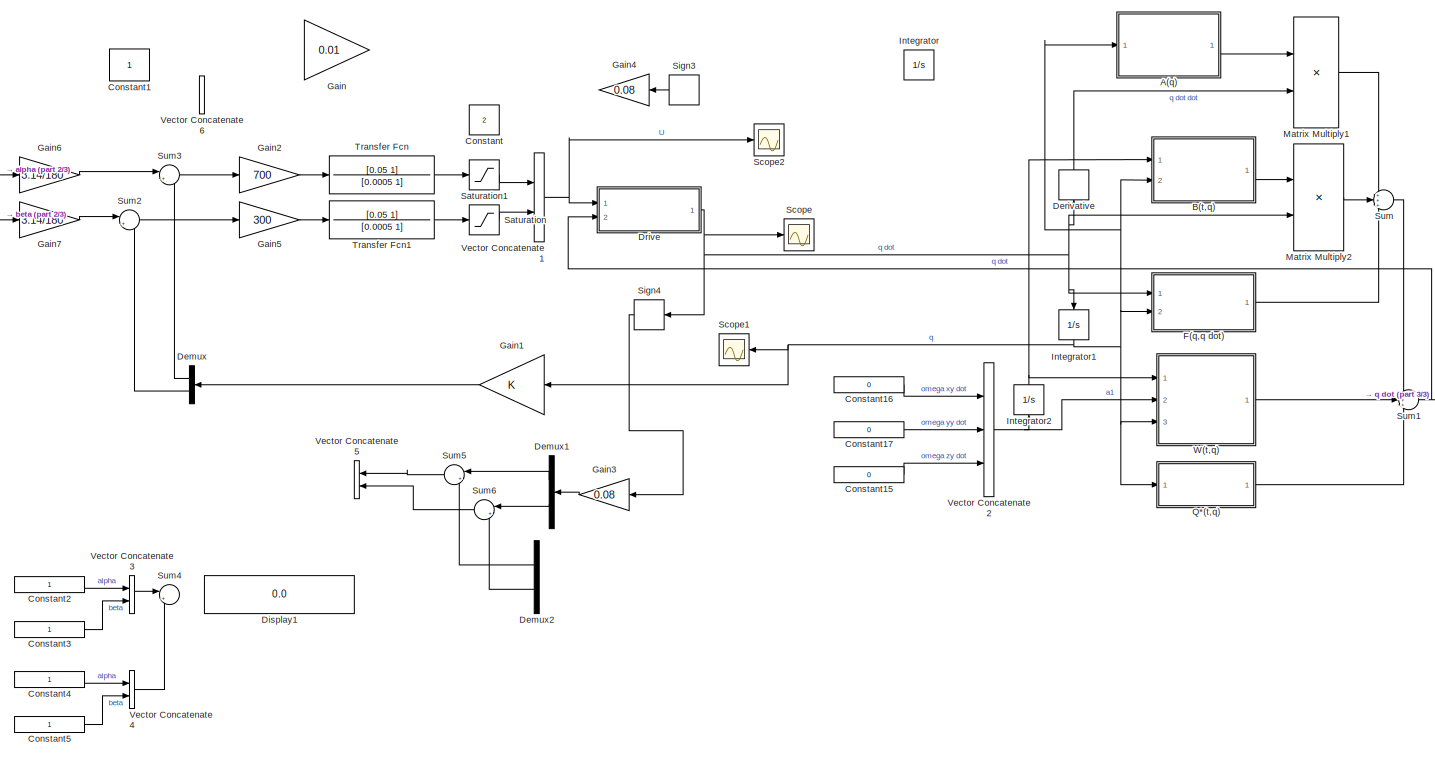
[diagram: root canvas - part 1/3, center side, full height]
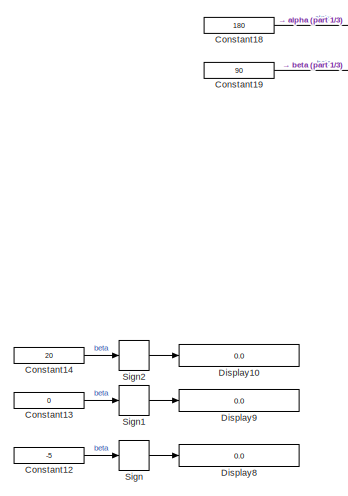
[diagram: root canvas - part 2/3, middle left region]
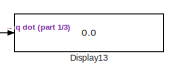
[diagram: root canvas - part 3/3, middle right region]
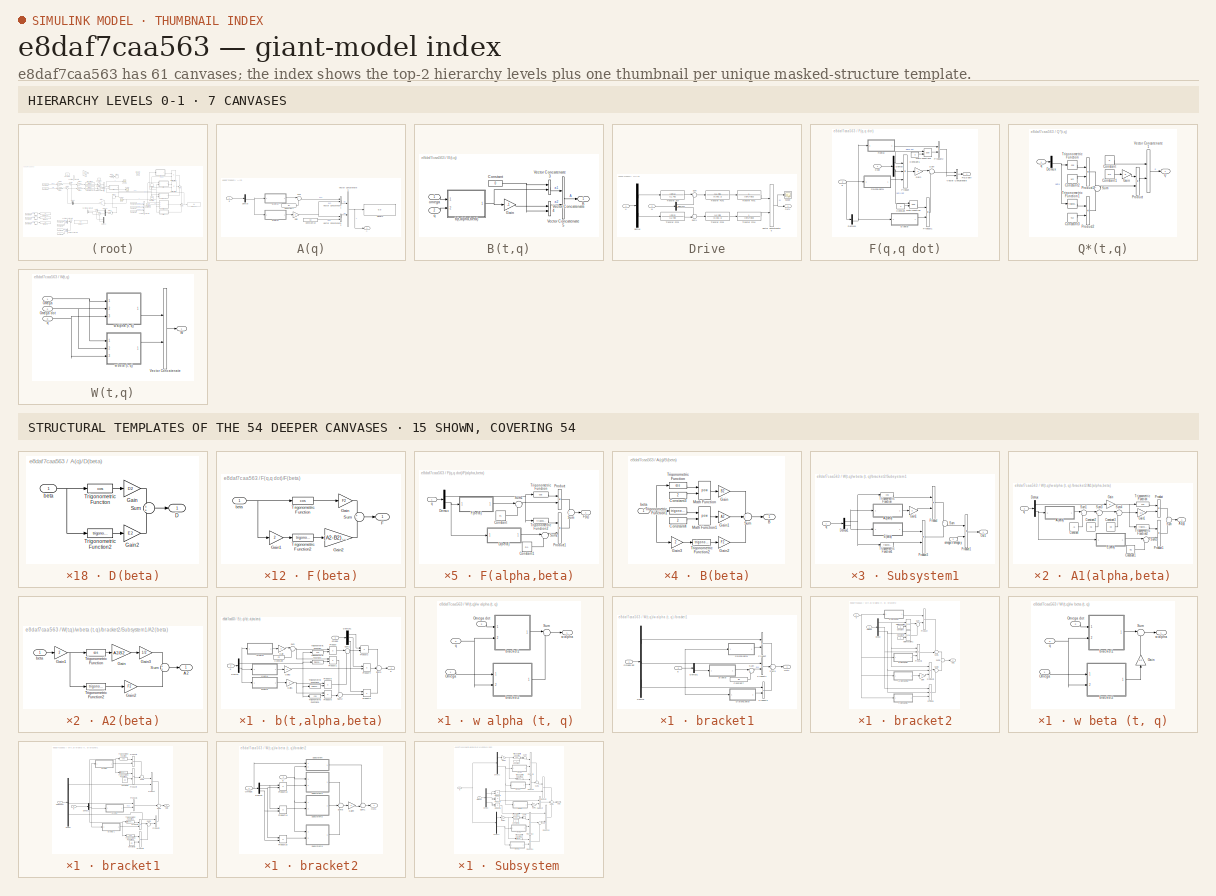
[diagram: thumbnail index - top-2 hierarchy levels (7 canvases) + 15 structural-template representatives of the remaining 54 canvases]
MODEL slx_e8daf7caa563
KIND model
CONFIG AbsTol = auto
CONFIG EnableMultiTasking = off
CONFIG FixedStep = auto
CONFIG MaxStep = auto
CONFIG MinStep = auto
CONFIG RelTol = 1e-3
CONFIG SampleTimeConstraint = Unconstrained
CONFIG Solver = VariableStepAuto
CONFIG SolverName = VariableStepAuto
CONFIG StartTime = 0.0
CONFIG StopTime = 1
WORKSPACE source: MAT-file member
WORKSPACE A1 = 0.212
BLOCK [SubSystem] A(q)
  Ports = [1, 1]
  RequestExecContextInheritance = off
BLOCK [Outport] A(q)/A
  IconDisplay = Port number
BLOCK [SubSystem] A(q)/B(beta)
  Ports = [1, 1]
  RequestExecContextInheritance = off
BLOCK [Outport] A(q)/B(beta)/B
  IconDisplay = Port number
BLOCK [Constant] A(q)/B(beta)/Constant3
  Value = 2
BLOCK [Constant] A(q)/B(beta)/Constant4
  Value = 2
BLOCK [Gain] A(q)/B(beta)/Gain
  Gain = B2
  OutDataTypeStr = Inherit: Inherit via internal rule
  ParamDataTypeStr = Inherit: Inherit via internal rule
  SaturateOnIntegerOverflow = off
BLOCK [Gain] A(q)/B(beta)/Gain1
  Gain = A2
  OutDataTypeStr = Inherit: Inherit via internal rule
  ParamDataTypeStr = Inherit: Inherit via internal rule
  SaturateOnIntegerOverflow = off
BLOCK [Gain] A(q)/B(beta)/Gain2
  Gain = F2
  OutDataTypeStr = Inherit: Inherit via internal rule
  ParamDataTypeStr = Inherit: Inherit via internal rule
  SaturateOnIntegerOverflow = off
BLOCK [Gain] A(q)/B(beta)/Gain3
  Gain = 2
  OutDataTypeStr = Inherit: Inherit via internal rule
  ParamDataTypeStr = Inherit: Inherit via internal rule
  SaturateOnIntegerOverflow = off
BLOCK [Math] A(q)/B(beta)/Math Function
  Operator = pow
  Ports = [2, 1]
BLOCK [Math] A(q)/B(beta)/Math Function1
  Operator = pow
  Ports = [2, 1]
BLOCK [Sum] A(q)/B(beta)/Sum
  IconShape = round
  InputSameDT = off
  Inputs = ++-
  OutDataTypeStr = Inherit: Inherit via internal rule
  Ports = [3, 1]
  SaturateOnIntegerOverflow = off
BLOCK [Trigonometry] A(q)/B(beta)/Trigonometric Function
  Operator = cos
  Ports = [1, 1]
BLOCK [Trigonometry] A(q)/B(beta)/Trigonometric Function1
  Ports = [1, 1]
BLOCK [Trigonometry] A(q)/B(beta)/Trigonometric Function2
  Ports = [1, 1]
BLOCK [Inport] A(q)/B(beta)/beta
  IconDisplay = Port number
BLOCK [Constant] A(q)/Constant10
  Value = C2
BLOCK [Constant] A(q)/Constant7
  Value = B1
BLOCK [SubSystem] A(q)/D(beta)
  Ports = [1, 1]
  RequestExecContextInheritance = off
BLOCK [Outport] A(q)/D(beta)/D
  IconDisplay = Port number
BLOCK [Gain] A(q)/D(beta)/Gain
  Gain = D2
  OutDataTypeStr = Inherit: Inherit via internal rule
  ParamDataTypeStr = Inherit: Inherit via internal rule
  SaturateOnIntegerOverflow = off
BLOCK [Gain] A(q)/D(beta)/Gain2
  Gain = E2
  OutDataTypeStr = Inherit: Inherit via internal rule
  ParamDataTypeStr = Inherit: Inherit via internal rule
  SaturateOnIntegerOverflow = off
BLOCK [Sum] A(q)/D(beta)/Sum
  IconShape = round
  InputSameDT = off
  OutDataTypeStr = Inherit: Inherit via internal rule
  Ports = [2, 1]
  SaturateOnIntegerOverflow = off
BLOCK [Trigonometry] A(q)/D(beta)/Trigonometric Function
  Operator = cos
  Ports = [1, 1]
BLOCK [Trigonometry] A(q)/D(beta)/Trigonometric Function2
  Ports = [1, 1]
BLOCK [Inport] A(q)/D(beta)/beta
  IconDisplay = Port number
BLOCK [Demux] A(q)/Demux
  DisplayOption = bar
  Outputs = 2
  Ports = [1, 2]
BLOCK [Display] A(q)/Display5
  Decimation = 1
  Ports = [1]
BLOCK [Gain] A(q)/Gain
  Gain = -1
  OutDataTypeStr = Inherit: Inherit via internal rule
  ParamDataTypeStr = Inherit: Inherit via internal rule
  SaturateOnIntegerOverflow = off
BLOCK [Sum] A(q)/Sum
  IconShape = round
  InputSameDT = off
  Inputs = |++
  OutDataTypeStr = Inherit: Inherit via internal rule
  Ports = [2, 1]
  SaturateOnIntegerOverflow = off
BLOCK [Concatenate] A(q)/Vector Concatenate1
  Ports = [2, 1]
BLOCK [Concatenate] A(q)/Vector Concatenate2
  Ports = [2, 1]
BLOCK [Concatenate] A(q)/Vector Concatenate6
  ConcatenateDimension = 2
  Mode = Multidimensional array
  Ports = [2, 1]
BLOCK [Inport] A(q)/q
  IconDisplay = Port number
BLOCK [SubSystem] B(t,q)
  Ports = [2, 1]
  RequestExecContextInheritance = off
BLOCK [Outport] B(t,q)/B
  IconDisplay = Port number
BLOCK [Constant] B(t,q)/Constant
  Value = 0
BLOCK [Gain] B(t,q)/Gain
  Gain = -1
  OutDataTypeStr = Inherit: Inherit via internal rule
  ParamDataTypeStr = Inherit: Inherit via internal rule
  SaturateOnIntegerOverflow = off
BLOCK [Concatenate] B(t,q)/Vector Concatenate3
  Ports = [2, 1]
BLOCK [Concatenate] B(t,q)/Vector Concatenate4
  Ports = [2, 1]
BLOCK [Concatenate] B(t,q)/Vector Concatenate5
  ConcatenateDimension = 2
  Mode = Multidimensional array
  Ports = [2, 1]
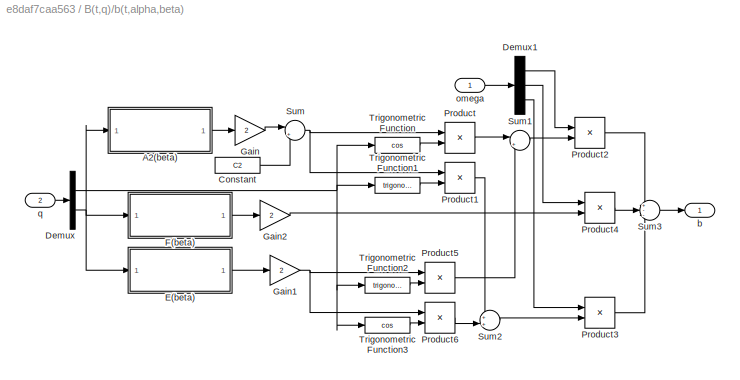
BLOCK [SubSystem] B(t,q)/b(t,alpha,beta)
  Ports = [2, 1]
  RequestExecContextInheritance = off
BLOCK [SubSystem] B(t,q)/b(t,alpha,beta)/A2(beta)
  Ports = [1, 1]
  RequestExecContextInheritance = off
BLOCK [Outport] B(t,q)/b(t,alpha,beta)/A2(beta)/A2
  IconDisplay = Port number
BLOCK [Gain] B(t,q)/b(t,alpha,beta)/A2(beta)/Gain
  Gain = (A2-B2)/2
  OutDataTypeStr = Inherit: Inherit via internal rule
  ParamDataTypeStr = Inherit: Inherit via internal rule
  SaturateOnIntegerOverflow = off
BLOCK [Gain] B(t,q)/b(t,alpha,beta)/A2(beta)/Gain1
  Gain = 2
  OutDataTypeStr = Inherit: Inherit via internal rule
  ParamDataTypeStr = Inherit: Inherit via internal rule
  SaturateOnIntegerOverflow = off
BLOCK [Gain] B(t,q)/b(t,alpha,beta)/A2(beta)/Gain2
  Gain = F2
  OutDataTypeStr = Inherit: Inherit via internal rule
  ParamDataTypeStr = Inherit: Inherit via internal rule
  SaturateOnIntegerOverflow = off
BLOCK [Sum] B(t,q)/b(t,alpha,beta)/A2(beta)/Sum
  IconShape = round
  InputSameDT = off
  OutDataTypeStr = Inherit: Inherit via internal rule
  Ports = [2, 1]
  SaturateOnIntegerOverflow = off
BLOCK [Trigonometry] B(t,q)/b(t,alpha,beta)/A2(beta)/Trigonometric Function
  Operator = cos
  Ports = [1, 1]
BLOCK [Trigonometry] B(t,q)/b(t,alpha,beta)/A2(beta)/Trigonometric Function2
  Ports = [1, 1]
BLOCK [Inport] B(t,q)/b(t,alpha,beta)/A2(beta)/beta
  IconDisplay = Port number
BLOCK [Constant] B(t,q)/b(t,alpha,beta)/Constant
  Value = C2
BLOCK [Demux] B(t,q)/b(t,alpha,beta)/Demux
  DisplayOption = bar
  Outputs = 2
  Ports = [1, 2]
BLOCK [Demux] B(t,q)/b(t,alpha,beta)/Demux1
  DisplayOption = bar
  Outputs = 3
  Ports = [1, 3]
BLOCK [SubSystem] B(t,q)/b(t,alpha,beta)/E(beta)
  Ports = [1, 1]
  RequestExecContextInheritance = off
BLOCK [Outport] B(t,q)/b(t,alpha,beta)/E(beta)/E
  IconDisplay = Port number
BLOCK [Gain] B(t,q)/b(t,alpha,beta)/E(beta)/Gain
  Gain = E2
  OutDataTypeStr = Inherit: Inherit via internal rule
  ParamDataTypeStr = Inherit: Inherit via internal rule
  SaturateOnIntegerOverflow = off
BLOCK [Gain] B(t,q)/b(t,alpha,beta)/E(beta)/Gain2
  Gain = D2
  OutDataTypeStr = Inherit: Inherit via internal rule
  ParamDataTypeStr = Inherit: Inherit via internal rule
  SaturateOnIntegerOverflow = off
BLOCK [Sum] B(t,q)/b(t,alpha,beta)/E(beta)/Sum
  IconShape = round
  InputSameDT = off
  Inputs = +-
  OutDataTypeStr = Inherit: Inherit via internal rule
  Ports = [2, 1]
  SaturateOnIntegerOverflow = off
BLOCK [Trigonometry] B(t,q)/b(t,alpha,beta)/E(beta)/Trigonometric Function
  Operator = cos
  Ports = [1, 1]
BLOCK [Trigonometry] B(t,q)/b(t,alpha,beta)/E(beta)/Trigonometric Function2
  Ports = [1, 1]
BLOCK [Inport] B(t,q)/b(t,alpha,beta)/E(beta)/beta
  IconDisplay = Port number
BLOCK [SubSystem] B(t,q)/b(t,alpha,beta)/F(beta)
  Ports = [1, 1]
  RequestExecContextInheritance = off
BLOCK [Outport] B(t,q)/b(t,alpha,beta)/F(beta)/F
  IconDisplay = Port number
BLOCK [Gain] B(t,q)/b(t,alpha,beta)/F(beta)/Gain
  Gain = F2
  OutDataTypeStr = Inherit: Inherit via internal rule
  ParamDataTypeStr = Inherit: Inherit via internal rule
  SaturateOnIntegerOverflow = off
BLOCK [Gain] B(t,q)/b(t,alpha,beta)/F(beta)/Gain1
  Gain = 2
  OutDataTypeStr = Inherit: Inherit via internal rule
  ParamDataTypeStr = Inherit: Inherit via internal rule
  SaturateOnIntegerOverflow = off
BLOCK [Gain] B(t,q)/b(t,alpha,beta)/F(beta)/Gain2
  Gain = (A2-B2)/2
  OutDataTypeStr = Inherit: Inherit via internal rule
  ParamDataTypeStr = Inherit: Inherit via internal rule
  SaturateOnIntegerOverflow = off
BLOCK [Sum] B(t,q)/b(t,alpha,beta)/F(beta)/Sum
  IconShape = round
  InputSameDT = off
  Inputs = +-
  OutDataTypeStr = Inherit: Inherit via internal rule
  Ports = [2, 1]
  SaturateOnIntegerOverflow = off
BLOCK [Trigonometry] B(t,q)/b(t,alpha,beta)/F(beta)/Trigonometric Function
  Operator = cos
  Ports = [1, 1]
BLOCK [Trigonometry] B(t,q)/b(t,alpha,beta)/F(beta)/Trigonometric Function2
  Ports = [1, 1]
BLOCK [Inport] B(t,q)/b(t,alpha,beta)/F(beta)/beta
  IconDisplay = Port number
BLOCK [Gain] B(t,q)/b(t,alpha,beta)/Gain
  Gain = 2
  OutDataTypeStr = Inherit: Inherit via internal rule
  ParamDataTypeStr = Inherit: Inherit via internal rule
  SaturateOnIntegerOverflow = off
BLOCK [Gain] B(t,q)/b(t,alpha,beta)/Gain1
  Gain = 2
  OutDataTypeStr = Inherit: Inherit via internal rule
  ParamDataTypeStr = Inherit: Inherit via internal rule
  SaturateOnIntegerOverflow = off
BLOCK [Gain] B(t,q)/b(t,alpha,beta)/Gain2
  Gain = 2
  OutDataTypeStr = Inherit: Inherit via internal rule
  ParamDataTypeStr = Inherit: Inherit via internal rule
  SaturateOnIntegerOverflow = off
BLOCK [Product] B(t,q)/b(t,alpha,beta)/Product
  InputSameDT = off
  OutDataTypeStr = Inherit: Inherit via internal rule
  Ports = [2, 1]
  RndMeth = Floor
  SaturateOnIntegerOverflow = off
BLOCK [Product] B(t,q)/b(t,alpha,beta)/Product1
  InputSameDT = off
  OutDataTypeStr = Inherit: Inherit via internal rule
  Ports = [2, 1]
  RndMeth = Floor
  SaturateOnIntegerOverflow = off
BLOCK [Product] B(t,q)/b(t,alpha,beta)/Product2
  InputSameDT = off
  OutDataTypeStr = Inherit: Inherit via internal rule
  Ports = [2, 1]
  RndMeth = Floor
  SaturateOnIntegerOverflow = off
BLOCK [Product] B(t,q)/b(t,alpha,beta)/Product3
  InputSameDT = off
  OutDataTypeStr = Inherit: Inherit via internal rule
  Ports = [2, 1]
  RndMeth = Floor
  SaturateOnIntegerOverflow = off
BLOCK [Product] B(t,q)/b(t,alpha,beta)/Product4
  InputSameDT = off
  OutDataTypeStr = Inherit: Inherit via internal rule
  Ports = [2, 1]
  RndMeth = Floor
  SaturateOnIntegerOverflow = off
BLOCK [Product] B(t,q)/b(t,alpha,beta)/Product5
  InputSameDT = off
  OutDataTypeStr = Inherit: Inherit via internal rule
  Ports = [2, 1]
  RndMeth = Floor
  SaturateOnIntegerOverflow = off
BLOCK [Product] B(t,q)/b(t,alpha,beta)/Product6
  InputSameDT = off
  OutDataTypeStr = Inherit: Inherit via internal rule
  Ports = [2, 1]
  RndMeth = Floor
  SaturateOnIntegerOverflow = off
BLOCK [Sum] B(t,q)/b(t,alpha,beta)/Sum
  IconShape = round
  InputSameDT = off
  Inputs = |+-
  OutDataTypeStr = Inherit: Inherit via internal rule
  Ports = [2, 1]
  SaturateOnIntegerOverflow = off
BLOCK [Sum] B(t,q)/b(t,alpha,beta)/Sum1
  IconShape = round
  InputSameDT = off
  Inputs = |+-
  OutDataTypeStr = Inherit: Inherit via internal rule
  Ports = [2, 1]
  SaturateOnIntegerOverflow = off
BLOCK [Sum] B(t,q)/b(t,alpha,beta)/Sum2
  IconShape = round
  InputSameDT = off
  Inputs = ++|
  OutDataTypeStr = Inherit: Inherit via internal rule
  Ports = [2, 1]
  SaturateOnIntegerOverflow = off
BLOCK [Sum] B(t,q)/b(t,alpha,beta)/Sum3
  IconShape = round
  InputSameDT = off
  Inputs = +--
  OutDataTypeStr = Inherit: Inherit via internal rule
  Ports = [3, 1]
  SaturateOnIntegerOverflow = off
BLOCK [Trigonometry] B(t,q)/b(t,alpha,beta)/Trigonometric Function
  Operator = cos
  Ports = [1, 1]
BLOCK [Trigonometry] B(t,q)/b(t,alpha,beta)/Trigonometric Function1
  Ports = [1, 1]
BLOCK [Trigonometry] B(t,q)/b(t,alpha,beta)/Trigonometric Function2
  Ports = [1, 1]
BLOCK [Trigonometry] B(t,q)/b(t,alpha,beta)/Trigonometric Function3
  Operator = cos
  Ports = [1, 1]
BLOCK [Outport] B(t,q)/b(t,alpha,beta)/b
  IconDisplay = Port number
BLOCK [Inport] B(t,q)/b(t,alpha,beta)/omega
  IconDisplay = Port number
BLOCK [Inport] B(t,q)/b(t,alpha,beta)/q
  IconDisplay = Port number
  Port = 2
BLOCK [Inport] B(t,q)/omega
  IconDisplay = Port number
BLOCK [Inport] B(t,q)/q
  IconDisplay = Port number
  Port = 2
BLOCK [Constant] Constant
  Value = 2
BLOCK [Constant] Constant1
BLOCK [Constant] Constant12
  Value = -5
BLOCK [Constant] Constant13
  Value = 0
BLOCK [Constant] Constant14
  Value = 20
BLOCK [Constant] Constant15
  Value = 0
BLOCK [Constant] Constant16
  Value = 0
BLOCK [Constant] Constant17
  Value = 0
BLOCK [Constant] Constant18
  Value = 180
BLOCK [Constant] Constant19
  Value = 90
BLOCK [Constant] Constant2
BLOCK [Constant] Constant3
BLOCK [Constant] Constant4
BLOCK [Constant] Constant5
BLOCK [Demux] Demux
  DisplayOption = bar
  Outputs = 2
  Ports = [1, 2]
BLOCK [Demux] Demux1
  DisplayOption = bar
  Outputs = 2
  Ports = [1, 2]
BLOCK [Demux] Demux2
  DisplayOption = bar
  Outputs = 2
  Ports = [1, 2]
BLOCK [Derivative] Derivative
BLOCK [Display] Display1
  Decimation = 1
  Ports = [1]
BLOCK [Display] Display10
  Decimation = 1
  Ports = [1]
BLOCK [Display] Display13
  Decimation = 1
  Ports = [1]
BLOCK [Display] Display8
  Decimation = 1
  Ports = [1]
BLOCK [Display] Display9
  Decimation = 1
  Ports = [1]
BLOCK [SubSystem] Drive
  Ports = [2, 1]
  RequestExecContextInheritance = off
BLOCK [Demux] Drive/Demux
  DisplayOption = bar
  Outputs = 2
  Ports = [1, 2]
BLOCK [Demux] Drive/Demux1
  DisplayOption = bar
  Outputs = 2
  Ports = [1, 2]
BLOCK [Inport] Drive/M
  IconDisplay = Port number
  Port = 2
BLOCK [Outport] Drive/Out1
  IconDisplay = Port number
BLOCK [Scope] Drive/Scope
  Floating = off
  NumInputPorts = 1
  Ports = [1]
  ScopeSpecificationString = Simulink.scopes.TimeScopeBlockCfg('CurrentConfiguration', extmgr.ConfigurationSet(extmgr.Configuration('Core','General UI',true),extmgr.Configuration('Core','Source UI',true),extmgr.Configuration('Sources','WiredSimulink',true,'DataLoggingVariableName','ScopeData1'),extmgr.Configuration('Visuals','Time Domain',true,'SerializedDisplays',{struct('MinYLimReal','-1.12487','MaxYLimReal','0.2361','YLabe...<+1368ch>
BLOCK [Sum] Drive/Sum
  IconShape = round
  InputSameDT = off
  Inputs = |+-
  OutDataTypeStr = Inherit: Inherit via internal rule
  Ports = [2, 1]
  SaturateOnIntegerOverflow = off
BLOCK [Sum] Drive/Sum1
  IconShape = round
  InputSameDT = off
  Inputs = -+|
  OutDataTypeStr = Inherit: Inherit via internal rule
  Ports = [2, 1]
  SaturateOnIntegerOverflow = off
BLOCK [TransferFcn] Drive/Transfer Fcn
  Denominator = [L1 R1]
  Numerator = [Cm1]
BLOCK [TransferFcn] Drive/Transfer Fcn1
  Denominator = [Cm1*Ce1]
  Numerator = 1
BLOCK [TransferFcn] Drive/Transfer Fcn2
  Denominator = [0.001 1]
  Numerator = [L1 R1]
BLOCK [TransferFcn] Drive/Transfer Fcn3
  Denominator = [L2 R2]
  Numerator = [Cm2]
BLOCK [TransferFcn] Drive/Transfer Fcn4
  Denominator = [Cm2*Ce2]
  Numerator = 1
BLOCK [TransferFcn] Drive/Transfer Fcn5
  Denominator = [0.001 1]
  Numerator = [L2 R2]
BLOCK [Inport] Drive/U
  IconDisplay = Port number
BLOCK [Concatenate] Drive/Vector Concatenate6
  Ports = [2, 1]
BLOCK [SubSystem] F(q,q dot)
  Ports = [2, 1]
  RequestExecContextInheritance = off
BLOCK [Constant] F(q,q dot)/Constant
  Value = 2
BLOCK [Constant] F(q,q dot)/Constant1
  Value = 2
BLOCK [Demux] F(q,q dot)/Demux
  DisplayOption = bar
  Outputs = 2
  Ports = [1, 2]
BLOCK [Demux] F(q,q dot)/Demux1
  DisplayOption = bar
  Outputs = 2
  Ports = [1, 2]
BLOCK [SubSystem] F(q,q dot)/E(beta)
  Ports = [1, 1]
  RequestExecContextInheritance = off
BLOCK [Outport] F(q,q dot)/E(beta)/E
  IconDisplay = Port number
BLOCK [Gain] F(q,q dot)/E(beta)/Gain
  Gain = E2
  OutDataTypeStr = Inherit: Inherit via internal rule
  ParamDataTypeStr = Inherit: Inherit via internal rule
  SaturateOnIntegerOverflow = off
BLOCK [Gain] F(q,q dot)/E(beta)/Gain2
  Gain = D2
  OutDataTypeStr = Inherit: Inherit via internal rule
  ParamDataTypeStr = Inherit: Inherit via internal rule
  SaturateOnIntegerOverflow = off
BLOCK [Sum] F(q,q dot)/E(beta)/Sum
  IconShape = round
  InputSameDT = off
  Inputs = +-
  OutDataTypeStr = Inherit: Inherit via internal rule
  Ports = [2, 1]
  SaturateOnIntegerOverflow = off
BLOCK [Trigonometry] F(q,q dot)/E(beta)/Trigonometric Function
  Operator = cos
  Ports = [1, 1]
BLOCK [Trigonometry] F(q,q dot)/E(beta)/Trigonometric Function2
  Ports = [1, 1]
BLOCK [Inport] F(q,q dot)/E(beta)/beta
  IconDisplay = Port number
BLOCK [SubSystem] F(q,q dot)/F(alpha,beta)
  Ports = [1, 1]
  RequestExecContextInheritance = off
BLOCK [Constant] F(q,q dot)/F(alpha,beta)/Constant
  Value = F1
BLOCK [Constant] F(q,q dot)/F(alpha,beta)/Constant1
  Value = D1
BLOCK [SubSystem] F(q,q dot)/F(alpha,beta)/D(beta)
  Ports = [1, 1]
  RequestExecContextInheritance = off
BLOCK [Outport] F(q,q dot)/F(alpha,beta)/D(beta)/D
  IconDisplay = Port number
BLOCK [Gain] F(q,q dot)/F(alpha,beta)/D(beta)/Gain
  Gain = D2
  OutDataTypeStr = Inherit: Inherit via internal rule
  ParamDataTypeStr = Inherit: Inherit via internal rule
  SaturateOnIntegerOverflow = off
BLOCK [Gain] F(q,q dot)/F(alpha,beta)/D(beta)/Gain2
  Gain = E2
  OutDataTypeStr = Inherit: Inherit via internal rule
  ParamDataTypeStr = Inherit: Inherit via internal rule
  SaturateOnIntegerOverflow = off
BLOCK [Sum] F(q,q dot)/F(alpha,beta)/D(beta)/Sum
  IconShape = round
  InputSameDT = off
  OutDataTypeStr = Inherit: Inherit via internal rule
  Ports = [2, 1]
  SaturateOnIntegerOverflow = off
BLOCK [Trigonometry] F(q,q dot)/F(alpha,beta)/D(beta)/Trigonometric Function
  Operator = cos
  Ports = [1, 1]
BLOCK [Trigonometry] F(q,q dot)/F(alpha,beta)/D(beta)/Trigonometric Function2
  Ports = [1, 1]
BLOCK [Inport] F(q,q dot)/F(alpha,beta)/D(beta)/beta
  IconDisplay = Port number
BLOCK [Demux] F(q,q dot)/F(alpha,beta)/Demux
  DisplayOption = bar
  Outputs = 2
  Ports = [1, 2]
BLOCK [SubSystem] F(q,q dot)/F(alpha,beta)/F(beta)
  Ports = [1, 1]
  RequestExecContextInheritance = off
BLOCK [Outport] F(q,q dot)/F(alpha,beta)/F(beta)/F
  IconDisplay = Port number
BLOCK [Gain] F(q,q dot)/F(alpha,beta)/F(beta)/Gain
  Gain = F2
  OutDataTypeStr = Inherit: Inherit via internal rule
  ParamDataTypeStr = Inherit: Inherit via internal rule
  SaturateOnIntegerOverflow = off
BLOCK [Gain] F(q,q dot)/F(alpha,beta)/F(beta)/Gain1
  Gain = 2
  OutDataTypeStr = Inherit: Inherit via internal rule
  ParamDataTypeStr = Inherit: Inherit via internal rule
  SaturateOnIntegerOverflow = off
BLOCK [Gain] F(q,q dot)/F(alpha,beta)/F(beta)/Gain2
  Gain = (A2-B2)/2
  OutDataTypeStr = Inherit: Inherit via internal rule
  ParamDataTypeStr = Inherit: Inherit via internal rule
  SaturateOnIntegerOverflow = off
BLOCK [Sum] F(q,q dot)/F(alpha,beta)/F(beta)/Sum
  IconShape = round
  InputSameDT = off
  Inputs = +-
  OutDataTypeStr = Inherit: Inherit via internal rule
  Ports = [2, 1]
  SaturateOnIntegerOverflow = off
BLOCK [Trigonometry] F(q,q dot)/F(alpha,beta)/F(beta)/Trigonometric Function
  Operator = cos
  Ports = [1, 1]
BLOCK [Trigonometry] F(q,q dot)/F(alpha,beta)/F(beta)/Trigonometric Function2
  Ports = [1, 1]
BLOCK [Inport] F(q,q dot)/F(alpha,beta)/F(beta)/beta
  IconDisplay = Port number
BLOCK [Outport] F(q,q dot)/F(alpha,beta)/F(q)
  IconDisplay = Port number
BLOCK [Product] F(q,q dot)/F(alpha,beta)/Product
  InputSameDT = off
  OutDataTypeStr = Inherit: Inherit via internal rule
  Ports = [2, 1]
  RndMeth = Floor
  SaturateOnIntegerOverflow = off
BLOCK [Product] F(q,q dot)/F(alpha,beta)/Product1
  InputSameDT = off
  OutDataTypeStr = Inherit: Inherit via internal rule
  Ports = [2, 1]
  RndMeth = Floor
  SaturateOnIntegerOverflow = off
BLOCK [Sum] F(q,q dot)/F(alpha,beta)/Sum
  IconShape = round
  InputSameDT = off
  OutDataTypeStr = Inherit: Inherit via internal rule
  Ports = [2, 1]
  SaturateOnIntegerOverflow = off
BLOCK [Sum] F(q,q dot)/F(alpha,beta)/Sum1
  IconShape = round
  InputSameDT = off
  Inputs = |++
  OutDataTypeStr = Inherit: Inherit via internal rule
  Ports = [2, 1]
  SaturateOnIntegerOverflow = off
BLOCK [Sum] F(q,q dot)/F(alpha,beta)/Sum2
  IconShape = round
  InputSameDT = off
  Inputs = |++
  OutDataTypeStr = Inherit: Inherit via internal rule
  Ports = [2, 1]
  SaturateOnIntegerOverflow = off
BLOCK [Trigonometry] F(q,q dot)/F(alpha,beta)/Trigonometric Function
  Operator = cos
  Ports = [1, 1]
BLOCK [Trigonometry] F(q,q dot)/F(alpha,beta)/Trigonometric Function2
  Ports = [1, 1]
BLOCK [Inport] F(q,q dot)/F(alpha,beta)/q
  IconDisplay = Port number
BLOCK [SubSystem] F(q,q dot)/F(beta)
  Ports = [1, 1]
  RequestExecContextInheritance = off
BLOCK [Outport] F(q,q dot)/F(beta)/F
  IconDisplay = Port number
BLOCK [Gain] F(q,q dot)/F(beta)/Gain
  Gain = F2
  OutDataTypeStr = Inherit: Inherit via internal rule
  ParamDataTypeStr = Inherit: Inherit via internal rule
  SaturateOnIntegerOverflow = off
BLOCK [Gain] F(q,q dot)/F(beta)/Gain1
  Gain = 2
  OutDataTypeStr = Inherit: Inherit via internal rule
  ParamDataTypeStr = Inherit: Inherit via internal rule
  SaturateOnIntegerOverflow = off
BLOCK [Gain] F(q,q dot)/F(beta)/Gain2
  Gain = (A2-B2)/2
  OutDataTypeStr = Inherit: Inherit via internal rule
  ParamDataTypeStr = Inherit: Inherit via internal rule
  SaturateOnIntegerOverflow = off
BLOCK [Sum] F(q,q dot)/F(beta)/Sum
  IconShape = round
  InputSameDT = off
  Inputs = +-
  OutDataTypeStr = Inherit: Inherit via internal rule
  Ports = [2, 1]
  SaturateOnIntegerOverflow = off
BLOCK [Trigonometry] F(q,q dot)/F(beta)/Trigonometric Function
  Operator = cos
  Ports = [1, 1]
BLOCK [Trigonometry] F(q,q dot)/F(beta)/Trigonometric Function2
  Ports = [1, 1]
BLOCK [Inport] F(q,q dot)/F(beta)/beta
  IconDisplay = Port number
BLOCK [Outport] F(q,q dot)/F(q,q dot)
  IconDisplay = Port number
BLOCK [Gain] F(q,q dot)/Gain
  Gain = 2
  OutDataTypeStr = Inherit: Inherit via internal rule
  ParamDataTypeStr = Inherit: Inherit via internal rule
  SaturateOnIntegerOverflow = off
BLOCK [Math] F(q,q dot)/Math Function
  Operator = pow
  Ports = [2, 1]
BLOCK [Math] F(q,q dot)/Math Function1
  Operator = pow
  Ports = [2, 1]
BLOCK [Product] F(q,q dot)/Product
  InputSameDT = off
  Inputs = 3
  OutDataTypeStr = Inherit: Inherit via internal rule
  Ports = [3, 1]
  RndMeth = Floor
  SaturateOnIntegerOverflow = off
BLOCK [Product] F(q,q dot)/Product1
  InputSameDT = off
  OutDataTypeStr = Inherit: Inherit via internal rule
  Ports = [2, 1]
  RndMeth = Floor
  SaturateOnIntegerOverflow = off
BLOCK [Product] F(q,q dot)/Product2
  InputSameDT = off
  OutDataTypeStr = Inherit: Inherit via internal rule
  Ports = [2, 1]
  RndMeth = Floor
  SaturateOnIntegerOverflow = off
BLOCK [Sum] F(q,q dot)/Sum
  IconShape = round
  InputSameDT = off
  Inputs = |--
  OutDataTypeStr = Inherit: Inherit via internal rule
  Ports = [2, 1]
  SaturateOnIntegerOverflow = off
BLOCK [Concatenate] F(q,q dot)/Vector Concatenate
  Ports = [2, 1]
BLOCK [Inport] F(q,q dot)/q
  IconDisplay = Port number
  Port = 2
BLOCK [Inport] F(q,q dot)/q dot
  IconDisplay = Port number
BLOCK [Gain] Gain
  Gain = 0.01
  OutDataTypeStr = Inherit: Inherit via internal rule
  ParamDataTypeStr = Inherit: Inherit via internal rule
  SaturateOnIntegerOverflow = off
BLOCK [Gain] Gain1
  OutDataTypeStr = Inherit: Inherit via internal rule
  ParamDataTypeStr = Inherit: Inherit via internal rule
  SaturateOnIntegerOverflow = off
BLOCK [Gain] Gain2
  Gain = 700
  OutDataTypeStr = Inherit: Inherit via internal rule
  ParamDataTypeStr = Inherit: Inherit via internal rule
  SaturateOnIntegerOverflow = off
BLOCK [Gain] Gain3
  Gain = 0.08
  OutDataTypeStr = Inherit: Inherit via internal rule
  ParamDataTypeStr = Inherit: Inherit via internal rule
  SaturateOnIntegerOverflow = off
BLOCK [Gain] Gain4
  Gain = 0.08
  OutDataTypeStr = Inherit: Inherit via internal rule
  ParamDataTypeStr = Inherit: Inherit via internal rule
  SaturateOnIntegerOverflow = off
BLOCK [Gain] Gain5
  Gain = 300
  OutDataTypeStr = Inherit: Inherit via internal rule
  ParamDataTypeStr = Inherit: Inherit via internal rule
  SaturateOnIntegerOverflow = off
BLOCK [Gain] Gain6
  Gain = 3.14/180
  OutDataTypeStr = Inherit: Inherit via internal rule
  ParamDataTypeStr = Inherit: Inherit via internal rule
  SaturateOnIntegerOverflow = off
BLOCK [Gain] Gain7
  Gain = 3.14/180
  OutDataTypeStr = Inherit: Inherit via internal rule
  ParamDataTypeStr = Inherit: Inherit via internal rule
  SaturateOnIntegerOverflow = off
BLOCK [Integrator] Integrator
  Ports = [1, 1]
BLOCK [Integrator] Integrator1
  Ports = [1, 1]
BLOCK [Integrator] Integrator2
  Ports = [1, 1]
BLOCK [Product] Matrix Multiply1
  InputSameDT = off
  Multiplication = Matrix(*)
  OutDataTypeStr = Inherit: Inherit via internal rule
  Ports = [2, 1]
  RndMeth = Floor
  SaturateOnIntegerOverflow = off
BLOCK [Product] Matrix Multiply2
  InputSameDT = off
  Multiplication = Matrix(*)
  OutDataTypeStr = Inherit: Inherit via internal rule
  Ports = [2, 1]
  RndMeth = Floor
  SaturateOnIntegerOverflow = off
BLOCK [SubSystem] Q*(t,q)
  Ports = [1, 1]
  RequestExecContextInheritance = off
BLOCK [Constant] Q*(t,q)/Constant
  Value = 0
BLOCK [Constant] Q*(t,q)/Constant1
  Value = m2
BLOCK [Constant] Q*(t,q)/Constant2
  Value = Xc2
BLOCK [Constant] Q*(t,q)/Constant3
  Value = Yc2
BLOCK [Demux] Q*(t,q)/Demux
  DisplayOption = bar
  Outputs = 2
  Ports = [1, 2]
BLOCK [Gain] Q*(t,q)/Gain
  Gain = g
  OutDataTypeStr = Inherit: Inherit via internal rule
  ParamDataTypeStr = Inherit: Inherit via internal rule
  SaturateOnIntegerOverflow = off
BLOCK [Product] Q*(t,q)/Product
  InputSameDT = off
  OutDataTypeStr = Inherit: Inherit via internal rule
  Ports = [2, 1]
  RndMeth = Floor
  SaturateOnIntegerOverflow = off
BLOCK [Product] Q*(t,q)/Product1
  InputSameDT = off
  OutDataTypeStr = Inherit: Inherit via internal rule
  Ports = [2, 1]
  RndMeth = Floor
  SaturateOnIntegerOverflow = off
BLOCK [Product] Q*(t,q)/Product2
  InputSameDT = off
  OutDataTypeStr = Inherit: Inherit via internal rule
  Ports = [2, 1]
  RndMeth = Floor
  SaturateOnIntegerOverflow = off
BLOCK [Outport] Q*(t,q)/Q
  IconDisplay = Port number
BLOCK [Sum] Q*(t,q)/Sum
  IconShape = round
  InputSameDT = off
  Inputs = +-
  OutDataTypeStr = Inherit: Inherit via internal rule
  Ports = [2, 1]
  SaturateOnIntegerOverflow = off
BLOCK [Trigonometry] Q*(t,q)/Trigonometric Function
  Operator = cos
  Ports = [1, 1]
BLOCK [Trigonometry] Q*(t,q)/Trigonometric Function1
  Ports = [1, 1]
BLOCK [Concatenate] Q*(t,q)/Vector Concatenate1
  Ports = [2, 1]
BLOCK [Inport] Q*(t,q)/q
  IconDisplay = Port number
BLOCK [Saturate] Saturation
  InputPortMap = u0
  LowerLimit = -27
  Ports = [1, 1]
  UpperLimit = 27
  ZeroCross = off
BLOCK [Saturate] Saturation1
  InputPortMap = u0
  LowerLimit = -27
  Ports = [1, 1]
  UpperLimit = 27
  ZeroCross = off
BLOCK [Scope] Scope
  Floating = off
  NumInputPorts = 1
  Ports = [1]
  ScopeSpecificationString = Simulink.scopes.TimeScopeBlockCfg('CurrentConfiguration', extmgr.ConfigurationSet(extmgr.Configuration('Core','General UI',true),extmgr.Configuration('Core','Source UI',true),extmgr.Configuration('Sources','WiredSimulink',true),extmgr.Configuration('Visuals','Time Domain',true,'SerializedDisplays',{struct('MinYLimReal','-11.99659','MaxYLimReal','27.55227','YLabelReal','','MinYLimMag','0.00000','Ma...<+1373ch>
BLOCK [Scope] Scope1
  Floating = off
  NumInputPorts = 1
  Ports = [1]
  ScopeSpecificationString = Simulink.scopes.TimeScopeBlockCfg('CurrentConfiguration', extmgr.ConfigurationSet(extmgr.Configuration('Core','General UI',true),extmgr.Configuration('Core','Source UI',true),extmgr.Configuration('Sources','WiredSimulink',true,'DataLoggingVariableName','ScopeData2'),extmgr.Configuration('Visuals','Time Domain',true,'SerializedDisplays',{struct('MinYLimReal','-0.48823','MaxYLimReal','4.39405','YLab...<+1470ch>
BLOCK [Scope] Scope2
  Floating = off
  NumInputPorts = 1
  Ports = [1]
  ScopeSpecificationString = Simulink.scopes.TimeScopeBlockCfg('CurrentConfiguration', extmgr.ConfigurationSet(extmgr.Configuration('Core','General UI',true),extmgr.Configuration('Core','Source UI',true),extmgr.Configuration('Sources','WiredSimulink',true,'DataLoggingVariableName','ScopeData1'),extmgr.Configuration('Visuals','Time Domain',true,'SerializedDisplays',{struct('MinYLimReal','-32.91159','MaxYLimReal','27.21342','YL...<+1476ch>
BLOCK [Signum] Sign
  ZeroCross = off
BLOCK [Signum] Sign1
  ZeroCross = off
BLOCK [Signum] Sign2
  ZeroCross = off
BLOCK [Signum] Sign3
  ZeroCross = off
BLOCK [Signum] Sign4
  ZeroCross = off
BLOCK [Sum] Sum
  IconShape = round
  InputSameDT = off
  Inputs = +++
  OutDataTypeStr = Inherit: Inherit via internal rule
  Ports = [3, 1]
  SaturateOnIntegerOverflow = off
BLOCK [Sum] Sum1
  IconShape = round
  InputSameDT = off
  Inputs = +++
  OutDataTypeStr = Inherit: Inherit via internal rule
  Ports = [3, 1]
  SaturateOnIntegerOverflow = off
BLOCK [Sum] Sum2
  IconShape = round
  InputSameDT = off
  Inputs = |+-
  OutDataTypeStr = Inherit: Inherit via internal rule
  Ports = [2, 1]
  SaturateOnIntegerOverflow = off
BLOCK [Sum] Sum3
  IconShape = round
  InputSameDT = off
  Inputs = |+-
  OutDataTypeStr = Inherit: Inherit via internal rule
  Ports = [2, 1]
  SaturateOnIntegerOverflow = off
BLOCK [Sum] Sum4
  IconShape = round
  InputSameDT = off
  Inputs = |+-
  OutDataTypeStr = Inherit: Inherit via internal rule
  Ports = [2, 1]
  SaturateOnIntegerOverflow = off
BLOCK [Sum] Sum5
  IconShape = round
  InputSameDT = off
  Inputs = |++
  OutDataTypeStr = Inherit: Inherit via internal rule
  Ports = [2, 1]
  SaturateOnIntegerOverflow = off
BLOCK [Sum] Sum6
  IconShape = round
  InputSameDT = off
  Inputs = |++
  OutDataTypeStr = Inherit: Inherit via internal rule
  Ports = [2, 1]
  SaturateOnIntegerOverflow = off
BLOCK [TransferFcn] Transfer Fcn
  Denominator = [0.0005 1]
  Numerator = [0.05 1]
BLOCK [TransferFcn] Transfer Fcn1
  Denominator = [0.0005 1]
  Numerator = [0.05 1]
BLOCK [Concatenate] Vector Concatenate1
  Ports = [2, 1]
BLOCK [Concatenate] Vector Concatenate2
  NumInputs = 3
  Ports = [3, 1]
BLOCK [Concatenate] Vector Concatenate3
  Ports = [2, 1]
BLOCK [Concatenate] Vector Concatenate4
  Ports = [2, 1]
BLOCK [Concatenate] Vector Concatenate5
  Ports = [2, 1]
BLOCK [Concatenate] Vector Concatenate6
  Ports = [2, 1]
BLOCK [SubSystem] W(t,q)
  Ports = [3, 1]
  RequestExecContextInheritance = off
BLOCK [Inport] W(t,q)/Omega
  IconDisplay = Port number
BLOCK [Inport] W(t,q)/Omega dot
  IconDisplay = Port number
  Port = 2
BLOCK [Concatenate] W(t,q)/Vector Concatenate
  Ports = [2, 1]
BLOCK [Outport] W(t,q)/W
  IconDisplay = Port number
BLOCK [Inport] W(t,q)/q
  IconDisplay = Port number
  Port = 3
BLOCK [SubSystem] W(t,q)/w alpha (t, q) 
  Ports = [3, 1]
  RequestExecContextInheritance = off
BLOCK [Inport] W(t,q)/w alpha (t, q) /Omega
  IconDisplay = Port number
BLOCK [Inport] W(t,q)/w alpha (t, q) /Omega dot
  IconDisplay = Port number
  Port = 2
BLOCK [Sum] W(t,q)/w alpha (t, q) /Sum
  IconShape = round
  InputSameDT = off
  Inputs = |++
  OutDataTypeStr = Inherit: Inherit via internal rule
  Ports = [2, 1]
  SaturateOnIntegerOverflow = off
BLOCK [SubSystem] W(t,q)/w alpha (t, q) /bracket1
  Ports = [2, 1]
  RequestExecContextInheritance = off
BLOCK [SubSystem] W(t,q)/w alpha (t, q) /bracket1/B(beta)
  Ports = [1, 1]
  RequestExecContextInheritance = off
BLOCK [Outport] W(t,q)/w alpha (t, q) /bracket1/B(beta)/B
  IconDisplay = Port number
BLOCK [Constant] W(t,q)/w alpha (t, q) /bracket1/B(beta)/Constant3
  Value = 2
BLOCK [Constant] W(t,q)/w alpha (t, q) /bracket1/B(beta)/Constant4
  Value = 2
BLOCK [Gain] W(t,q)/w alpha (t, q) /bracket1/B(beta)/Gain
  Gain = B2
  OutDataTypeStr = Inherit: Inherit via internal rule
  ParamDataTypeStr = Inherit: Inherit via internal rule
  SaturateOnIntegerOverflow = off
BLOCK [Gain] W(t,q)/w alpha (t, q) /bracket1/B(beta)/Gain1
  Gain = A2
  OutDataTypeStr = Inherit: Inherit via internal rule
  ParamDataTypeStr = Inherit: Inherit via internal rule
  SaturateOnIntegerOverflow = off
BLOCK [Gain] W(t,q)/w alpha (t, q) /bracket1/B(beta)/Gain2
  Gain = F2
  OutDataTypeStr = Inherit: Inherit via internal rule
  ParamDataTypeStr = Inherit: Inherit via internal rule
  SaturateOnIntegerOverflow = off
BLOCK [Gain] W(t,q)/w alpha (t, q) /bracket1/B(beta)/Gain3
  Gain = 2
  OutDataTypeStr = Inherit: Inherit via internal rule
  ParamDataTypeStr = Inherit: Inherit via internal rule
  SaturateOnIntegerOverflow = off
BLOCK [Math] W(t,q)/w alpha (t, q) /bracket1/B(beta)/Math Function
  Operator = pow
  Ports = [2, 1]
BLOCK [Math] W(t,q)/w alpha (t, q) /bracket1/B(beta)/Math Function1
  Operator = pow
  Ports = [2, 1]
BLOCK [Sum] W(t,q)/w alpha (t, q) /bracket1/B(beta)/Sum
  IconShape = round
  InputSameDT = off
  Inputs = ++-
  OutDataTypeStr = Inherit: Inherit via internal rule
  Ports = [3, 1]
  SaturateOnIntegerOverflow = off
BLOCK [Trigonometry] W(t,q)/w alpha (t, q) /bracket1/B(beta)/Trigonometric Function
  Operator = cos
  Ports = [1, 1]
BLOCK [Trigonometry] W(t,q)/w alpha (t, q) /bracket1/B(beta)/Trigonometric Function1
  Ports = [1, 1]
BLOCK [Trigonometry] W(t,q)/w alpha (t, q) /bracket1/B(beta)/Trigonometric Function2
  Ports = [1, 1]
BLOCK [Inport] W(t,q)/w alpha (t, q) /bracket1/B(beta)/beta
  IconDisplay = Port number
BLOCK [Constant] W(t,q)/w alpha (t, q) /bracket1/Constant7
  Value = B1
BLOCK [SubSystem] W(t,q)/w alpha (t, q) /bracket1/D(alpha,beta)
  Ports = [1, 1]
  RequestExecContextInheritance = off
BLOCK [Constant] W(t,q)/w alpha (t, q) /bracket1/D(alpha,beta)/Constant
  Value = F1
BLOCK [Constant] W(t,q)/w alpha (t, q) /bracket1/D(alpha,beta)/Constant1
  Value = D1
BLOCK [SubSystem] W(t,q)/w alpha (t, q) /bracket1/D(alpha,beta)/D(beta)
  Ports = [1, 1]
  RequestExecContextInheritance = off
BLOCK [Outport] W(t,q)/w alpha (t, q) /bracket1/D(alpha,beta)/D(beta)/D
  IconDisplay = Port number
BLOCK [Gain] W(t,q)/w alpha (t, q) /bracket1/D(alpha,beta)/D(beta)/Gain
  Gain = D2
  OutDataTypeStr = Inherit: Inherit via internal rule
  ParamDataTypeStr = Inherit: Inherit via internal rule
  SaturateOnIntegerOverflow = off
BLOCK [Gain] W(t,q)/w alpha (t, q) /bracket1/D(alpha,beta)/D(beta)/Gain2
  Gain = E2
  OutDataTypeStr = Inherit: Inherit via internal rule
  ParamDataTypeStr = Inherit: Inherit via internal rule
  SaturateOnIntegerOverflow = off
BLOCK [Sum] W(t,q)/w alpha (t, q) /bracket1/D(alpha,beta)/D(beta)/Sum
  IconShape = round
  InputSameDT = off
  OutDataTypeStr = Inherit: Inherit via internal rule
  Ports = [2, 1]
  SaturateOnIntegerOverflow = off
BLOCK [Trigonometry] W(t,q)/w alpha (t, q) /bracket1/D(alpha,beta)/D(beta)/Trigonometric Function
  Operator = cos
  Ports = [1, 1]
BLOCK [Trigonometry] W(t,q)/w alpha (t, q) /bracket1/D(alpha,beta)/D(beta)/Trigonometric Function2
  Ports = [1, 1]
BLOCK [Inport] W(t,q)/w alpha (t, q) /bracket1/D(alpha,beta)/D(beta)/beta
  IconDisplay = Port number
BLOCK [Outport] W(t,q)/w alpha (t, q) /bracket1/D(alpha,beta)/D(q)
  IconDisplay = Port number
BLOCK [Demux] W(t,q)/w alpha (t, q) /bracket1/D(alpha,beta)/Demux
  DisplayOption = bar
  Outputs = 2
  Ports = [1, 2]
BLOCK [SubSystem] W(t,q)/w alpha (t, q) /bracket1/D(alpha,beta)/F(beta)
  Ports = [1, 1]
  RequestExecContextInheritance = off
BLOCK [Outport] W(t,q)/w alpha (t, q) /bracket1/D(alpha,beta)/F(beta)/F
  IconDisplay = Port number
BLOCK [Gain] W(t,q)/w alpha (t, q) /bracket1/D(alpha,beta)/F(beta)/Gain
  Gain = F2
  OutDataTypeStr = Inherit: Inherit via internal rule
  ParamDataTypeStr = Inherit: Inherit via internal rule
  SaturateOnIntegerOverflow = off
BLOCK [Gain] W(t,q)/w alpha (t, q) /bracket1/D(alpha,beta)/F(beta)/Gain1
  Gain = 2
  OutDataTypeStr = Inherit: Inherit via internal rule
  ParamDataTypeStr = Inherit: Inherit via internal rule
  SaturateOnIntegerOverflow = off
BLOCK [Gain] W(t,q)/w alpha (t, q) /bracket1/D(alpha,beta)/F(beta)/Gain2
  Gain = (A2-B2)/2
  OutDataTypeStr = Inherit: Inherit via internal rule
  ParamDataTypeStr = Inherit: Inherit via internal rule
  SaturateOnIntegerOverflow = off
BLOCK [Sum] W(t,q)/w alpha (t, q) /bracket1/D(alpha,beta)/F(beta)/Sum
  IconShape = round
  InputSameDT = off
  Inputs = +-
  OutDataTypeStr = Inherit: Inherit via internal rule
  Ports = [2, 1]
  SaturateOnIntegerOverflow = off
BLOCK [Trigonometry] W(t,q)/w alpha (t, q) /bracket1/D(alpha,beta)/F(beta)/Trigonometric Function
  Operator = cos
  Ports = [1, 1]
BLOCK [Trigonometry] W(t,q)/w alpha (t, q) /bracket1/D(alpha,beta)/F(beta)/Trigonometric Function2
  Ports = [1, 1]
BLOCK [Inport] W(t,q)/w alpha (t, q) /bracket1/D(alpha,beta)/F(beta)/beta
  IconDisplay = Port number
BLOCK [Product] W(t,q)/w alpha (t, q) /bracket1/D(alpha,beta)/Product
  InputSameDT = off
  OutDataTypeStr = Inherit: Inherit via internal rule
  Ports = [2, 1]
  RndMeth = Floor
  SaturateOnIntegerOverflow = off
BLOCK [Product] W(t,q)/w alpha (t, q) /bracket1/D(alpha,beta)/Product1
  InputSameDT = off
  OutDataTypeStr = Inherit: Inherit via internal rule
  Ports = [2, 1]
  RndMeth = Floor
  SaturateOnIntegerOverflow = off
BLOCK [Sum] W(t,q)/w alpha (t, q) /bracket1/D(alpha,beta)/Sum
  IconShape = round
  InputSameDT = off
  Inputs = -+
  OutDataTypeStr = Inherit: Inherit via internal rule
  Ports = [2, 1]
  SaturateOnIntegerOverflow = off
BLOCK [Sum] W(t,q)/w alpha (t, q) /bracket1/D(alpha,beta)/Sum1
  IconShape = round
  InputSameDT = off
  Inputs = |++
  OutDataTypeStr = Inherit: Inherit via internal rule
  Ports = [2, 1]
  SaturateOnIntegerOverflow = off
BLOCK [Sum] W(t,q)/w alpha (t, q) /bracket1/D(alpha,beta)/Sum2
  IconShape = round
  InputSameDT = off
  Inputs = |++
  OutDataTypeStr = Inherit: Inherit via internal rule
  Ports = [2, 1]
  SaturateOnIntegerOverflow = off
BLOCK [Trigonometry] W(t,q)/w alpha (t, q) /bracket1/D(alpha,beta)/Trigonometric Function
  Ports = [1, 1]
BLOCK [Trigonometry] W(t,q)/w alpha (t, q) /bracket1/D(alpha,beta)/Trigonometric Function2
  Operator = cos
  Ports = [1, 1]
BLOCK [Inport] W(t,q)/w alpha (t, q) /bracket1/D(alpha,beta)/q
  IconDisplay = Port number
BLOCK [Demux] W(t,q)/w alpha (t, q) /bracket1/Demux
  DisplayOption = bar
  Outputs = 3
  Ports = [1, 3]
BLOCK [Demux] W(t,q)/w alpha (t, q) /bracket1/Demux1
  DisplayOption = bar
  Outputs = 2
  Ports = [1, 2]
BLOCK [SubSystem] W(t,q)/w alpha (t, q) /bracket1/F(alpha,beta)
  Ports = [1, 1]
  RequestExecContextInheritance = off
BLOCK [Constant] W(t,q)/w alpha (t, q) /bracket1/F(alpha,beta)/Constant
  Value = F1
BLOCK [Constant] W(t,q)/w alpha (t, q) /bracket1/F(alpha,beta)/Constant1
  Value = D1
BLOCK [SubSystem] W(t,q)/w alpha (t, q) /bracket1/F(alpha,beta)/D(beta)
  Ports = [1, 1]
  RequestExecContextInheritance = off
BLOCK [Outport] W(t,q)/w alpha (t, q) /bracket1/F(alpha,beta)/D(beta)/D
  IconDisplay = Port number
BLOCK [Gain] W(t,q)/w alpha (t, q) /bracket1/F(alpha,beta)/D(beta)/Gain
  Gain = D2
  OutDataTypeStr = Inherit: Inherit via internal rule
  ParamDataTypeStr = Inherit: Inherit via internal rule
  SaturateOnIntegerOverflow = off
BLOCK [Gain] W(t,q)/w alpha (t, q) /bracket1/F(alpha,beta)/D(beta)/Gain2
  Gain = E2
  OutDataTypeStr = Inherit: Inherit via internal rule
  ParamDataTypeStr = Inherit: Inherit via internal rule
  SaturateOnIntegerOverflow = off
BLOCK [Sum] W(t,q)/w alpha (t, q) /bracket1/F(alpha,beta)/D(beta)/Sum
  IconShape = round
  InputSameDT = off
  OutDataTypeStr = Inherit: Inherit via internal rule
  Ports = [2, 1]
  SaturateOnIntegerOverflow = off
BLOCK [Trigonometry] W(t,q)/w alpha (t, q) /bracket1/F(alpha,beta)/D(beta)/Trigonometric Function
  Operator = cos
  Ports = [1, 1]
BLOCK [Trigonometry] W(t,q)/w alpha (t, q) /bracket1/F(alpha,beta)/D(beta)/Trigonometric Function2
  Ports = [1, 1]
BLOCK [Inport] W(t,q)/w alpha (t, q) /bracket1/F(alpha,beta)/D(beta)/beta
  IconDisplay = Port number
BLOCK [Demux] W(t,q)/w alpha (t, q) /bracket1/F(alpha,beta)/Demux
  DisplayOption = bar
  Outputs = 2
  Ports = [1, 2]
BLOCK [SubSystem] W(t,q)/w alpha (t, q) /bracket1/F(alpha,beta)/F(beta)
  Ports = [1, 1]
  RequestExecContextInheritance = off
BLOCK [Outport] W(t,q)/w alpha (t, q) /bracket1/F(alpha,beta)/F(beta)/F
  IconDisplay = Port number
BLOCK [Gain] W(t,q)/w alpha (t, q) /bracket1/F(alpha,beta)/F(beta)/Gain
  Gain = F2
  OutDataTypeStr = Inherit: Inherit via internal rule
  ParamDataTypeStr = Inherit: Inherit via internal rule
  SaturateOnIntegerOverflow = off
BLOCK [Gain] W(t,q)/w alpha (t, q) /bracket1/F(alpha,beta)/F(beta)/Gain1
  Gain = 2
  OutDataTypeStr = Inherit: Inherit via internal rule
  ParamDataTypeStr = Inherit: Inherit via internal rule
  SaturateOnIntegerOverflow = off
BLOCK [Gain] W(t,q)/w alpha (t, q) /bracket1/F(alpha,beta)/F(beta)/Gain2
  Gain = (A2-B2)/2
  OutDataTypeStr = Inherit: Inherit via internal rule
  ParamDataTypeStr = Inherit: Inherit via internal rule
  SaturateOnIntegerOverflow = off
BLOCK [Sum] W(t,q)/w alpha (t, q) /bracket1/F(alpha,beta)/F(beta)/Sum
  IconShape = round
  InputSameDT = off
  Inputs = +-
  OutDataTypeStr = Inherit: Inherit via internal rule
  Ports = [2, 1]
  SaturateOnIntegerOverflow = off
BLOCK [Trigonometry] W(t,q)/w alpha (t, q) /bracket1/F(alpha,beta)/F(beta)/Trigonometric Function
  Operator = cos
  Ports = [1, 1]
BLOCK [Trigonometry] W(t,q)/w alpha (t, q) /bracket1/F(alpha,beta)/F(beta)/Trigonometric Function2
  Ports = [1, 1]
BLOCK [Inport] W(t,q)/w alpha (t, q) /bracket1/F(alpha,beta)/F(beta)/beta
  IconDisplay = Port number
BLOCK [Outport] W(t,q)/w alpha (t, q) /bracket1/F(alpha,beta)/F(q)
  IconDisplay = Port number
BLOCK [Product] W(t,q)/w alpha (t, q) /bracket1/F(alpha,beta)/Product
  InputSameDT = off
  OutDataTypeStr = Inherit: Inherit via internal rule
  Ports = [2, 1]
  RndMeth = Floor
  SaturateOnIntegerOverflow = off
BLOCK [Product] W(t,q)/w alpha (t, q) /bracket1/F(alpha,beta)/Product1
  InputSameDT = off
  OutDataTypeStr = Inherit: Inherit via internal rule
  Ports = [2, 1]
  RndMeth = Floor
  SaturateOnIntegerOverflow = off
BLOCK [Sum] W(t,q)/w alpha (t, q) /bracket1/F(alpha,beta)/Sum
  IconShape = round
  InputSameDT = off
  OutDataTypeStr = Inherit: Inherit via internal rule
  Ports = [2, 1]
  SaturateOnIntegerOverflow = off
BLOCK [Sum] W(t,q)/w alpha (t, q) /bracket1/F(alpha,beta)/Sum1
  IconShape = round
  InputSameDT = off
  Inputs = |++
  OutDataTypeStr = Inherit: Inherit via internal rule
  Ports = [2, 1]
  SaturateOnIntegerOverflow = off
BLOCK [Sum] W(t,q)/w alpha (t, q) /bracket1/F(alpha,beta)/Sum2
  IconShape = round
  InputSameDT = off
  Inputs = |++
  OutDataTypeStr = Inherit: Inherit via internal rule
  Ports = [2, 1]
  SaturateOnIntegerOverflow = off
BLOCK [Trigonometry] W(t,q)/w alpha (t, q) /bracket1/F(alpha,beta)/Trigonometric Function
  Operator = cos
  Ports = [1, 1]
BLOCK [Trigonometry] W(t,q)/w alpha (t, q) /bracket1/F(alpha,beta)/Trigonometric Function2
  Ports = [1, 1]
BLOCK [Inport] W(t,q)/w alpha (t, q) /bracket1/F(alpha,beta)/q
  IconDisplay = Port number
BLOCK [Inport] W(t,q)/w alpha (t, q) /bracket1/Omega dot
  IconDisplay = Port number
BLOCK [Outport] W(t,q)/w alpha (t, q) /bracket1/Out1
  IconDisplay = Port number
BLOCK [Product] W(t,q)/w alpha (t, q) /bracket1/Product
  InputSameDT = off
  OutDataTypeStr = Inherit: Inherit via internal rule
  Ports = [2, 1]
  RndMeth = Floor
  SaturateOnIntegerOverflow = off
BLOCK [Product] W(t,q)/w alpha (t, q) /bracket1/Product1
  InputSameDT = off
  OutDataTypeStr = Inherit: Inherit via internal rule
  Ports = [2, 1]
  RndMeth = Floor
  SaturateOnIntegerOverflow = off
BLOCK [Product] W(t,q)/w alpha (t, q) /bracket1/Product2
  InputSameDT = off
  OutDataTypeStr = Inherit: Inherit via internal rule
  Ports = [2, 1]
  RndMeth = Floor
  SaturateOnIntegerOverflow = off
BLOCK [Sum] W(t,q)/w alpha (t, q) /bracket1/Sum
  IconShape = round
  InputSameDT = off
  Inputs = |++
  OutDataTypeStr = Inherit: Inherit via internal rule
  Ports = [2, 1]
  SaturateOnIntegerOverflow = off
BLOCK [Sum] W(t,q)/w alpha (t, q) /bracket1/Sum1
  IconShape = round
  InputSameDT = off
  Inputs = -+-
  OutDataTypeStr = Inherit: Inherit via internal rule
  Ports = [3, 1]
  SaturateOnIntegerOverflow = off
BLOCK [Inport] W(t,q)/w alpha (t, q) /bracket1/q
  IconDisplay = Port number
  Port = 2
BLOCK [SubSystem] W(t,q)/w alpha (t, q) /bracket2
  Ports = [2, 1]
  RequestExecContextInheritance = off
BLOCK [SubSystem] W(t,q)/w alpha (t, q) /bracket2/A1(alpha,beta)
  Ports = [1, 1]
  RequestExecContextInheritance = off
BLOCK [SubSystem] W(t,q)/w alpha (t, q) /bracket2/A1(alpha,beta)/A(beta)
  Ports = [1, 1]
  RequestExecContextInheritance = off
BLOCK [Outport] W(t,q)/w alpha (t, q) /bracket2/A1(alpha,beta)/A(beta)/A
  IconDisplay = Port number
BLOCK [Constant] W(t,q)/w alpha (t, q) /bracket2/A1(alpha,beta)/A(beta)/Constant
  Value = 2
BLOCK [Constant] W(t,q)/w alpha (t, q) /bracket2/A1(alpha,beta)/A(beta)/Constant1
  Value = 2
BLOCK [Gain] W(t,q)/w alpha (t, q) /bracket2/A1(alpha,beta)/A(beta)/Gain
  Gain = A2
  OutDataTypeStr = Inherit: Inherit via internal rule
  ParamDataTypeStr = Inherit: Inherit via internal rule
  SaturateOnIntegerOverflow = off
BLOCK [Gain] W(t,q)/w alpha (t, q) /bracket2/A1(alpha,beta)/A(beta)/Gain1
  Gain = 2
  OutDataTypeStr = Inherit: Inherit via internal rule
  ParamDataTypeStr = Inherit: Inherit via internal rule
  SaturateOnIntegerOverflow = off
BLOCK [Gain] W(t,q)/w alpha (t, q) /bracket2/A1(alpha,beta)/A(beta)/Gain2
  Gain = F2
  OutDataTypeStr = Inherit: Inherit via internal rule
  ParamDataTypeStr = Inherit: Inherit via internal rule
  SaturateOnIntegerOverflow = off
BLOCK [Gain] W(t,q)/w alpha (t, q) /bracket2/A1(alpha,beta)/A(beta)/Gain3
  Gain = B2
  OutDataTypeStr = Inherit: Inherit via internal rule
  ParamDataTypeStr = Inherit: Inherit via internal rule
  SaturateOnIntegerOverflow = off
BLOCK [Math] W(t,q)/w alpha (t, q) /bracket2/A1(alpha,beta)/A(beta)/Math Function
  Operator = pow
  Ports = [2, 1]
BLOCK [Math] W(t,q)/w alpha (t, q) /bracket2/A1(alpha,beta)/A(beta)/Math Function1
  Operator = pow
  Ports = [2, 1]
BLOCK [Sum] W(t,q)/w alpha (t, q) /bracket2/A1(alpha,beta)/A(beta)/Sum
  IconShape = round
  InputSameDT = off
  Inputs = +++
  OutDataTypeStr = Inherit: Inherit via internal rule
  Ports = [3, 1]
  SaturateOnIntegerOverflow = off
BLOCK [Trigonometry] W(t,q)/w alpha (t, q) /bracket2/A1(alpha,beta)/A(beta)/Trigonometric Function
  Operator = cos
  Ports = [1, 1]
BLOCK [Trigonometry] W(t,q)/w alpha (t, q) /bracket2/A1(alpha,beta)/A(beta)/Trigonometric Function1
  Ports = [1, 1]
BLOCK [Trigonometry] W(t,q)/w alpha (t, q) /bracket2/A1(alpha,beta)/A(beta)/Trigonometric Function2
  Ports = [1, 1]
BLOCK [Inport] W(t,q)/w alpha (t, q) /bracket2/A1(alpha,beta)/A(beta)/beta
  IconDisplay = Port number
BLOCK [Outport] W(t,q)/w alpha (t, q) /bracket2/A1(alpha,beta)/A1(q)
  IconDisplay = Port number
BLOCK [Constant] W(t,q)/w alpha (t, q) /bracket2/A1(alpha,beta)/Constant
  Value = A1
BLOCK [Constant] W(t,q)/w alpha (t, q) /bracket2/A1(alpha,beta)/Constant1
  Value = E1
BLOCK [Constant] W(t,q)/w alpha (t, q) /bracket2/A1(alpha,beta)/Constant2
  Value = C1
BLOCK [Constant] W(t,q)/w alpha (t, q) /bracket2/A1(alpha,beta)/Constant3
  Value = C2
BLOCK [Demux] W(t,q)/w alpha (t, q) /bracket2/A1(alpha,beta)/Demux
  DisplayOption = bar
  Outputs = 2
  Ports = [1, 2]
BLOCK [SubSystem] W(t,q)/w alpha (t, q) /bracket2/A1(alpha,beta)/E(beta)
  Ports = [1, 1]
  RequestExecContextInheritance = off
BLOCK [Outport] W(t,q)/w alpha (t, q) /bracket2/A1(alpha,beta)/E(beta)/E
  IconDisplay = Port number
BLOCK [Gain] W(t,q)/w alpha (t, q) /bracket2/A1(alpha,beta)/E(beta)/Gain
  Gain = E2
  OutDataTypeStr = Inherit: Inherit via internal rule
  ParamDataTypeStr = Inherit: Inherit via internal rule
  SaturateOnIntegerOverflow = off
BLOCK [Gain] W(t,q)/w alpha (t, q) /bracket2/A1(alpha,beta)/E(beta)/Gain2
  Gain = D2
  OutDataTypeStr = Inherit: Inherit via internal rule
  ParamDataTypeStr = Inherit: Inherit via internal rule
  SaturateOnIntegerOverflow = off
BLOCK [Sum] W(t,q)/w alpha (t, q) /bracket2/A1(alpha,beta)/E(beta)/Sum
  IconShape = round
  InputSameDT = off
  Inputs = +-
  OutDataTypeStr = Inherit: Inherit via internal rule
  Ports = [2, 1]
  SaturateOnIntegerOverflow = off
BLOCK [Trigonometry] W(t,q)/w alpha (t, q) /bracket2/A1(alpha,beta)/E(beta)/Trigonometric Function
  Operator = cos
  Ports = [1, 1]
BLOCK [Trigonometry] W(t,q)/w alpha (t, q) /bracket2/A1(alpha,beta)/E(beta)/Trigonometric Function2
  Ports = [1, 1]
BLOCK [Inport] W(t,q)/w alpha (t, q) /bracket2/A1(alpha,beta)/E(beta)/beta
  IconDisplay = Port number
BLOCK [Gain] W(t,q)/w alpha (t, q) /bracket2/A1(alpha,beta)/Gain
  Gain = 2
  OutDataTypeStr = Inherit: Inherit via internal rule
  ParamDataTypeStr = Inherit: Inherit via internal rule
  SaturateOnIntegerOverflow = off
BLOCK [Gain] W(t,q)/w alpha (t, q) /bracket2/A1(alpha,beta)/Gain1
  Gain = 1/2
  OutDataTypeStr = Inherit: Inherit via internal rule
  ParamDataTypeStr = Inherit: Inherit via internal rule
  SaturateOnIntegerOverflow = off
BLOCK [Product] W(t,q)/w alpha (t, q) /bracket2/A1(alpha,beta)/Product
  InputSameDT = off
  OutDataTypeStr = Inherit: Inherit via internal rule
  Ports = [2, 1]
  RndMeth = Floor
  SaturateOnIntegerOverflow = off
BLOCK [Product] W(t,q)/w alpha (t, q) /bracket2/A1(alpha,beta)/Product1
  InputSameDT = off
  OutDataTypeStr = Inherit: Inherit via internal rule
  Ports = [2, 1]
  RndMeth = Floor
  SaturateOnIntegerOverflow = off
BLOCK [Sum] W(t,q)/w alpha (t, q) /bracket2/A1(alpha,beta)/Sum
  IconShape = round
  InputSameDT = off
  Inputs = +-
  OutDataTypeStr = Inherit: Inherit via internal rule
  Ports = [2, 1]
  SaturateOnIntegerOverflow = off
BLOCK [Sum] W(t,q)/w alpha (t, q) /bracket2/A1(alpha,beta)/Sum1
  IconShape = round
  InputSameDT = off
  Inputs = |++
  OutDataTypeStr = Inherit: Inherit via internal rule
  Ports = [2, 1]
  SaturateOnIntegerOverflow = off
BLOCK [Sum] W(t,q)/w alpha (t, q) /bracket2/A1(alpha,beta)/Sum2
  IconShape = round
  InputSameDT = off
  Inputs = |++
  OutDataTypeStr = Inherit: Inherit via internal rule
  Ports = [2, 1]
  SaturateOnIntegerOverflow = off
BLOCK [Sum] W(t,q)/w alpha (t, q) /bracket2/A1(alpha,beta)/Sum3
  IconShape = round
  InputSameDT = off
  Inputs = |+-
  OutDataTypeStr = Inherit: Inherit via internal rule
  Ports = [2, 1]
  SaturateOnIntegerOverflow = off
BLOCK [Sum] W(t,q)/w alpha (t, q) /bracket2/A1(alpha,beta)/Sum4
  IconShape = round
  InputSameDT = off
  Inputs = |+-
  OutDataTypeStr = Inherit: Inherit via internal rule
  Ports = [2, 1]
  SaturateOnIntegerOverflow = off
BLOCK [Trigonometry] W(t,q)/w alpha (t, q) /bracket2/A1(alpha,beta)/Trigonometric Function
  Operator = cos
  Ports = [1, 1]
BLOCK [Trigonometry] W(t,q)/w alpha (t, q) /bracket2/A1(alpha,beta)/Trigonometric Function2
  Ports = [1, 1]
BLOCK [Inport] W(t,q)/w alpha (t, q) /bracket2/A1(alpha,beta)/q
  IconDisplay = Port number
BLOCK [Constant] W(t,q)/w alpha (t, q) /bracket2/Constant
  Value = 2
BLOCK [Constant] W(t,q)/w alpha (t, q) /bracket2/Constant1
  Value = 2
BLOCK [SubSystem] W(t,q)/w alpha (t, q) /bracket2/D(alpha,beta)
  Ports = [1, 1]
  RequestExecContextInheritance = off
BLOCK [Constant] W(t,q)/w alpha (t, q) /bracket2/D(alpha,beta)/Constant
  Value = F1
BLOCK [Constant] W(t,q)/w alpha (t, q) /bracket2/D(alpha,beta)/Constant1
  Value = D1
BLOCK [SubSystem] W(t,q)/w alpha (t, q) /bracket2/D(alpha,beta)/D(beta)
  Ports = [1, 1]
  RequestExecContextInheritance = off
BLOCK [Outport] W(t,q)/w alpha (t, q) /bracket2/D(alpha,beta)/D(beta)/D
  IconDisplay = Port number
BLOCK [Gain] W(t,q)/w alpha (t, q) /bracket2/D(alpha,beta)/D(beta)/Gain
  Gain = D2
  OutDataTypeStr = Inherit: Inherit via internal rule
  ParamDataTypeStr = Inherit: Inherit via internal rule
  SaturateOnIntegerOverflow = off
BLOCK [Gain] W(t,q)/w alpha (t, q) /bracket2/D(alpha,beta)/D(beta)/Gain2
  Gain = E2
  OutDataTypeStr = Inherit: Inherit via internal rule
  ParamDataTypeStr = Inherit: Inherit via internal rule
  SaturateOnIntegerOverflow = off
BLOCK [Sum] W(t,q)/w alpha (t, q) /bracket2/D(alpha,beta)/D(beta)/Sum
  IconShape = round
  InputSameDT = off
  OutDataTypeStr = Inherit: Inherit via internal rule
  Ports = [2, 1]
  SaturateOnIntegerOverflow = off
BLOCK [Trigonometry] W(t,q)/w alpha (t, q) /bracket2/D(alpha,beta)/D(beta)/Trigonometric Function
  Operator = cos
  Ports = [1, 1]
BLOCK [Trigonometry] W(t,q)/w alpha (t, q) /bracket2/D(alpha,beta)/D(beta)/Trigonometric Function2
  Ports = [1, 1]
BLOCK [Inport] W(t,q)/w alpha (t, q) /bracket2/D(alpha,beta)/D(beta)/beta
  IconDisplay = Port number
BLOCK [Outport] W(t,q)/w alpha (t, q) /bracket2/D(alpha,beta)/D(q)
  IconDisplay = Port number
BLOCK [Demux] W(t,q)/w alpha (t, q) /bracket2/D(alpha,beta)/Demux
  DisplayOption = bar
  Outputs = 2
  Ports = [1, 2]
BLOCK [SubSystem] W(t,q)/w alpha (t, q) /bracket2/D(alpha,beta)/F(beta)
  Ports = [1, 1]
  RequestExecContextInheritance = off
BLOCK [Outport] W(t,q)/w alpha (t, q) /bracket2/D(alpha,beta)/F(beta)/F
  IconDisplay = Port number
BLOCK [Gain] W(t,q)/w alpha (t, q) /bracket2/D(alpha,beta)/F(beta)/Gain
  Gain = F2
  OutDataTypeStr = Inherit: Inherit via internal rule
  ParamDataTypeStr = Inherit: Inherit via internal rule
  SaturateOnIntegerOverflow = off
BLOCK [Gain] W(t,q)/w alpha (t, q) /bracket2/D(alpha,beta)/F(beta)/Gain1
  Gain = 2
  OutDataTypeStr = Inherit: Inherit via internal rule
  ParamDataTypeStr = Inherit: Inherit via internal rule
  SaturateOnIntegerOverflow = off
BLOCK [Gain] W(t,q)/w alpha (t, q) /bracket2/D(alpha,beta)/F(beta)/Gain2
  Gain = (A2-B2)/2
  OutDataTypeStr = Inherit: Inherit via internal rule
  ParamDataTypeStr = Inherit: Inherit via internal rule
  SaturateOnIntegerOverflow = off
BLOCK [Sum] W(t,q)/w alpha (t, q) /bracket2/D(alpha,beta)/F(beta)/Sum
  IconShape = round
  InputSameDT = off
  Inputs = +-
  OutDataTypeStr = Inherit: Inherit via internal rule
  Ports = [2, 1]
  SaturateOnIntegerOverflow = off
BLOCK [Trigonometry] W(t,q)/w alpha (t, q) /bracket2/D(alpha,beta)/F(beta)/Trigonometric Function
  Operator = cos
  Ports = [1, 1]
BLOCK [Trigonometry] W(t,q)/w alpha (t, q) /bracket2/D(alpha,beta)/F(beta)/Trigonometric Function2
  Ports = [1, 1]
BLOCK [Inport] W(t,q)/w alpha (t, q) /bracket2/D(alpha,beta)/F(beta)/beta
  IconDisplay = Port number
BLOCK [Product] W(t,q)/w alpha (t, q) /bracket2/D(alpha,beta)/Product
  InputSameDT = off
  OutDataTypeStr = Inherit: Inherit via internal rule
  Ports = [2, 1]
  RndMeth = Floor
  SaturateOnIntegerOverflow = off
BLOCK [Product] W(t,q)/w alpha (t, q) /bracket2/D(alpha,beta)/Product1
  InputSameDT = off
  OutDataTypeStr = Inherit: Inherit via internal rule
  Ports = [2, 1]
  RndMeth = Floor
  SaturateOnIntegerOverflow = off
BLOCK [Sum] W(t,q)/w alpha (t, q) /bracket2/D(alpha,beta)/Sum
  IconShape = round
  InputSameDT = off
  Inputs = -+
  OutDataTypeStr = Inherit: Inherit via internal rule
  Ports = [2, 1]
  SaturateOnIntegerOverflow = off
BLOCK [Sum] W(t,q)/w alpha (t, q) /bracket2/D(alpha,beta)/Sum1
  IconShape = round
  InputSameDT = off
  Inputs = |++
  OutDataTypeStr = Inherit: Inherit via internal rule
  Ports = [2, 1]
  SaturateOnIntegerOverflow = off
BLOCK [Sum] W(t,q)/w alpha (t, q) /bracket2/D(alpha,beta)/Sum2
  IconShape = round
  InputSameDT = off
  Inputs = |++
  OutDataTypeStr = Inherit: Inherit via internal rule
  Ports = [2, 1]
  SaturateOnIntegerOverflow = off
BLOCK [Trigonometry] W(t,q)/w alpha (t, q) /bracket2/D(alpha,beta)/Trigonometric Function
  Ports = [1, 1]
BLOCK [Trigonometry] W(t,q)/w alpha (t, q) /bracket2/D(alpha,beta)/Trigonometric Function2
  Operator = cos
  Ports = [1, 1]
BLOCK [Inport] W(t,q)/w alpha (t, q) /bracket2/D(alpha,beta)/q
  IconDisplay = Port number
BLOCK [Demux] W(t,q)/w alpha (t, q) /bracket2/Demux
  DisplayOption = bar
  Outputs = 3
  Ports = [1, 3]
BLOCK [SubSystem] W(t,q)/w alpha (t, q) /bracket2/E(alpha,beta)
  Ports = [1, 1]
  RequestExecContextInheritance = off
BLOCK [SubSystem] W(t,q)/w alpha (t, q) /bracket2/E(alpha,beta)/A(beta)
  Ports = [1, 1]
  RequestExecContextInheritance = off
BLOCK [Outport] W(t,q)/w alpha (t, q) /bracket2/E(alpha,beta)/A(beta)/A
  IconDisplay = Port number
BLOCK [Constant] W(t,q)/w alpha (t, q) /bracket2/E(alpha,beta)/A(beta)/Constant
  Value = 2
BLOCK [Constant] W(t,q)/w alpha (t, q) /bracket2/E(alpha,beta)/A(beta)/Constant1
  Value = 2
BLOCK [Gain] W(t,q)/w alpha (t, q) /bracket2/E(alpha,beta)/A(beta)/Gain
  Gain = A2
  OutDataTypeStr = Inherit: Inherit via internal rule
  ParamDataTypeStr = Inherit: Inherit via internal rule
  SaturateOnIntegerOverflow = off
BLOCK [Gain] W(t,q)/w alpha (t, q) /bracket2/E(alpha,beta)/A(beta)/Gain1
  Gain = 2
  OutDataTypeStr = Inherit: Inherit via internal rule
  ParamDataTypeStr = Inherit: Inherit via internal rule
  SaturateOnIntegerOverflow = off
BLOCK [Gain] W(t,q)/w alpha (t, q) /bracket2/E(alpha,beta)/A(beta)/Gain2
  Gain = F2
  OutDataTypeStr = Inherit: Inherit via internal rule
  ParamDataTypeStr = Inherit: Inherit via internal rule
  SaturateOnIntegerOverflow = off
BLOCK [Gain] W(t,q)/w alpha (t, q) /bracket2/E(alpha,beta)/A(beta)/Gain3
  Gain = B2
  OutDataTypeStr = Inherit: Inherit via internal rule
  ParamDataTypeStr = Inherit: Inherit via internal rule
  SaturateOnIntegerOverflow = off
BLOCK [Math] W(t,q)/w alpha (t, q) /bracket2/E(alpha,beta)/A(beta)/Math Function
  Operator = pow
  Ports = [2, 1]
BLOCK [Math] W(t,q)/w alpha (t, q) /bracket2/E(alpha,beta)/A(beta)/Math Function1
  Operator = pow
  Ports = [2, 1]
BLOCK [Sum] W(t,q)/w alpha (t, q) /bracket2/E(alpha,beta)/A(beta)/Sum
  IconShape = round
  InputSameDT = off
  Inputs = +++
  OutDataTypeStr = Inherit: Inherit via internal rule
  Ports = [3, 1]
  SaturateOnIntegerOverflow = off
BLOCK [Trigonometry] W(t,q)/w alpha (t, q) /bracket2/E(alpha,beta)/A(beta)/Trigonometric Function
  Operator = cos
  Ports = [1, 1]
BLOCK [Trigonometry] W(t,q)/w alpha (t, q) /bracket2/E(alpha,beta)/A(beta)/Trigonometric Function1
  Ports = [1, 1]
BLOCK [Trigonometry] W(t,q)/w alpha (t, q) /bracket2/E(alpha,beta)/A(beta)/Trigonometric Function2
  Ports = [1, 1]
BLOCK [Inport] W(t,q)/w alpha (t, q) /bracket2/E(alpha,beta)/A(beta)/beta
  IconDisplay = Port number
BLOCK [Constant] W(t,q)/w alpha (t, q) /bracket2/E(alpha,beta)/Constant
  Value = A1
BLOCK [Constant] W(t,q)/w alpha (t, q) /bracket2/E(alpha,beta)/Constant1
  Value = E1
BLOCK [Constant] W(t,q)/w alpha (t, q) /bracket2/E(alpha,beta)/Constant2
  Value = C1
BLOCK [Constant] W(t,q)/w alpha (t, q) /bracket2/E(alpha,beta)/Constant3
  Value = C2
BLOCK [Demux] W(t,q)/w alpha (t, q) /bracket2/E(alpha,beta)/Demux
  DisplayOption = bar
  Outputs = 2
  Ports = [1, 2]
BLOCK [SubSystem] W(t,q)/w alpha (t, q) /bracket2/E(alpha,beta)/E(beta)
  Ports = [1, 1]
  RequestExecContextInheritance = off
BLOCK [Outport] W(t,q)/w alpha (t, q) /bracket2/E(alpha,beta)/E(beta)/E
  IconDisplay = Port number
BLOCK [Gain] W(t,q)/w alpha (t, q) /bracket2/E(alpha,beta)/E(beta)/Gain
  Gain = E2
  OutDataTypeStr = Inherit: Inherit via internal rule
  ParamDataTypeStr = Inherit: Inherit via internal rule
  SaturateOnIntegerOverflow = off
BLOCK [Gain] W(t,q)/w alpha (t, q) /bracket2/E(alpha,beta)/E(beta)/Gain2
  Gain = D2
  OutDataTypeStr = Inherit: Inherit via internal rule
  ParamDataTypeStr = Inherit: Inherit via internal rule
  SaturateOnIntegerOverflow = off
BLOCK [Sum] W(t,q)/w alpha (t, q) /bracket2/E(alpha,beta)/E(beta)/Sum
  IconShape = round
  InputSameDT = off
  Inputs = +-
  OutDataTypeStr = Inherit: Inherit via internal rule
  Ports = [2, 1]
  SaturateOnIntegerOverflow = off
BLOCK [Trigonometry] W(t,q)/w alpha (t, q) /bracket2/E(alpha,beta)/E(beta)/Trigonometric Function
  Operator = cos
  Ports = [1, 1]
BLOCK [Trigonometry] W(t,q)/w alpha (t, q) /bracket2/E(alpha,beta)/E(beta)/Trigonometric Function2
  Ports = [1, 1]
BLOCK [Inport] W(t,q)/w alpha (t, q) /bracket2/E(alpha,beta)/E(beta)/beta
  IconDisplay = Port number
BLOCK [Outport] W(t,q)/w alpha (t, q) /bracket2/E(alpha,beta)/E(q)
  IconDisplay = Port number
BLOCK [Gain] W(t,q)/w alpha (t, q) /bracket2/E(alpha,beta)/Gain
  Gain = 2
  OutDataTypeStr = Inherit: Inherit via internal rule
  ParamDataTypeStr = Inherit: Inherit via internal rule
  SaturateOnIntegerOverflow = off
BLOCK [Gain] W(t,q)/w alpha (t, q) /bracket2/E(alpha,beta)/Gain1
  Gain = 1/2
  OutDataTypeStr = Inherit: Inherit via internal rule
  ParamDataTypeStr = Inherit: Inherit via internal rule
  SaturateOnIntegerOverflow = off
BLOCK [Product] W(t,q)/w alpha (t, q) /bracket2/E(alpha,beta)/Product
  InputSameDT = off
  OutDataTypeStr = Inherit: Inherit via internal rule
  Ports = [2, 1]
  RndMeth = Floor
  SaturateOnIntegerOverflow = off
BLOCK [Product] W(t,q)/w alpha (t, q) /bracket2/E(alpha,beta)/Product1
  InputSameDT = off
  OutDataTypeStr = Inherit: Inherit via internal rule
  Ports = [2, 1]
  RndMeth = Floor
  SaturateOnIntegerOverflow = off
BLOCK [Sum] W(t,q)/w alpha (t, q) /bracket2/E(alpha,beta)/Sum
  IconShape = round
  InputSameDT = off
  OutDataTypeStr = Inherit: Inherit via internal rule
  Ports = [2, 1]
  SaturateOnIntegerOverflow = off
BLOCK [Sum] W(t,q)/w alpha (t, q) /bracket2/E(alpha,beta)/Sum1
  IconShape = round
  InputSameDT = off
  Inputs = |++
  OutDataTypeStr = Inherit: Inherit via internal rule
  Ports = [2, 1]
  SaturateOnIntegerOverflow = off
BLOCK [Sum] W(t,q)/w alpha (t, q) /bracket2/E(alpha,beta)/Sum2
  IconShape = round
  InputSameDT = off
  Inputs = |++
  OutDataTypeStr = Inherit: Inherit via internal rule
  Ports = [2, 1]
  SaturateOnIntegerOverflow = off
BLOCK [Sum] W(t,q)/w alpha (t, q) /bracket2/E(alpha,beta)/Sum3
  IconShape = round
  InputSameDT = off
  Inputs = |+-
  OutDataTypeStr = Inherit: Inherit via internal rule
  Ports = [2, 1]
  SaturateOnIntegerOverflow = off
BLOCK [Sum] W(t,q)/w alpha (t, q) /bracket2/E(alpha,beta)/Sum4
  IconShape = round
  InputSameDT = off
  Inputs = |+-
  OutDataTypeStr = Inherit: Inherit via internal rule
  Ports = [2, 1]
  SaturateOnIntegerOverflow = off
BLOCK [Trigonometry] W(t,q)/w alpha (t, q) /bracket2/E(alpha,beta)/Trigonometric Function
  Ports = [1, 1]
BLOCK [Trigonometry] W(t,q)/w alpha (t, q) /bracket2/E(alpha,beta)/Trigonometric Function2
  Operator = cos
  Ports = [1, 1]
BLOCK [Inport] W(t,q)/w alpha (t, q) /bracket2/E(alpha,beta)/q
  IconDisplay = Port number
BLOCK [SubSystem] W(t,q)/w alpha (t, q) /bracket2/F(alpha,beta)
  Ports = [1, 1]
  RequestExecContextInheritance = off
BLOCK [Constant] W(t,q)/w alpha (t, q) /bracket2/F(alpha,beta)/Constant
  Value = F1
BLOCK [Constant] W(t,q)/w alpha (t, q) /bracket2/F(alpha,beta)/Constant1
  Value = D1
BLOCK [SubSystem] W(t,q)/w alpha (t, q) /bracket2/F(alpha,beta)/D(beta)
  Ports = [1, 1]
  RequestExecContextInheritance = off
BLOCK [Outport] W(t,q)/w alpha (t, q) /bracket2/F(alpha,beta)/D(beta)/D
  IconDisplay = Port number
BLOCK [Gain] W(t,q)/w alpha (t, q) /bracket2/F(alpha,beta)/D(beta)/Gain
  Gain = D2
  OutDataTypeStr = Inherit: Inherit via internal rule
  ParamDataTypeStr = Inherit: Inherit via internal rule
  SaturateOnIntegerOverflow = off
BLOCK [Gain] W(t,q)/w alpha (t, q) /bracket2/F(alpha,beta)/D(beta)/Gain2
  Gain = E2
  OutDataTypeStr = Inherit: Inherit via internal rule
  ParamDataTypeStr = Inherit: Inherit via internal rule
  SaturateOnIntegerOverflow = off
BLOCK [Sum] W(t,q)/w alpha (t, q) /bracket2/F(alpha,beta)/D(beta)/Sum
  IconShape = round
  InputSameDT = off
  OutDataTypeStr = Inherit: Inherit via internal rule
  Ports = [2, 1]
  SaturateOnIntegerOverflow = off
BLOCK [Trigonometry] W(t,q)/w alpha (t, q) /bracket2/F(alpha,beta)/D(beta)/Trigonometric Function
  Operator = cos
  Ports = [1, 1]
BLOCK [Trigonometry] W(t,q)/w alpha (t, q) /bracket2/F(alpha,beta)/D(beta)/Trigonometric Function2
  Ports = [1, 1]
BLOCK [Inport] W(t,q)/w alpha (t, q) /bracket2/F(alpha,beta)/D(beta)/beta
  IconDisplay = Port number
BLOCK [Demux] W(t,q)/w alpha (t, q) /bracket2/F(alpha,beta)/Demux
  DisplayOption = bar
  Outputs = 2
  Ports = [1, 2]
BLOCK [SubSystem] W(t,q)/w alpha (t, q) /bracket2/F(alpha,beta)/F(beta)
  Ports = [1, 1]
  RequestExecContextInheritance = off
BLOCK [Outport] W(t,q)/w alpha (t, q) /bracket2/F(alpha,beta)/F(beta)/F
  IconDisplay = Port number
BLOCK [Gain] W(t,q)/w alpha (t, q) /bracket2/F(alpha,beta)/F(beta)/Gain
  Gain = F2
  OutDataTypeStr = Inherit: Inherit via internal rule
  ParamDataTypeStr = Inherit: Inherit via internal rule
  SaturateOnIntegerOverflow = off
BLOCK [Gain] W(t,q)/w alpha (t, q) /bracket2/F(alpha,beta)/F(beta)/Gain1
  Gain = 2
  OutDataTypeStr = Inherit: Inherit via internal rule
  ParamDataTypeStr = Inherit: Inherit via internal rule
  SaturateOnIntegerOverflow = off
BLOCK [Gain] W(t,q)/w alpha (t, q) /bracket2/F(alpha,beta)/F(beta)/Gain2
  Gain = (A2-B2)/2
  OutDataTypeStr = Inherit: Inherit via internal rule
  ParamDataTypeStr = Inherit: Inherit via internal rule
  SaturateOnIntegerOverflow = off
BLOCK [Sum] W(t,q)/w alpha (t, q) /bracket2/F(alpha,beta)/F(beta)/Sum
  IconShape = round
  InputSameDT = off
  Inputs = +-
  OutDataTypeStr = Inherit: Inherit via internal rule
  Ports = [2, 1]
  SaturateOnIntegerOverflow = off
BLOCK [Trigonometry] W(t,q)/w alpha (t, q) /bracket2/F(alpha,beta)/F(beta)/Trigonometric Function
  Operator = cos
  Ports = [1, 1]
BLOCK [Trigonometry] W(t,q)/w alpha (t, q) /bracket2/F(alpha,beta)/F(beta)/Trigonometric Function2
  Ports = [1, 1]
BLOCK [Inport] W(t,q)/w alpha (t, q) /bracket2/F(alpha,beta)/F(beta)/beta
  IconDisplay = Port number
BLOCK [Outport] W(t,q)/w alpha (t, q) /bracket2/F(alpha,beta)/F(q)
  IconDisplay = Port number
BLOCK [Product] W(t,q)/w alpha (t, q) /bracket2/F(alpha,beta)/Product
  InputSameDT = off
  OutDataTypeStr = Inherit: Inherit via internal rule
  Ports = [2, 1]
  RndMeth = Floor
  SaturateOnIntegerOverflow = off
BLOCK [Product] W(t,q)/w alpha (t, q) /bracket2/F(alpha,beta)/Product1
  InputSameDT = off
  OutDataTypeStr = Inherit: Inherit via internal rule
  Ports = [2, 1]
  RndMeth = Floor
  SaturateOnIntegerOverflow = off
BLOCK [Sum] W(t,q)/w alpha (t, q) /bracket2/F(alpha,beta)/Sum
  IconShape = round
  InputSameDT = off
  OutDataTypeStr = Inherit: Inherit via internal rule
  Ports = [2, 1]
  SaturateOnIntegerOverflow = off
BLOCK [Sum] W(t,q)/w alpha (t, q) /bracket2/F(alpha,beta)/Sum1
  IconShape = round
  InputSameDT = off
  Inputs = |++
  OutDataTypeStr = Inherit: Inherit via internal rule
  Ports = [2, 1]
  SaturateOnIntegerOverflow = off
BLOCK [Sum] W(t,q)/w alpha (t, q) /bracket2/F(alpha,beta)/Sum2
  IconShape = round
  InputSameDT = off
  Inputs = |++
  OutDataTypeStr = Inherit: Inherit via internal rule
  Ports = [2, 1]
  SaturateOnIntegerOverflow = off
BLOCK [Trigonometry] W(t,q)/w alpha (t, q) /bracket2/F(alpha,beta)/Trigonometric Function
  Operator = cos
  Ports = [1, 1]
BLOCK [Trigonometry] W(t,q)/w alpha (t, q) /bracket2/F(alpha,beta)/Trigonometric Function2
  Ports = [1, 1]
BLOCK [Inport] W(t,q)/w alpha (t, q) /bracket2/F(alpha,beta)/q
  IconDisplay = Port number
BLOCK [Gain] W(t,q)/w alpha (t, q) /bracket2/Gain
  Gain = 2
  OutDataTypeStr = Inherit: Inherit via internal rule
  ParamDataTypeStr = Inherit: Inherit via internal rule
  SaturateOnIntegerOverflow = off
BLOCK [Math] W(t,q)/w alpha (t, q) /bracket2/Math Function
  Operator = pow
  Ports = [2, 1]
BLOCK [Math] W(t,q)/w alpha (t, q) /bracket2/Math Function1
  Operator = pow
  Ports = [2, 1]
BLOCK [Inport] W(t,q)/w alpha (t, q) /bracket2/Omega
  IconDisplay = Port number
BLOCK [Outport] W(t,q)/w alpha (t, q) /bracket2/Out1
  IconDisplay = Port number
BLOCK [Product] W(t,q)/w alpha (t, q) /bracket2/Product
  InputSameDT = off
  OutDataTypeStr = Inherit: Inherit via internal rule
  Ports = [2, 1]
  RndMeth = Floor
  SaturateOnIntegerOverflow = off
BLOCK [Product] W(t,q)/w alpha (t, q) /bracket2/Product1
  InputSameDT = off
  Inputs = 3
  OutDataTypeStr = Inherit: Inherit via internal rule
  Ports = [3, 1]
  RndMeth = Floor
  SaturateOnIntegerOverflow = off
BLOCK [Product] W(t,q)/w alpha (t, q) /bracket2/Product2
  InputSameDT = off
  Inputs = 3
  OutDataTypeStr = Inherit: Inherit via internal rule
  Ports = [3, 1]
  RndMeth = Floor
  SaturateOnIntegerOverflow = off
BLOCK [Product] W(t,q)/w alpha (t, q) /bracket2/Prouct4
  InputSameDT = off
  Inputs = 3
  OutDataTypeStr = Inherit: Inherit via internal rule
  Ports = [3, 1]
  RndMeth = Floor
  SaturateOnIntegerOverflow = off
BLOCK [Sum] W(t,q)/w alpha (t, q) /bracket2/Sum
  IconShape = round
  InputSameDT = off
  Inputs = |+-
  OutDataTypeStr = Inherit: Inherit via internal rule
  Ports = [2, 1]
  SaturateOnIntegerOverflow = off
BLOCK [Sum] W(t,q)/w alpha (t, q) /bracket2/Sum1
  IconShape = round
  InputSameDT = off
  Inputs = ++|
  OutDataTypeStr = Inherit: Inherit via internal rule
  Ports = [2, 1]
  SaturateOnIntegerOverflow = off
BLOCK [Sum] W(t,q)/w alpha (t, q) /bracket2/Sum2
  IconShape = round
  InputSameDT = off
  Inputs = |+-
  OutDataTypeStr = Inherit: Inherit via internal rule
  Ports = [2, 1]
  SaturateOnIntegerOverflow = off
BLOCK [Sum] W(t,q)/w alpha (t, q) /bracket2/Sum3
  IconShape = round
  InputSameDT = off
  OutDataTypeStr = Inherit: Inherit via internal rule
  Ports = [2, 1]
  SaturateOnIntegerOverflow = off
BLOCK [Inport] W(t,q)/w alpha (t, q) /bracket2/q
  IconDisplay = Port number
  Port = 2
BLOCK [Inport] W(t,q)/w alpha (t, q) /q
  IconDisplay = Port number
  Port = 3
BLOCK [Outport] W(t,q)/w alpha (t, q) /w alpha
  IconDisplay = Port number
BLOCK [SubSystem] W(t,q)/w beta (t, q)
  Ports = [3, 1]
  RequestExecContextInheritance = off
BLOCK [Gain] W(t,q)/w beta (t, q)/Gain
  Gain = 1/2
  OutDataTypeStr = Inherit: Inherit via internal rule
  ParamDataTypeStr = Inherit: Inherit via internal rule
  SaturateOnIntegerOverflow = off
BLOCK [Inport] W(t,q)/w beta (t, q)/Omega
  IconDisplay = Port number
BLOCK [Inport] W(t,q)/w beta (t, q)/Omega dot
  IconDisplay = Port number
  Port = 2
BLOCK [Sum] W(t,q)/w beta (t, q)/Sum
  IconShape = round
  InputSameDT = off
  Inputs = |+-
  OutDataTypeStr = Inherit: Inherit via internal rule
  Ports = [2, 1]
  SaturateOnIntegerOverflow = off
BLOCK [SubSystem] W(t,q)/w beta (t, q)/bracket1
  Ports = [2, 1]
  RequestExecContextInheritance = off
BLOCK [Constant] W(t,q)/w beta (t, q)/bracket1/Constant1
  Value = C2
BLOCK [Constant] W(t,q)/w beta (t, q)/bracket1/Constant2
  Value = C2
BLOCK [SubSystem] W(t,q)/w beta (t, q)/bracket1/D(beta)
  Ports = [1, 1]
  RequestExecContextInheritance = off
BLOCK [Outport] W(t,q)/w beta (t, q)/bracket1/D(beta)/D
  IconDisplay = Port number
BLOCK [Gain] W(t,q)/w beta (t, q)/bracket1/D(beta)/Gain
  Gain = D2
  OutDataTypeStr = Inherit: Inherit via internal rule
  ParamDataTypeStr = Inherit: Inherit via internal rule
  SaturateOnIntegerOverflow = off
BLOCK [Gain] W(t,q)/w beta (t, q)/bracket1/D(beta)/Gain2
  Gain = E2
  OutDataTypeStr = Inherit: Inherit via internal rule
  ParamDataTypeStr = Inherit: Inherit via internal rule
  SaturateOnIntegerOverflow = off
BLOCK [Sum] W(t,q)/w beta (t, q)/bracket1/D(beta)/Sum
  IconShape = round
  InputSameDT = off
  OutDataTypeStr = Inherit: Inherit via internal rule
  Ports = [2, 1]
  SaturateOnIntegerOverflow = off
BLOCK [Trigonometry] W(t,q)/w beta (t, q)/bracket1/D(beta)/Trigonometric Function
  Operator = cos
  Ports = [1, 1]
BLOCK [Trigonometry] W(t,q)/w beta (t, q)/bracket1/D(beta)/Trigonometric Function2
  Ports = [1, 1]
BLOCK [Inport] W(t,q)/w beta (t, q)/bracket1/D(beta)/beta
  IconDisplay = Port number
BLOCK [Demux] W(t,q)/w beta (t, q)/bracket1/Demux
  DisplayOption = bar
  Outputs = 3
  Ports = [1, 3]
BLOCK [Demux] W(t,q)/w beta (t, q)/bracket1/Demux1
  DisplayOption = bar
  Outputs = 2
  Ports = [1, 2]
BLOCK [SubSystem] W(t,q)/w beta (t, q)/bracket1/E(beta)
  Ports = [1, 1]
  RequestExecContextInheritance = off
BLOCK [Outport] W(t,q)/w beta (t, q)/bracket1/E(beta)/E
  IconDisplay = Port number
BLOCK [Gain] W(t,q)/w beta (t, q)/bracket1/E(beta)/Gain
  Gain = E2
  OutDataTypeStr = Inherit: Inherit via internal rule
  ParamDataTypeStr = Inherit: Inherit via internal rule
  SaturateOnIntegerOverflow = off
BLOCK [Gain] W(t,q)/w beta (t, q)/bracket1/E(beta)/Gain2
  Gain = D2
  OutDataTypeStr = Inherit: Inherit via internal rule
  ParamDataTypeStr = Inherit: Inherit via internal rule
  SaturateOnIntegerOverflow = off
BLOCK [Sum] W(t,q)/w beta (t, q)/bracket1/E(beta)/Sum
  IconShape = round
  InputSameDT = off
  Inputs = +-
  OutDataTypeStr = Inherit: Inherit via internal rule
  Ports = [2, 1]
  SaturateOnIntegerOverflow = off
BLOCK [Trigonometry] W(t,q)/w beta (t, q)/bracket1/E(beta)/Trigonometric Function
  Operator = cos
  Ports = [1, 1]
BLOCK [Trigonometry] W(t,q)/w beta (t, q)/bracket1/E(beta)/Trigonometric Function2
  Ports = [1, 1]
BLOCK [Inport] W(t,q)/w beta (t, q)/bracket1/E(beta)/beta
  IconDisplay = Port number
BLOCK [SubSystem] W(t,q)/w beta (t, q)/bracket1/E(beta)1
  Ports = [1, 1]
  RequestExecContextInheritance = off
BLOCK [Outport] W(t,q)/w beta (t, q)/bracket1/E(beta)1/E
  IconDisplay = Port number
BLOCK [Gain] W(t,q)/w beta (t, q)/bracket1/E(beta)1/Gain
  Gain = E2
  OutDataTypeStr = Inherit: Inherit via internal rule
  ParamDataTypeStr = Inherit: Inherit via internal rule
  SaturateOnIntegerOverflow = off
BLOCK [Gain] W(t,q)/w beta (t, q)/bracket1/E(beta)1/Gain2
  Gain = D2
  OutDataTypeStr = Inherit: Inherit via internal rule
  ParamDataTypeStr = Inherit: Inherit via internal rule
  SaturateOnIntegerOverflow = off
BLOCK [Sum] W(t,q)/w beta (t, q)/bracket1/E(beta)1/Sum
  IconShape = round
  InputSameDT = off
  Inputs = +-
  OutDataTypeStr = Inherit: Inherit via internal rule
  Ports = [2, 1]
  SaturateOnIntegerOverflow = off
BLOCK [Trigonometry] W(t,q)/w beta (t, q)/bracket1/E(beta)1/Trigonometric Function
  Operator = cos
  Ports = [1, 1]
BLOCK [Trigonometry] W(t,q)/w beta (t, q)/bracket1/E(beta)1/Trigonometric Function2
  Ports = [1, 1]
BLOCK [Inport] W(t,q)/w beta (t, q)/bracket1/E(beta)1/beta
  IconDisplay = Port number
BLOCK [Inport] W(t,q)/w beta (t, q)/bracket1/Omega dot
  IconDisplay = Port number
BLOCK [Outport] W(t,q)/w beta (t, q)/bracket1/Out1
  IconDisplay = Port number
BLOCK [Product] W(t,q)/w beta (t, q)/bracket1/Product
  InputSameDT = off
  OutDataTypeStr = Inherit: Inherit via internal rule
  Ports = [2, 1]
  RndMeth = Floor
  SaturateOnIntegerOverflow = off
BLOCK [Product] W(t,q)/w beta (t, q)/bracket1/Product1
  InputSameDT = off
  OutDataTypeStr = Inherit: Inherit via internal rule
  Ports = [2, 1]
  RndMeth = Floor
  SaturateOnIntegerOverflow = off
BLOCK [Product] W(t,q)/w beta (t, q)/bracket1/Product2
  InputSameDT = off
  OutDataTypeStr = Inherit: Inherit via internal rule
  Ports = [2, 1]
  RndMeth = Floor
  SaturateOnIntegerOverflow = off
BLOCK [Product] W(t,q)/w beta (t, q)/bracket1/Product3
  InputSameDT = off
  OutDataTypeStr = Inherit: Inherit via internal rule
  Ports = [2, 1]
  RndMeth = Floor
  SaturateOnIntegerOverflow = off
BLOCK [Product] W(t,q)/w beta (t, q)/bracket1/Product4
  InputSameDT = off
  OutDataTypeStr = Inherit: Inherit via internal rule
  Ports = [2, 1]
  RndMeth = Floor
  SaturateOnIntegerOverflow = off
BLOCK [Product] W(t,q)/w beta (t, q)/bracket1/Product5
  InputSameDT = off
  OutDataTypeStr = Inherit: Inherit via internal rule
  Ports = [2, 1]
  RndMeth = Floor
  SaturateOnIntegerOverflow = off
BLOCK [Product] W(t,q)/w beta (t, q)/bracket1/Product6
  InputSameDT = off
  OutDataTypeStr = Inherit: Inherit via internal rule
  Ports = [2, 1]
  RndMeth = Floor
  SaturateOnIntegerOverflow = off
BLOCK [Sum] W(t,q)/w beta (t, q)/bracket1/Sum1
  IconShape = round
  InputSameDT = off
  Inputs = --+
  OutDataTypeStr = Inherit: Inherit via internal rule
  Ports = [3, 1]
  SaturateOnIntegerOverflow = off
BLOCK [Sum] W(t,q)/w beta (t, q)/bracket1/Sum2
  IconShape = round
  InputSameDT = off
  Inputs = +-|
  OutDataTypeStr = Inherit: Inherit via internal rule
  Ports = [2, 1]
  SaturateOnIntegerOverflow = off
BLOCK [Sum] W(t,q)/w beta (t, q)/bracket1/Sum3
  IconShape = round
  InputSameDT = off
  Inputs = |++
  OutDataTypeStr = Inherit: Inherit via internal rule
  Ports = [2, 1]
  SaturateOnIntegerOverflow = off
BLOCK [Trigonometry] W(t,q)/w beta (t, q)/bracket1/Trigonometric Function
  Operator = cos
  Ports = [1, 1]
BLOCK [Trigonometry] W(t,q)/w beta (t, q)/bracket1/Trigonometric Function1
  Ports = [1, 1]
BLOCK [Trigonometry] W(t,q)/w beta (t, q)/bracket1/Trigonometric Function2
  Ports = [1, 1]
BLOCK [Trigonometry] W(t,q)/w beta (t, q)/bracket1/Trigonometric Function3
  Operator = cos
  Ports = [1, 1]
BLOCK [Inport] W(t,q)/w beta (t, q)/bracket1/q
  IconDisplay = Port number
  Port = 2
BLOCK [SubSystem] W(t,q)/w beta (t, q)/bracket2
  Ports = [2, 1]
  RequestExecContextInheritance = off
BLOCK [Demux] W(t,q)/w beta (t, q)/bracket2/Demux
  DisplayOption = bar
  Outputs = 3
  Ports = [1, 3]
BLOCK [Gain] W(t,q)/w beta (t, q)/bracket2/Gain4
  Gain = 2
  OutDataTypeStr = Inherit: Inherit via internal rule
  ParamDataTypeStr = Inherit: Inherit via internal rule
  SaturateOnIntegerOverflow = off
BLOCK [Inport] W(t,q)/w beta (t, q)/bracket2/Omega
  IconDisplay = Port number
BLOCK [Outport] W(t,q)/w beta (t, q)/bracket2/Out1
  IconDisplay = Port number
BLOCK [Product] W(t,q)/w beta (t, q)/bracket2/Product13
  InputSameDT = off
  OutDataTypeStr = Inherit: Inherit via internal rule
  Ports = [2, 1]
  RndMeth = Floor
  SaturateOnIntegerOverflow = off
BLOCK [Product] W(t,q)/w beta (t, q)/bracket2/Product14
  InputSameDT = off
  OutDataTypeStr = Inherit: Inherit via internal rule
  Ports = [2, 1]
  RndMeth = Floor
  SaturateOnIntegerOverflow = off
BLOCK [Product] W(t,q)/w beta (t, q)/bracket2/Product15
  InputSameDT = off
  OutDataTypeStr = Inherit: Inherit via internal rule
  Ports = [2, 1]
  RndMeth = Floor
  SaturateOnIntegerOverflow = off
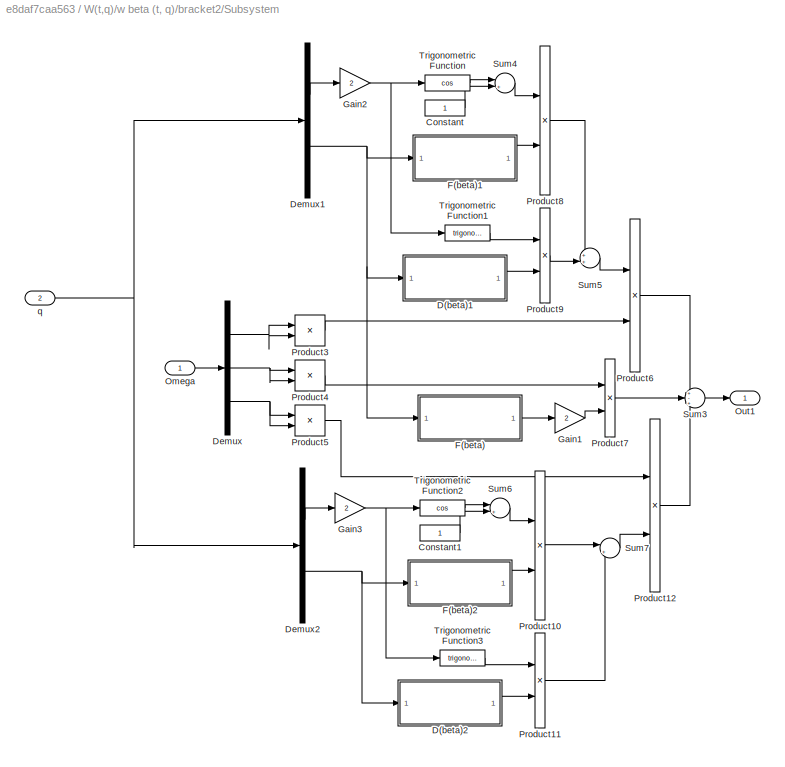
BLOCK [SubSystem] W(t,q)/w beta (t, q)/bracket2/Subsystem
  Ports = [2, 1]
  RequestExecContextInheritance = off
BLOCK [Constant] W(t,q)/w beta (t, q)/bracket2/Subsystem/Constant
BLOCK [Constant] W(t,q)/w beta (t, q)/bracket2/Subsystem/Constant1
BLOCK [SubSystem] W(t,q)/w beta (t, q)/bracket2/Subsystem/D(beta)1
  Ports = [1, 1]
  RequestExecContextInheritance = off
BLOCK [Outport] W(t,q)/w beta (t, q)/bracket2/Subsystem/D(beta)1/D
  IconDisplay = Port number
BLOCK [Gain] W(t,q)/w beta (t, q)/bracket2/Subsystem/D(beta)1/Gain
  Gain = D2
  OutDataTypeStr = Inherit: Inherit via internal rule
  ParamDataTypeStr = Inherit: Inherit via internal rule
  SaturateOnIntegerOverflow = off
BLOCK [Gain] W(t,q)/w beta (t, q)/bracket2/Subsystem/D(beta)1/Gain2
  Gain = E2
  OutDataTypeStr = Inherit: Inherit via internal rule
  ParamDataTypeStr = Inherit: Inherit via internal rule
  SaturateOnIntegerOverflow = off
BLOCK [Sum] W(t,q)/w beta (t, q)/bracket2/Subsystem/D(beta)1/Sum
  IconShape = round
  InputSameDT = off
  OutDataTypeStr = Inherit: Inherit via internal rule
  Ports = [2, 1]
  SaturateOnIntegerOverflow = off
BLOCK [Trigonometry] W(t,q)/w beta (t, q)/bracket2/Subsystem/D(beta)1/Trigonometric Function
  Operator = cos
  Ports = [1, 1]
BLOCK [Trigonometry] W(t,q)/w beta (t, q)/bracket2/Subsystem/D(beta)1/Trigonometric Function2
  Ports = [1, 1]
BLOCK [Inport] W(t,q)/w beta (t, q)/bracket2/Subsystem/D(beta)1/beta
  IconDisplay = Port number
BLOCK [SubSystem] W(t,q)/w beta (t, q)/bracket2/Subsystem/D(beta)2
  Ports = [1, 1]
  RequestExecContextInheritance = off
BLOCK [Outport] W(t,q)/w beta (t, q)/bracket2/Subsystem/D(beta)2/D
  IconDisplay = Port number
BLOCK [Gain] W(t,q)/w beta (t, q)/bracket2/Subsystem/D(beta)2/Gain
  Gain = D2
  OutDataTypeStr = Inherit: Inherit via internal rule
  ParamDataTypeStr = Inherit: Inherit via internal rule
  SaturateOnIntegerOverflow = off
BLOCK [Gain] W(t,q)/w beta (t, q)/bracket2/Subsystem/D(beta)2/Gain2
  Gain = E2
  OutDataTypeStr = Inherit: Inherit via internal rule
  ParamDataTypeStr = Inherit: Inherit via internal rule
  SaturateOnIntegerOverflow = off
BLOCK [Sum] W(t,q)/w beta (t, q)/bracket2/Subsystem/D(beta)2/Sum
  IconShape = round
  InputSameDT = off
  OutDataTypeStr = Inherit: Inherit via internal rule
  Ports = [2, 1]
  SaturateOnIntegerOverflow = off
BLOCK [Trigonometry] W(t,q)/w beta (t, q)/bracket2/Subsystem/D(beta)2/Trigonometric Function
  Operator = cos
  Ports = [1, 1]
BLOCK [Trigonometry] W(t,q)/w beta (t, q)/bracket2/Subsystem/D(beta)2/Trigonometric Function2
  Ports = [1, 1]
BLOCK [Inport] W(t,q)/w beta (t, q)/bracket2/Subsystem/D(beta)2/beta
  IconDisplay = Port number
BLOCK [Demux] W(t,q)/w beta (t, q)/bracket2/Subsystem/Demux
  DisplayOption = bar
  Outputs = 3
  Ports = [1, 3]
BLOCK [Demux] W(t,q)/w beta (t, q)/bracket2/Subsystem/Demux1
  DisplayOption = bar
  Outputs = 2
  Ports = [1, 2]
BLOCK [Demux] W(t,q)/w beta (t, q)/bracket2/Subsystem/Demux2
  DisplayOption = bar
  Outputs = 2
  Ports = [1, 2]
BLOCK [SubSystem] W(t,q)/w beta (t, q)/bracket2/Subsystem/F(beta)
  Ports = [1, 1]
  RequestExecContextInheritance = off
BLOCK [Outport] W(t,q)/w beta (t, q)/bracket2/Subsystem/F(beta)/F
  IconDisplay = Port number
BLOCK [Gain] W(t,q)/w beta (t, q)/bracket2/Subsystem/F(beta)/Gain
  Gain = F2
  OutDataTypeStr = Inherit: Inherit via internal rule
  ParamDataTypeStr = Inherit: Inherit via internal rule
  SaturateOnIntegerOverflow = off
BLOCK [Gain] W(t,q)/w beta (t, q)/bracket2/Subsystem/F(beta)/Gain1
  Gain = 2
  OutDataTypeStr = Inherit: Inherit via internal rule
  ParamDataTypeStr = Inherit: Inherit via internal rule
  SaturateOnIntegerOverflow = off
BLOCK [Gain] W(t,q)/w beta (t, q)/bracket2/Subsystem/F(beta)/Gain2
  Gain = (A2-B2)/2
  OutDataTypeStr = Inherit: Inherit via internal rule
  ParamDataTypeStr = Inherit: Inherit via internal rule
  SaturateOnIntegerOverflow = off
BLOCK [Sum] W(t,q)/w beta (t, q)/bracket2/Subsystem/F(beta)/Sum
  IconShape = round
  InputSameDT = off
  Inputs = +-
  OutDataTypeStr = Inherit: Inherit via internal rule
  Ports = [2, 1]
  SaturateOnIntegerOverflow = off
BLOCK [Trigonometry] W(t,q)/w beta (t, q)/bracket2/Subsystem/F(beta)/Trigonometric Function
  Operator = cos
  Ports = [1, 1]
BLOCK [Trigonometry] W(t,q)/w beta (t, q)/bracket2/Subsystem/F(beta)/Trigonometric Function2
  Ports = [1, 1]
BLOCK [Inport] W(t,q)/w beta (t, q)/bracket2/Subsystem/F(beta)/beta
  IconDisplay = Port number
BLOCK [SubSystem] W(t,q)/w beta (t, q)/bracket2/Subsystem/F(beta)1
  Ports = [1, 1]
  RequestExecContextInheritance = off
BLOCK [Outport] W(t,q)/w beta (t, q)/bracket2/Subsystem/F(beta)1/F
  IconDisplay = Port number
BLOCK [Gain] W(t,q)/w beta (t, q)/bracket2/Subsystem/F(beta)1/Gain
  Gain = F2
  OutDataTypeStr = Inherit: Inherit via internal rule
  ParamDataTypeStr = Inherit: Inherit via internal rule
  SaturateOnIntegerOverflow = off
BLOCK [Gain] W(t,q)/w beta (t, q)/bracket2/Subsystem/F(beta)1/Gain1
  Gain = 2
  OutDataTypeStr = Inherit: Inherit via internal rule
  ParamDataTypeStr = Inherit: Inherit via internal rule
  SaturateOnIntegerOverflow = off
BLOCK [Gain] W(t,q)/w beta (t, q)/bracket2/Subsystem/F(beta)1/Gain2
  Gain = (A2-B2)/2
  OutDataTypeStr = Inherit: Inherit via internal rule
  ParamDataTypeStr = Inherit: Inherit via internal rule
  SaturateOnIntegerOverflow = off
BLOCK [Sum] W(t,q)/w beta (t, q)/bracket2/Subsystem/F(beta)1/Sum
  IconShape = round
  InputSameDT = off
  Inputs = +-
  OutDataTypeStr = Inherit: Inherit via internal rule
  Ports = [2, 1]
  SaturateOnIntegerOverflow = off
BLOCK [Trigonometry] W(t,q)/w beta (t, q)/bracket2/Subsystem/F(beta)1/Trigonometric Function
  Operator = cos
  Ports = [1, 1]
BLOCK [Trigonometry] W(t,q)/w beta (t, q)/bracket2/Subsystem/F(beta)1/Trigonometric Function2
  Ports = [1, 1]
BLOCK [Inport] W(t,q)/w beta (t, q)/bracket2/Subsystem/F(beta)1/beta
  IconDisplay = Port number
BLOCK [SubSystem] W(t,q)/w beta (t, q)/bracket2/Subsystem/F(beta)2
  Ports = [1, 1]
  RequestExecContextInheritance = off
BLOCK [Outport] W(t,q)/w beta (t, q)/bracket2/Subsystem/F(beta)2/F
  IconDisplay = Port number
BLOCK [Gain] W(t,q)/w beta (t, q)/bracket2/Subsystem/F(beta)2/Gain
  Gain = F2
  OutDataTypeStr = Inherit: Inherit via internal rule
  ParamDataTypeStr = Inherit: Inherit via internal rule
  SaturateOnIntegerOverflow = off
BLOCK [Gain] W(t,q)/w beta (t, q)/bracket2/Subsystem/F(beta)2/Gain1
  Gain = 2
  OutDataTypeStr = Inherit: Inherit via internal rule
  ParamDataTypeStr = Inherit: Inherit via internal rule
  SaturateOnIntegerOverflow = off
BLOCK [Gain] W(t,q)/w beta (t, q)/bracket2/Subsystem/F(beta)2/Gain2
  Gain = (A2-B2)/2
  OutDataTypeStr = Inherit: Inherit via internal rule
  ParamDataTypeStr = Inherit: Inherit via internal rule
  SaturateOnIntegerOverflow = off
BLOCK [Sum] W(t,q)/w beta (t, q)/bracket2/Subsystem/F(beta)2/Sum
  IconShape = round
  InputSameDT = off
  Inputs = +-
  OutDataTypeStr = Inherit: Inherit via internal rule
  Ports = [2, 1]
  SaturateOnIntegerOverflow = off
BLOCK [Trigonometry] W(t,q)/w beta (t, q)/bracket2/Subsystem/F(beta)2/Trigonometric Function
  Operator = cos
  Ports = [1, 1]
BLOCK [Trigonometry] W(t,q)/w beta (t, q)/bracket2/Subsystem/F(beta)2/Trigonometric Function2
  Ports = [1, 1]
BLOCK [Inport] W(t,q)/w beta (t, q)/bracket2/Subsystem/F(beta)2/beta
  IconDisplay = Port number
BLOCK [Gain] W(t,q)/w beta (t, q)/bracket2/Subsystem/Gain1
  Gain = 2
  OutDataTypeStr = Inherit: Inherit via internal rule
  ParamDataTypeStr = Inherit: Inherit via internal rule
  SaturateOnIntegerOverflow = off
BLOCK [Gain] W(t,q)/w beta (t, q)/bracket2/Subsystem/Gain2
  Gain = 2
  OutDataTypeStr = Inherit: Inherit via internal rule
  ParamDataTypeStr = Inherit: Inherit via internal rule
  SaturateOnIntegerOverflow = off
BLOCK [Gain] W(t,q)/w beta (t, q)/bracket2/Subsystem/Gain3
  Gain = 2
  OutDataTypeStr = Inherit: Inherit via internal rule
  ParamDataTypeStr = Inherit: Inherit via internal rule
  SaturateOnIntegerOverflow = off
BLOCK [Inport] W(t,q)/w beta (t, q)/bracket2/Subsystem/Omega
  IconDisplay = Port number
BLOCK [Outport] W(t,q)/w beta (t, q)/bracket2/Subsystem/Out1
  IconDisplay = Port number
BLOCK [Product] W(t,q)/w beta (t, q)/bracket2/Subsystem/Product10
  InputSameDT = off
  OutDataTypeStr = Inherit: Inherit via internal rule
  Ports = [2, 1]
  RndMeth = Floor
  SaturateOnIntegerOverflow = off
BLOCK [Product] W(t,q)/w beta (t, q)/bracket2/Subsystem/Product11
  InputSameDT = off
  OutDataTypeStr = Inherit: Inherit via internal rule
  Ports = [2, 1]
  RndMeth = Floor
  SaturateOnIntegerOverflow = off
BLOCK [Product] W(t,q)/w beta (t, q)/bracket2/Subsystem/Product12
  InputSameDT = off
  OutDataTypeStr = Inherit: Inherit via internal rule
  Ports = [2, 1]
  RndMeth = Floor
  SaturateOnIntegerOverflow = off
BLOCK [Product] W(t,q)/w beta (t, q)/bracket2/Subsystem/Product3
  InputSameDT = off
  OutDataTypeStr = Inherit: Inherit via internal rule
  Ports = [2, 1]
  RndMeth = Floor
  SaturateOnIntegerOverflow = off
BLOCK [Product] W(t,q)/w beta (t, q)/bracket2/Subsystem/Product4
  InputSameDT = off
  OutDataTypeStr = Inherit: Inherit via internal rule
  Ports = [2, 1]
  RndMeth = Floor
  SaturateOnIntegerOverflow = off
BLOCK [Product] W(t,q)/w beta (t, q)/bracket2/Subsystem/Product5
  InputSameDT = off
  OutDataTypeStr = Inherit: Inherit via internal rule
  Ports = [2, 1]
  RndMeth = Floor
  SaturateOnIntegerOverflow = off
BLOCK [Product] W(t,q)/w beta (t, q)/bracket2/Subsystem/Product6
  InputSameDT = off
  OutDataTypeStr = Inherit: Inherit via internal rule
  Ports = [2, 1]
  RndMeth = Floor
  SaturateOnIntegerOverflow = off
BLOCK [Product] W(t,q)/w beta (t, q)/bracket2/Subsystem/Product7
  InputSameDT = off
  OutDataTypeStr = Inherit: Inherit via internal rule
  Ports = [2, 1]
  RndMeth = Floor
  SaturateOnIntegerOverflow = off
BLOCK [Product] W(t,q)/w beta (t, q)/bracket2/Subsystem/Product8
  InputSameDT = off
  OutDataTypeStr = Inherit: Inherit via internal rule
  Ports = [2, 1]
  RndMeth = Floor
  SaturateOnIntegerOverflow = off
BLOCK [Product] W(t,q)/w beta (t, q)/bracket2/Subsystem/Product9
  InputSameDT = off
  OutDataTypeStr = Inherit: Inherit via internal rule
  Ports = [2, 1]
  RndMeth = Floor
  SaturateOnIntegerOverflow = off
BLOCK [Sum] W(t,q)/w beta (t, q)/bracket2/Subsystem/Sum3
  IconShape = round
  InputSameDT = off
  Inputs = +-+
  OutDataTypeStr = Inherit: Inherit via internal rule
  Ports = [3, 1]
  SaturateOnIntegerOverflow = off
BLOCK [Sum] W(t,q)/w beta (t, q)/bracket2/Subsystem/Sum4
  IconShape = round
  InputSameDT = off
  Inputs = |++
  OutDataTypeStr = Inherit: Inherit via internal rule
  Ports = [2, 1]
  SaturateOnIntegerOverflow = off
BLOCK [Sum] W(t,q)/w beta (t, q)/bracket2/Subsystem/Sum5
  IconShape = round
  InputSameDT = off
  Inputs = ++|
  OutDataTypeStr = Inherit: Inherit via internal rule
  Ports = [2, 1]
  SaturateOnIntegerOverflow = off
BLOCK [Sum] W(t,q)/w beta (t, q)/bracket2/Subsystem/Sum6
  IconShape = round
  InputSameDT = off
  Inputs = |+-
  OutDataTypeStr = Inherit: Inherit via internal rule
  Ports = [2, 1]
  SaturateOnIntegerOverflow = off
BLOCK [Sum] W(t,q)/w beta (t, q)/bracket2/Subsystem/Sum7
  IconShape = round
  InputSameDT = off
  Inputs = |+-
  OutDataTypeStr = Inherit: Inherit via internal rule
  Ports = [2, 1]
  SaturateOnIntegerOverflow = off
BLOCK [Trigonometry] W(t,q)/w beta (t, q)/bracket2/Subsystem/Trigonometric Function
  Operator = cos
  Ports = [1, 1]
BLOCK [Trigonometry] W(t,q)/w beta (t, q)/bracket2/Subsystem/Trigonometric Function1
  Ports = [1, 1]
BLOCK [Trigonometry] W(t,q)/w beta (t, q)/bracket2/Subsystem/Trigonometric Function2
  Operator = cos
  Ports = [1, 1]
BLOCK [Trigonometry] W(t,q)/w beta (t, q)/bracket2/Subsystem/Trigonometric Function3
  Ports = [1, 1]
BLOCK [Inport] W(t,q)/w beta (t, q)/bracket2/Subsystem/q
  IconDisplay = Port number
  Port = 2
BLOCK [SubSystem] W(t,q)/w beta (t, q)/bracket2/Subsystem1
  Ports = [2, 1]
  RequestExecContextInheritance = off
BLOCK [SubSystem] W(t,q)/w beta (t, q)/bracket2/Subsystem1/A2(beta)
  Ports = [1, 1]
  RequestExecContextInheritance = off
BLOCK [Outport] W(t,q)/w beta (t, q)/bracket2/Subsystem1/A2(beta)/A2
  IconDisplay = Port number
BLOCK [Gain] W(t,q)/w beta (t, q)/bracket2/Subsystem1/A2(beta)/Gain
  Gain = A2-B2
  OutDataTypeStr = Inherit: Inherit via internal rule
  ParamDataTypeStr = Inherit: Inherit via internal rule
  SaturateOnIntegerOverflow = off
BLOCK [Gain] W(t,q)/w beta (t, q)/bracket2/Subsystem1/A2(beta)/Gain1
  Gain = 2
  OutDataTypeStr = Inherit: Inherit via internal rule
  ParamDataTypeStr = Inherit: Inherit via internal rule
  SaturateOnIntegerOverflow = off
BLOCK [Gain] W(t,q)/w beta (t, q)/bracket2/Subsystem1/A2(beta)/Gain2
  Gain = F2
  OutDataTypeStr = Inherit: Inherit via internal rule
  ParamDataTypeStr = Inherit: Inherit via internal rule
  SaturateOnIntegerOverflow = off
BLOCK [Gain] W(t,q)/w beta (t, q)/bracket2/Subsystem1/A2(beta)/Gain3
  Gain = 1/2
  OutDataTypeStr = Inherit: Inherit via internal rule
  ParamDataTypeStr = Inherit: Inherit via internal rule
  SaturateOnIntegerOverflow = off
BLOCK [Sum] W(t,q)/w beta (t, q)/bracket2/Subsystem1/A2(beta)/Sum
  IconShape = round
  InputSameDT = off
  OutDataTypeStr = Inherit: Inherit via internal rule
  Ports = [2, 1]
  SaturateOnIntegerOverflow = off
BLOCK [Trigonometry] W(t,q)/w beta (t, q)/bracket2/Subsystem1/A2(beta)/Trigonometric Function
  Operator = cos
  Ports = [1, 1]
BLOCK [Trigonometry] W(t,q)/w beta (t, q)/bracket2/Subsystem1/A2(beta)/Trigonometric Function2
  Ports = [1, 1]
BLOCK [Inport] W(t,q)/w beta (t, q)/bracket2/Subsystem1/A2(beta)/beta
  IconDisplay = Port number
BLOCK [Demux] W(t,q)/w beta (t, q)/bracket2/Subsystem1/Demux1
  DisplayOption = bar
  Outputs = 2
  Ports = [1, 2]
BLOCK [SubSystem] W(t,q)/w beta (t, q)/bracket2/Subsystem1/E(beta)
  Ports = [1, 1]
  RequestExecContextInheritance = off
BLOCK [Outport] W(t,q)/w beta (t, q)/bracket2/Subsystem1/E(beta)/E
  IconDisplay = Port number
BLOCK [Gain] W(t,q)/w beta (t, q)/bracket2/Subsystem1/E(beta)/Gain
  Gain = E2
  OutDataTypeStr = Inherit: Inherit via internal rule
  ParamDataTypeStr = Inherit: Inherit via internal rule
  SaturateOnIntegerOverflow = off
BLOCK [Gain] W(t,q)/w beta (t, q)/bracket2/Subsystem1/E(beta)/Gain2
  Gain = D2
  OutDataTypeStr = Inherit: Inherit via internal rule
  ParamDataTypeStr = Inherit: Inherit via internal rule
  SaturateOnIntegerOverflow = off
BLOCK [Sum] W(t,q)/w beta (t, q)/bracket2/Subsystem1/E(beta)/Sum
  IconShape = round
  InputSameDT = off
  Inputs = +-
  OutDataTypeStr = Inherit: Inherit via internal rule
  Ports = [2, 1]
  SaturateOnIntegerOverflow = off
BLOCK [Trigonometry] W(t,q)/w beta (t, q)/bracket2/Subsystem1/E(beta)/Trigonometric Function
  Operator = cos
  Ports = [1, 1]
BLOCK [Trigonometry] W(t,q)/w beta (t, q)/bracket2/Subsystem1/E(beta)/Trigonometric Function2
  Ports = [1, 1]
BLOCK [Inport] W(t,q)/w beta (t, q)/bracket2/Subsystem1/E(beta)/beta
  IconDisplay = Port number
BLOCK [Gain] W(t,q)/w beta (t, q)/bracket2/Subsystem1/Gain1
  Gain = 2
  OutDataTypeStr = Inherit: Inherit via internal rule
  ParamDataTypeStr = Inherit: Inherit via internal rule
  SaturateOnIntegerOverflow = off
BLOCK [Outport] W(t,q)/w beta (t, q)/bracket2/Subsystem1/Out1
  IconDisplay = Port number
BLOCK [Product] W(t,q)/w beta (t, q)/bracket2/Subsystem1/Product
  InputSameDT = off
  OutDataTypeStr = Inherit: Inherit via internal rule
  Ports = [2, 1]
  RndMeth = Floor
  SaturateOnIntegerOverflow = off
BLOCK [Product] W(t,q)/w beta (t, q)/bracket2/Subsystem1/Product1
  InputSameDT = off
  OutDataTypeStr = Inherit: Inherit via internal rule
  Ports = [2, 1]
  RndMeth = Floor
  SaturateOnIntegerOverflow = off
BLOCK [Product] W(t,q)/w beta (t, q)/bracket2/Subsystem1/Product3
  InputSameDT = off
  OutDataTypeStr = Inherit: Inherit via internal rule
  Ports = [2, 1]
  RndMeth = Floor
  SaturateOnIntegerOverflow = off
BLOCK [Sum] W(t,q)/w beta (t, q)/bracket2/Subsystem1/Sum
  IconShape = round
  InputSameDT = off
  Inputs = +-
  OutDataTypeStr = Inherit: Inherit via internal rule
  Ports = [2, 1]
  SaturateOnIntegerOverflow = off
BLOCK [Trigonometry] W(t,q)/w beta (t, q)/bracket2/Subsystem1/Trigonometric Function
  Operator = cos
  Ports = [1, 1]
BLOCK [Trigonometry] W(t,q)/w beta (t, q)/bracket2/Subsystem1/Trigonometric Function1
  Ports = [1, 1]
BLOCK [Inport] W(t,q)/w beta (t, q)/bracket2/Subsystem1/omega x omega y
  IconDisplay = Port number
  Port = 2
BLOCK [Inport] W(t,q)/w beta (t, q)/bracket2/Subsystem1/q
  IconDisplay = Port number
BLOCK [SubSystem] W(t,q)/w beta (t, q)/bracket2/Subsystem2
  Ports = [2, 1]
  RequestExecContextInheritance = off
BLOCK [SubSystem] W(t,q)/w beta (t, q)/bracket2/Subsystem2/D(beta)
  Ports = [1, 1]
  RequestExecContextInheritance = off
BLOCK [Outport] W(t,q)/w beta (t, q)/bracket2/Subsystem2/D(beta)/D
  IconDisplay = Port number
BLOCK [Gain] W(t,q)/w beta (t, q)/bracket2/Subsystem2/D(beta)/Gain
  Gain = D2
  OutDataTypeStr = Inherit: Inherit via internal rule
  ParamDataTypeStr = Inherit: Inherit via internal rule
  SaturateOnIntegerOverflow = off
BLOCK [Gain] W(t,q)/w beta (t, q)/bracket2/Subsystem2/D(beta)/Gain2
  Gain = E2
  OutDataTypeStr = Inherit: Inherit via internal rule
  ParamDataTypeStr = Inherit: Inherit via internal rule
  SaturateOnIntegerOverflow = off
BLOCK [Sum] W(t,q)/w beta (t, q)/bracket2/Subsystem2/D(beta)/Sum
  IconShape = round
  InputSameDT = off
  OutDataTypeStr = Inherit: Inherit via internal rule
  Ports = [2, 1]
  SaturateOnIntegerOverflow = off
BLOCK [Trigonometry] W(t,q)/w beta (t, q)/bracket2/Subsystem2/D(beta)/Trigonometric Function
  Operator = cos
  Ports = [1, 1]
BLOCK [Trigonometry] W(t,q)/w beta (t, q)/bracket2/Subsystem2/D(beta)/Trigonometric Function2
  Ports = [1, 1]
BLOCK [Inport] W(t,q)/w beta (t, q)/bracket2/Subsystem2/D(beta)/beta
  IconDisplay = Port number
BLOCK [Demux] W(t,q)/w beta (t, q)/bracket2/Subsystem2/Demux1
  DisplayOption = bar
  Outputs = 2
  Ports = [1, 2]
BLOCK [SubSystem] W(t,q)/w beta (t, q)/bracket2/Subsystem2/F(beta)
  Ports = [1, 1]
  RequestExecContextInheritance = off
BLOCK [Outport] W(t,q)/w beta (t, q)/bracket2/Subsystem2/F(beta)/F
  IconDisplay = Port number
BLOCK [Gain] W(t,q)/w beta (t, q)/bracket2/Subsystem2/F(beta)/Gain
  Gain = F2
  OutDataTypeStr = Inherit: Inherit via internal rule
  ParamDataTypeStr = Inherit: Inherit via internal rule
  SaturateOnIntegerOverflow = off
BLOCK [Gain] W(t,q)/w beta (t, q)/bracket2/Subsystem2/F(beta)/Gain1
  Gain = 2
  OutDataTypeStr = Inherit: Inherit via internal rule
  ParamDataTypeStr = Inherit: Inherit via internal rule
  SaturateOnIntegerOverflow = off
BLOCK [Gain] W(t,q)/w beta (t, q)/bracket2/Subsystem2/F(beta)/Gain2
  Gain = (A2-B2)/2
  OutDataTypeStr = Inherit: Inherit via internal rule
  ParamDataTypeStr = Inherit: Inherit via internal rule
  SaturateOnIntegerOverflow = off
BLOCK [Sum] W(t,q)/w beta (t, q)/bracket2/Subsystem2/F(beta)/Sum
  IconShape = round
  InputSameDT = off
  Inputs = +-
  OutDataTypeStr = Inherit: Inherit via internal rule
  Ports = [2, 1]
  SaturateOnIntegerOverflow = off
BLOCK [Trigonometry] W(t,q)/w beta (t, q)/bracket2/Subsystem2/F(beta)/Trigonometric Function
  Operator = cos
  Ports = [1, 1]
BLOCK [Trigonometry] W(t,q)/w beta (t, q)/bracket2/Subsystem2/F(beta)/Trigonometric Function2
  Ports = [1, 1]
BLOCK [Inport] W(t,q)/w beta (t, q)/bracket2/Subsystem2/F(beta)/beta
  IconDisplay = Port number
BLOCK [Gain] W(t,q)/w beta (t, q)/bracket2/Subsystem2/Gain
  Gain = 2
  OutDataTypeStr = Inherit: Inherit via internal rule
  ParamDataTypeStr = Inherit: Inherit via internal rule
  SaturateOnIntegerOverflow = off
BLOCK [Outport] W(t,q)/w beta (t, q)/bracket2/Subsystem2/Out1
  IconDisplay = Port number
BLOCK [Product] W(t,q)/w beta (t, q)/bracket2/Subsystem2/Product
  InputSameDT = off
  OutDataTypeStr = Inherit: Inherit via internal rule
  Ports = [2, 1]
  RndMeth = Floor
  SaturateOnIntegerOverflow = off
BLOCK [Product] W(t,q)/w beta (t, q)/bracket2/Subsystem2/Product1
  InputSameDT = off
  OutDataTypeStr = Inherit: Inherit via internal rule
  Ports = [2, 1]
  RndMeth = Floor
  SaturateOnIntegerOverflow = off
BLOCK [Product] W(t,q)/w beta (t, q)/bracket2/Subsystem2/Product3
  InputSameDT = off
  OutDataTypeStr = Inherit: Inherit via internal rule
  Ports = [2, 1]
  RndMeth = Floor
  SaturateOnIntegerOverflow = off
BLOCK [Sum] W(t,q)/w beta (t, q)/bracket2/Subsystem2/Sum
  IconShape = round
  InputSameDT = off
  Inputs = +-
  OutDataTypeStr = Inherit: Inherit via internal rule
  Ports = [2, 1]
  SaturateOnIntegerOverflow = off
BLOCK [Trigonometry] W(t,q)/w beta (t, q)/bracket2/Subsystem2/Trigonometric Function
  Ports = [1, 1]
BLOCK [Trigonometry] W(t,q)/w beta (t, q)/bracket2/Subsystem2/Trigonometric Function1
  Operator = cos
  Ports = [1, 1]
BLOCK [Inport] W(t,q)/w beta (t, q)/bracket2/Subsystem2/omega x omega z
  IconDisplay = Port number
  Port = 2
BLOCK [Inport] W(t,q)/w beta (t, q)/bracket2/Subsystem2/q
  IconDisplay = Port number
BLOCK [SubSystem] W(t,q)/w beta (t, q)/bracket2/Subsystem3
  Ports = [2, 1]
  RequestExecContextInheritance = off
BLOCK [SubSystem] W(t,q)/w beta (t, q)/bracket2/Subsystem3/A2(beta)
  Ports = [1, 1]
  RequestExecContextInheritance = off
BLOCK [Outport] W(t,q)/w beta (t, q)/bracket2/Subsystem3/A2(beta)/A2
  IconDisplay = Port number
BLOCK [Gain] W(t,q)/w beta (t, q)/bracket2/Subsystem3/A2(beta)/Gain
  Gain = A2-B2
  OutDataTypeStr = Inherit: Inherit via internal rule
  ParamDataTypeStr = Inherit: Inherit via internal rule
  SaturateOnIntegerOverflow = off
BLOCK [Gain] W(t,q)/w beta (t, q)/bracket2/Subsystem3/A2(beta)/Gain1
  Gain = 2
  OutDataTypeStr = Inherit: Inherit via internal rule
  ParamDataTypeStr = Inherit: Inherit via internal rule
  SaturateOnIntegerOverflow = off
BLOCK [Gain] W(t,q)/w beta (t, q)/bracket2/Subsystem3/A2(beta)/Gain2
  Gain = F2
  OutDataTypeStr = Inherit: Inherit via internal rule
  ParamDataTypeStr = Inherit: Inherit via internal rule
  SaturateOnIntegerOverflow = off
BLOCK [Gain] W(t,q)/w beta (t, q)/bracket2/Subsystem3/A2(beta)/Gain3
  Gain = 1/2
  OutDataTypeStr = Inherit: Inherit via internal rule
  ParamDataTypeStr = Inherit: Inherit via internal rule
  SaturateOnIntegerOverflow = off
BLOCK [Sum] W(t,q)/w beta (t, q)/bracket2/Subsystem3/A2(beta)/Sum
  IconShape = round
  InputSameDT = off
  OutDataTypeStr = Inherit: Inherit via internal rule
  Ports = [2, 1]
  SaturateOnIntegerOverflow = off
BLOCK [Trigonometry] W(t,q)/w beta (t, q)/bracket2/Subsystem3/A2(beta)/Trigonometric Function
  Operator = cos
  Ports = [1, 1]
BLOCK [Trigonometry] W(t,q)/w beta (t, q)/bracket2/Subsystem3/A2(beta)/Trigonometric Function2
  Ports = [1, 1]
BLOCK [Inport] W(t,q)/w beta (t, q)/bracket2/Subsystem3/A2(beta)/beta
  IconDisplay = Port number
BLOCK [Demux] W(t,q)/w beta (t, q)/bracket2/Subsystem3/Demux1
  DisplayOption = bar
  Outputs = 2
  Ports = [1, 2]
BLOCK [SubSystem] W(t,q)/w beta (t, q)/bracket2/Subsystem3/E(beta)
  Ports = [1, 1]
  RequestExecContextInheritance = off
BLOCK [Outport] W(t,q)/w beta (t, q)/bracket2/Subsystem3/E(beta)/E
  IconDisplay = Port number
BLOCK [Gain] W(t,q)/w beta (t, q)/bracket2/Subsystem3/E(beta)/Gain
  Gain = E2
  OutDataTypeStr = Inherit: Inherit via internal rule
  ParamDataTypeStr = Inherit: Inherit via internal rule
  SaturateOnIntegerOverflow = off
BLOCK [Gain] W(t,q)/w beta (t, q)/bracket2/Subsystem3/E(beta)/Gain2
  Gain = D2
  OutDataTypeStr = Inherit: Inherit via internal rule
  ParamDataTypeStr = Inherit: Inherit via internal rule
  SaturateOnIntegerOverflow = off
BLOCK [Sum] W(t,q)/w beta (t, q)/bracket2/Subsystem3/E(beta)/Sum
  IconShape = round
  InputSameDT = off
  Inputs = +-
  OutDataTypeStr = Inherit: Inherit via internal rule
  Ports = [2, 1]
  SaturateOnIntegerOverflow = off
BLOCK [Trigonometry] W(t,q)/w beta (t, q)/bracket2/Subsystem3/E(beta)/Trigonometric Function
  Operator = cos
  Ports = [1, 1]
BLOCK [Trigonometry] W(t,q)/w beta (t, q)/bracket2/Subsystem3/E(beta)/Trigonometric Function2
  Ports = [1, 1]
BLOCK [Inport] W(t,q)/w beta (t, q)/bracket2/Subsystem3/E(beta)/beta
  IconDisplay = Port number
BLOCK [Gain] W(t,q)/w beta (t, q)/bracket2/Subsystem3/Gain1
  Gain = 2
  OutDataTypeStr = Inherit: Inherit via internal rule
  ParamDataTypeStr = Inherit: Inherit via internal rule
  SaturateOnIntegerOverflow = off
BLOCK [Outport] W(t,q)/w beta (t, q)/bracket2/Subsystem3/Out1
  IconDisplay = Port number
BLOCK [Product] W(t,q)/w beta (t, q)/bracket2/Subsystem3/Product
  InputSameDT = off
  OutDataTypeStr = Inherit: Inherit via internal rule
  Ports = [2, 1]
  RndMeth = Floor
  SaturateOnIntegerOverflow = off
BLOCK [Product] W(t,q)/w beta (t, q)/bracket2/Subsystem3/Product1
  InputSameDT = off
  OutDataTypeStr = Inherit: Inherit via internal rule
  Ports = [2, 1]
  RndMeth = Floor
  SaturateOnIntegerOverflow = off
BLOCK [Product] W(t,q)/w beta (t, q)/bracket2/Subsystem3/Product3
  InputSameDT = off
  OutDataTypeStr = Inherit: Inherit via internal rule
  Ports = [2, 1]
  RndMeth = Floor
  SaturateOnIntegerOverflow = off
BLOCK [Sum] W(t,q)/w beta (t, q)/bracket2/Subsystem3/Sum
  IconShape = round
  InputSameDT = off
  OutDataTypeStr = Inherit: Inherit via internal rule
  Ports = [2, 1]
  SaturateOnIntegerOverflow = off
BLOCK [Trigonometry] W(t,q)/w beta (t, q)/bracket2/Subsystem3/Trigonometric Function
  Operator = cos
  Ports = [1, 1]
BLOCK [Trigonometry] W(t,q)/w beta (t, q)/bracket2/Subsystem3/Trigonometric Function1
  Ports = [1, 1]
BLOCK [Inport] W(t,q)/w beta (t, q)/bracket2/Subsystem3/omega y omega z
  IconDisplay = Port number
  Port = 2
BLOCK [Inport] W(t,q)/w beta (t, q)/bracket2/Subsystem3/q
  IconDisplay = Port number
BLOCK [Sum] W(t,q)/w beta (t, q)/bracket2/Sum1
  IconShape = round
  InputSameDT = off
  Inputs = ++|
  OutDataTypeStr = Inherit: Inherit via internal rule
  Ports = [2, 1]
  SaturateOnIntegerOverflow = off
BLOCK [Sum] W(t,q)/w beta (t, q)/bracket2/Sum8
  IconShape = round
  InputSameDT = off
  Inputs = +--
  OutDataTypeStr = Inherit: Inherit via internal rule
  Ports = [3, 1]
  SaturateOnIntegerOverflow = off
BLOCK [Inport] W(t,q)/w beta (t, q)/bracket2/q
  IconDisplay = Port number
  Port = 2
BLOCK [Inport] W(t,q)/w beta (t, q)/q
  IconDisplay = Port number
  Port = 3
BLOCK [Outport] W(t,q)/w beta (t, q)/w alpha
  IconDisplay = Port number
LINE A(q)/B(beta)/Constant3:1 -> A(q)/B(beta)/Math Function:2
LINE A(q)/B(beta)/Constant4:1 -> A(q)/B(beta)/Math Function1:2
LINE A(q)/B(beta)/Gain1:1 -> A(q)/B(beta)/Sum:2
LINE A(q)/B(beta)/Gain2:1 -> A(q)/B(beta)/Sum:3
LINE A(q)/B(beta)/Gain3:1 -> A(q)/B(beta)/Trigonometric Function2:1
LINE A(q)/B(beta)/Gain:1 -> A(q)/B(beta)/Sum:1
LINE A(q)/B(beta)/Math Function1:1 -> A(q)/B(beta)/Gain1:1
LINE A(q)/B(beta)/Math Function:1 -> A(q)/B(beta)/Gain:1
LINE A(q)/B(beta)/Sum:1 -> A(q)/B(beta)/B:1
LINE A(q)/B(beta)/Trigonometric Function1:1 -> A(q)/B(beta)/Math Function1:1
LINE A(q)/B(beta)/Trigonometric Function2:1 -> A(q)/B(beta)/Gain2:1
LINE A(q)/B(beta)/Trigonometric Function:1 -> A(q)/B(beta)/Math Function:1
NET A(q)/B(beta)/beta:1 -> A(q)/B(beta)/Gain3:1, A(q)/B(beta)/Trigonometric Function1:1, A(q)/B(beta)/Trigonometric Function:1
LINE A(q)/B(beta):1 -> A(q)/Sum:1
LINE A(q)/Constant10:1 -> A(q)/Vector Concatenate2:2
LINE A(q)/Constant7:1 -> A(q)/Sum:2
LINE A(q)/D(beta)/Gain2:1 -> A(q)/D(beta)/Sum:2
LINE A(q)/D(beta)/Gain:1 -> A(q)/D(beta)/Sum:1
LINE A(q)/D(beta)/Sum:1 -> A(q)/D(beta)/D:1
LINE A(q)/D(beta)/Trigonometric Function2:1 -> A(q)/D(beta)/Gain2:1
LINE A(q)/D(beta)/Trigonometric Function:1 -> A(q)/D(beta)/Gain:1
NET A(q)/D(beta)/beta:1 -> A(q)/D(beta)/Trigonometric Function2:1, A(q)/D(beta)/Trigonometric Function:1
LINE A(q)/D(beta):1 -> A(q)/Gain:1
NET A(q)/Demux:2 -> A(q)/B(beta):1, A(q)/D(beta):1
NET A(q)/Gain:1 -> A(q)/Vector Concatenate1:2, A(q)/Vector Concatenate2:1
LINE A(q)/Sum:1 -> A(q)/Vector Concatenate1:1
LINE A(q)/Vector Concatenate1:1 -> A(q)/Vector Concatenate6:1
LINE A(q)/Vector Concatenate2:1 -> A(q)/Vector Concatenate6:2
NET A(q)/Vector Concatenate6:1 -> A(q)/A:1, A(q)/Display5:1
LINE A(q)/q:1 -> A(q)/Demux:1
LINE A(q):1 -> Matrix Multiply1:1
NET B(t,q)/Constant:1 -> B(t,q)/Vector Concatenate3:1, B(t,q)/Vector Concatenate4:2
LINE B(t,q)/Gain:1 -> B(t,q)/Vector Concatenate4:1
LINE B(t,q)/Vector Concatenate3:1 -> B(t,q)/Vector Concatenate5:1
LINE B(t,q)/Vector Concatenate4:1 -> B(t,q)/Vector Concatenate5:2
LINE B(t,q)/Vector Concatenate5:1 -> B(t,q)/B:1
NET B(t,q)/b(t,alpha,beta)/A2(beta)/Gain1:1 -> B(t,q)/b(t,alpha,beta)/A2(beta)/Trigonometric Function2:1, B(t,q)/b(t,alpha,beta)/A2(beta)/Trigonometric Function:1
LINE B(t,q)/b(t,alpha,beta)/A2(beta)/Gain2:1 -> B(t,q)/b(t,alpha,beta)/A2(beta)/Sum:2
LINE B(t,q)/b(t,alpha,beta)/A2(beta)/Gain:1 -> B(t,q)/b(t,alpha,beta)/A2(beta)/Sum:1
LINE B(t,q)/b(t,alpha,beta)/A2(beta)/Sum:1 -> B(t,q)/b(t,alpha,beta)/A2(beta)/A2:1
LINE B(t,q)/b(t,alpha,beta)/A2(beta)/Trigonometric Function2:1 -> B(t,q)/b(t,alpha,beta)/A2(beta)/Gain2:1
LINE B(t,q)/b(t,alpha,beta)/A2(beta)/Trigonometric Function:1 -> B(t,q)/b(t,alpha,beta)/A2(beta)/Gain:1
LINE B(t,q)/b(t,alpha,beta)/A2(beta)/beta:1 -> B(t,q)/b(t,alpha,beta)/A2(beta)/Gain1:1
LINE B(t,q)/b(t,alpha,beta)/A2(beta):1 -> B(t,q)/b(t,alpha,beta)/Gain:1
LINE B(t,q)/b(t,alpha,beta)/Constant:1 -> B(t,q)/b(t,alpha,beta)/Sum:2
LINE B(t,q)/b(t,alpha,beta)/Demux1:1 -> B(t,q)/b(t,alpha,beta)/Product2:1
LINE B(t,q)/b(t,alpha,beta)/Demux1:2 -> B(t,q)/b(t,alpha,beta)/Product4:1
LINE B(t,q)/b(t,alpha,beta)/Demux1:3 -> B(t,q)/b(t,alpha,beta)/Product3:1
NET B(t,q)/b(t,alpha,beta)/Demux:1 -> B(t,q)/b(t,alpha,beta)/Trigonometric Function1:1, B(t,q)/b(t,alpha,beta)/Trigonometric Function2:1, B(t,q)/b(t,alpha,beta)/Trigonometric Function3:1, B(t,q)/b(t,alpha,beta)/Trigonometric Function:1
NET B(t,q)/b(t,alpha,beta)/Demux:2 -> B(t,q)/b(t,alpha,beta)/A2(beta):1, B(t,q)/b(t,alpha,beta)/E(beta):1, B(t,q)/b(t,alpha,beta)/F(beta):1
LINE B(t,q)/b(t,alpha,beta)/E(beta)/Gain2:1 -> B(t,q)/b(t,alpha,beta)/E(beta)/Sum:2
LINE B(t,q)/b(t,alpha,beta)/E(beta)/Gain:1 -> B(t,q)/b(t,alpha,beta)/E(beta)/Sum:1
LINE B(t,q)/b(t,alpha,beta)/E(beta)/Sum:1 -> B(t,q)/b(t,alpha,beta)/E(beta)/E:1
LINE B(t,q)/b(t,alpha,beta)/E(beta)/Trigonometric Function2:1 -> B(t,q)/b(t,alpha,beta)/E(beta)/Gain2:1
LINE B(t,q)/b(t,alpha,beta)/E(beta)/Trigonometric Function:1 -> B(t,q)/b(t,alpha,beta)/E(beta)/Gain:1
NET B(t,q)/b(t,alpha,beta)/E(beta)/beta:1 -> B(t,q)/b(t,alpha,beta)/E(beta)/Trigonometric Function2:1, B(t,q)/b(t,alpha,beta)/E(beta)/Trigonometric Function:1
LINE B(t,q)/b(t,alpha,beta)/E(beta):1 -> B(t,q)/b(t,alpha,beta)/Gain1:1
LINE B(t,q)/b(t,alpha,beta)/F(beta)/Gain1:1 -> B(t,q)/b(t,alpha,beta)/F(beta)/Trigonometric Function2:1
LINE B(t,q)/b(t,alpha,beta)/F(beta)/Gain2:1 -> B(t,q)/b(t,alpha,beta)/F(beta)/Sum:2
LINE B(t,q)/b(t,alpha,beta)/F(beta)/Gain:1 -> B(t,q)/b(t,alpha,beta)/F(beta)/Sum:1
LINE B(t,q)/b(t,alpha,beta)/F(beta)/Sum:1 -> B(t,q)/b(t,alpha,beta)/F(beta)/F:1
LINE B(t,q)/b(t,alpha,beta)/F(beta)/Trigonometric Function2:1 -> B(t,q)/b(t,alpha,beta)/F(beta)/Gain2:1
LINE B(t,q)/b(t,alpha,beta)/F(beta)/Trigonometric Function:1 -> B(t,q)/b(t,alpha,beta)/F(beta)/Gain:1
NET B(t,q)/b(t,alpha,beta)/F(beta)/beta:1 -> B(t,q)/b(t,alpha,beta)/F(beta)/Gain1:1, B(t,q)/b(t,alpha,beta)/F(beta)/Trigonometric Function:1
LINE B(t,q)/b(t,alpha,beta)/F(beta):1 -> B(t,q)/b(t,alpha,beta)/Gain2:1
NET B(t,q)/b(t,alpha,beta)/Gain1:1 -> B(t,q)/b(t,alpha,beta)/Product5:1, B(t,q)/b(t,alpha,beta)/Product6:1
LINE B(t,q)/b(t,alpha,beta)/Gain2:1 -> B(t,q)/b(t,alpha,beta)/Product4:2
LINE B(t,q)/b(t,alpha,beta)/Gain:1 -> B(t,q)/b(t,alpha,beta)/Sum:1
LINE B(t,q)/b(t,alpha,beta)/Product1:1 -> B(t,q)/b(t,alpha,beta)/Sum2:1
LINE B(t,q)/b(t,alpha,beta)/Product2:1 -> B(t,q)/b(t,alpha,beta)/Sum3:1
LINE B(t,q)/b(t,alpha,beta)/Product3:1 -> B(t,q)/b(t,alpha,beta)/Sum3:3
LINE B(t,q)/b(t,alpha,beta)/Product4:1 -> B(t,q)/b(t,alpha,beta)/Sum3:2
LINE B(t,q)/b(t,alpha,beta)/Product5:1 -> B(t,q)/b(t,alpha,beta)/Sum1:2
LINE B(t,q)/b(t,alpha,beta)/Product6:1 -> B(t,q)/b(t,alpha,beta)/Sum2:2
LINE B(t,q)/b(t,alpha,beta)/Product:1 -> B(t,q)/b(t,alpha,beta)/Sum1:1
LINE B(t,q)/b(t,alpha,beta)/Sum1:1 -> B(t,q)/b(t,alpha,beta)/Product2:2
LINE B(t,q)/b(t,alpha,beta)/Sum2:1 -> B(t,q)/b(t,alpha,beta)/Product3:2
LINE B(t,q)/b(t,alpha,beta)/Sum3:1 -> B(t,q)/b(t,alpha,beta)/b:1
NET B(t,q)/b(t,alpha,beta)/Sum:1 -> B(t,q)/b(t,alpha,beta)/Product1:1, B(t,q)/b(t,alpha,beta)/Product:1
LINE B(t,q)/b(t,alpha,beta)/Trigonometric Function1:1 -> B(t,q)/b(t,alpha,beta)/Product1:2
LINE B(t,q)/b(t,alpha,beta)/Trigonometric Function2:1 -> B(t,q)/b(t,alpha,beta)/Product5:2
LINE B(t,q)/b(t,alpha,beta)/Trigonometric Function3:1 -> B(t,q)/b(t,alpha,beta)/Product6:2
LINE B(t,q)/b(t,alpha,beta)/Trigonometric Function:1 -> B(t,q)/b(t,alpha,beta)/Product:2
LINE B(t,q)/b(t,alpha,beta)/omega:1 -> B(t,q)/b(t,alpha,beta)/Demux1:1
LINE B(t,q)/b(t,alpha,beta)/q:1 -> B(t,q)/b(t,alpha,beta)/Demux:1
NET B(t,q)/b(t,alpha,beta):1 -> B(t,q)/Gain:1, B(t,q)/Vector Concatenate3:2
LINE B(t,q)/omega:1 -> B(t,q)/b(t,alpha,beta):1
LINE B(t,q)/q:1 -> B(t,q)/b(t,alpha,beta):2
LINE B(t,q):1 -> Matrix Multiply2:1
LINE Constant12:1 -> Sign:1
LINE Constant13:1 -> Sign1:1
LINE Constant14:1 -> Sign2:1
LINE Constant15:1 -> Vector Concatenate2:3
LINE Constant16:1 -> Vector Concatenate2:1
LINE Constant17:1 -> Vector Concatenate2:2
LINE Constant18:1 -> Gain6:1
LINE Constant19:1 -> Gain7:1
LINE Constant2:1 -> Vector Concatenate3:1
LINE Constant3:1 -> Vector Concatenate3:2
LINE Constant4:1 -> Vector Concatenate4:1
LINE Constant5:1 -> Vector Concatenate4:2
LINE Demux1:1 -> Sum5:1
LINE Demux1:2 -> Sum6:1
LINE Demux2:1 -> Sum5:2
LINE Demux2:2 -> Sum6:2
LINE Demux:1 -> Sum3:2
LINE Demux:2 -> Sum2:2
LINE Derivative:1 -> Matrix Multiply1:2
LINE Drive/Demux1:1 -> Drive/Sum:2
LINE Drive/Demux1:2 -> Drive/Sum1:1
LINE Drive/Demux:1 -> Drive/Transfer Fcn:1
LINE Drive/Demux:2 -> Drive/Transfer Fcn3:1
LINE Drive/M:1 -> Drive/Demux1:1
LINE Drive/Sum1:1 -> Drive/Transfer Fcn5:1
LINE Drive/Sum:1 -> Drive/Transfer Fcn2:1
LINE Drive/Transfer Fcn1:1 -> Drive/Vector Concatenate6:1
LINE Drive/Transfer Fcn2:1 -> Drive/Transfer Fcn1:1
LINE Drive/Transfer Fcn3:1 -> Drive/Sum1:2
LINE Drive/Transfer Fcn4:1 -> Drive/Vector Concatenate6:2
LINE Drive/Transfer Fcn5:1 -> Drive/Transfer Fcn4:1
LINE Drive/Transfer Fcn:1 -> Drive/Sum:1
LINE Drive/U:1 -> Drive/Demux:1
NET Drive/Vector Concatenate6:1 -> Drive/Out1:1, Drive/Scope:1
NET Drive:1 -> Derivative:1, F(q,q dot):1, Integrator1:1, Matrix Multiply2:2, Scope:1, Sign4:1
LINE F(q,q dot)/Constant1:1 -> F(q,q dot)/Math Function1:2
LINE F(q,q dot)/Constant:1 -> F(q,q dot)/Math Function:2
NET F(q,q dot)/Demux1:2 -> F(q,q dot)/E(beta):1, F(q,q dot)/F(beta):1
NET F(q,q dot)/Demux:1 -> F(q,q dot)/Math Function1:1, F(q,q dot)/Product:1
NET F(q,q dot)/Demux:2 -> F(q,q dot)/Math Function:1, F(q,q dot)/Product:2
LINE F(q,q dot)/E(beta)/Gain2:1 -> F(q,q dot)/E(beta)/Sum:2
LINE F(q,q dot)/E(beta)/Gain:1 -> F(q,q dot)/E(beta)/Sum:1
LINE F(q,q dot)/E(beta)/Sum:1 -> F(q,q dot)/E(beta)/E:1
LINE F(q,q dot)/E(beta)/Trigonometric Function2:1 -> F(q,q dot)/E(beta)/Gain2:1
LINE F(q,q dot)/E(beta)/Trigonometric Function:1 -> F(q,q dot)/E(beta)/Gain:1
NET F(q,q dot)/E(beta)/beta:1 -> F(q,q dot)/E(beta)/Trigonometric Function2:1, F(q,q dot)/E(beta)/Trigonometric Function:1
LINE F(q,q dot)/E(beta):1 -> F(q,q dot)/Product1:2
LINE F(q,q dot)/F(alpha,beta)/Constant1:1 -> F(q,q dot)/F(alpha,beta)/Sum2:2
LINE F(q,q dot)/F(alpha,beta)/Constant:1 -> F(q,q dot)/F(alpha,beta)/Sum1:2
LINE F(q,q dot)/F(alpha,beta)/D(beta)/Gain2:1 -> F(q,q dot)/F(alpha,beta)/D(beta)/Sum:2
LINE F(q,q dot)/F(alpha,beta)/D(beta)/Gain:1 -> F(q,q dot)/F(alpha,beta)/D(beta)/Sum:1
LINE F(q,q dot)/F(alpha,beta)/D(beta)/Sum:1 -> F(q,q dot)/F(alpha,beta)/D(beta)/D:1
LINE F(q,q dot)/F(alpha,beta)/D(beta)/Trigonometric Function2:1 -> F(q,q dot)/F(alpha,beta)/D(beta)/Gain2:1
LINE F(q,q dot)/F(alpha,beta)/D(beta)/Trigonometric Function:1 -> F(q,q dot)/F(alpha,beta)/D(beta)/Gain:1
NET F(q,q dot)/F(alpha,beta)/D(beta)/beta:1 -> F(q,q dot)/F(alpha,beta)/D(beta)/Trigonometric Function2:1, F(q,q dot)/F(alpha,beta)/D(beta)/Trigonometric Function:1
LINE F(q,q dot)/F(alpha,beta)/D(beta):1 -> F(q,q dot)/F(alpha,beta)/Sum2:1
NET F(q,q dot)/F(alpha,beta)/Demux:1 -> F(q,q dot)/F(alpha,beta)/Trigonometric Function2:1, F(q,q dot)/F(alpha,beta)/Trigonometric Function:1
NET F(q,q dot)/F(alpha,beta)/Demux:2 -> F(q,q dot)/F(alpha,beta)/D(beta):1, F(q,q dot)/F(alpha,beta)/F(beta):1
LINE F(q,q dot)/F(alpha,beta)/F(beta)/Gain1:1 -> F(q,q dot)/F(alpha,beta)/F(beta)/Trigonometric Function2:1
LINE F(q,q dot)/F(alpha,beta)/F(beta)/Gain2:1 -> F(q,q dot)/F(alpha,beta)/F(beta)/Sum:2
LINE F(q,q dot)/F(alpha,beta)/F(beta)/Gain:1 -> F(q,q dot)/F(alpha,beta)/F(beta)/Sum:1
LINE F(q,q dot)/F(alpha,beta)/F(beta)/Sum:1 -> F(q,q dot)/F(alpha,beta)/F(beta)/F:1
LINE F(q,q dot)/F(alpha,beta)/F(beta)/Trigonometric Function2:1 -> F(q,q dot)/F(alpha,beta)/F(beta)/Gain2:1
LINE F(q,q dot)/F(alpha,beta)/F(beta)/Trigonometric Function:1 -> F(q,q dot)/F(alpha,beta)/F(beta)/Gain:1
NET F(q,q dot)/F(alpha,beta)/F(beta)/beta:1 -> F(q,q dot)/F(alpha,beta)/F(beta)/Gain1:1, F(q,q dot)/F(alpha,beta)/F(beta)/Trigonometric Function:1
LINE F(q,q dot)/F(alpha,beta)/F(beta):1 -> F(q,q dot)/F(alpha,beta)/Sum1:1
LINE F(q,q dot)/F(alpha,beta)/Product1:1 -> F(q,q dot)/F(alpha,beta)/Sum:2
LINE F(q,q dot)/F(alpha,beta)/Product:1 -> F(q,q dot)/F(alpha,beta)/Sum:1
LINE F(q,q dot)/F(alpha,beta)/Sum1:1 -> F(q,q dot)/F(alpha,beta)/Product:2
LINE F(q,q dot)/F(alpha,beta)/Sum2:1 -> F(q,q dot)/F(alpha,beta)/Product1:2
LINE F(q,q dot)/F(alpha,beta)/Sum:1 -> F(q,q dot)/F(alpha,beta)/F(q):1
LINE F(q,q dot)/F(alpha,beta)/Trigonometric Function2:1 -> F(q,q dot)/F(alpha,beta)/Product1:1
LINE F(q,q dot)/F(alpha,beta)/Trigonometric Function:1 -> F(q,q dot)/F(alpha,beta)/Product:1
LINE F(q,q dot)/F(alpha,beta)/q:1 -> F(q,q dot)/F(alpha,beta)/Demux:1
LINE F(q,q dot)/F(alpha,beta):1 -> F(q,q dot)/Product:3
LINE F(q,q dot)/F(beta)/Gain1:1 -> F(q,q dot)/F(beta)/Trigonometric Function2:1
LINE F(q,q dot)/F(beta)/Gain2:1 -> F(q,q dot)/F(beta)/Sum:2
LINE F(q,q dot)/F(beta)/Gain:1 -> F(q,q dot)/F(beta)/Sum:1
LINE F(q,q dot)/F(beta)/Sum:1 -> F(q,q dot)/F(beta)/F:1
LINE F(q,q dot)/F(beta)/Trigonometric Function2:1 -> F(q,q dot)/F(beta)/Gain2:1
LINE F(q,q dot)/F(beta)/Trigonometric Function:1 -> F(q,q dot)/F(beta)/Gain:1
NET F(q,q dot)/F(beta)/beta:1 -> F(q,q dot)/F(beta)/Gain1:1, F(q,q dot)/F(beta)/Trigonometric Function:1
LINE F(q,q dot)/F(beta):1 -> F(q,q dot)/Product2:1
LINE F(q,q dot)/Gain:1 -> F(q,q dot)/Sum:1
LINE F(q,q dot)/Math Function1:1 -> F(q,q dot)/Product2:2
LINE F(q,q dot)/Math Function:1 -> F(q,q dot)/Product1:1
LINE F(q,q dot)/Product1:1 -> F(q,q dot)/Sum:2
LINE F(q,q dot)/Product2:1 -> F(q,q dot)/Vector Concatenate:2
LINE F(q,q dot)/Product:1 -> F(q,q dot)/Gain:1
LINE F(q,q dot)/Sum:1 -> F(q,q dot)/Vector Concatenate:1
LINE F(q,q dot)/Vector Concatenate:1 -> F(q,q dot)/F(q,q dot):1
LINE F(q,q dot)/q dot:1 -> F(q,q dot)/Demux:1
NET F(q,q dot)/q:1 -> F(q,q dot)/Demux1:1, F(q,q dot)/F(alpha,beta):1
LINE F(q,q dot):1 -> Sum:3
LINE Gain1:1 -> Demux:1
LINE Gain2:1 -> Transfer Fcn:1
LINE Gain3:1 -> Demux1:1
LINE Gain5:1 -> Transfer Fcn1:1
LINE Gain6:1 -> Sum3:1
LINE Gain7:1 -> Sum2:1
NET Integrator1:1 -> A(q):1, B(t,q):2, F(q,q dot):2, Gain1:1, Q*(t,q):1, Scope1:1, W(t,q):3
NET Integrator2:1 -> B(t,q):1, W(t,q):1
LINE Matrix Multiply1:1 -> Sum:1
LINE Matrix Multiply2:1 -> Sum:2
LINE Q*(t,q)/Constant1:1 -> Q*(t,q)/Gain:1
LINE Q*(t,q)/Constant2:1 -> Q*(t,q)/Product1:2
LINE Q*(t,q)/Constant3:1 -> Q*(t,q)/Product2:2
LINE Q*(t,q)/Constant:1 -> Q*(t,q)/Vector Concatenate1:1
NET Q*(t,q)/Demux:2 -> Q*(t,q)/Trigonometric Function1:1, Q*(t,q)/Trigonometric Function:1
LINE Q*(t,q)/Gain:1 -> Q*(t,q)/Product:1
LINE Q*(t,q)/Product1:1 -> Q*(t,q)/Sum:1
LINE Q*(t,q)/Product2:1 -> Q*(t,q)/Sum:2
LINE Q*(t,q)/Product:1 -> Q*(t,q)/Vector Concatenate1:2
LINE Q*(t,q)/Sum:1 -> Q*(t,q)/Product:2
LINE Q*(t,q)/Trigonometric Function1:1 -> Q*(t,q)/Product2:1
LINE Q*(t,q)/Trigonometric Function:1 -> Q*(t,q)/Product1:1
LINE Q*(t,q)/Vector Concatenate1:1 -> Q*(t,q)/Q:1
LINE Q*(t,q)/q:1 -> Q*(t,q)/Demux:1
LINE Q*(t,q):1 -> Sum1:3
LINE Saturation1:1 -> Vector Concatenate1:1
LINE Saturation:1 -> Vector Concatenate1:2
LINE Sign1:1 -> Display9:1
LINE Sign2:1 -> Display10:1
LINE Sign3:1 -> Gain4:1
LINE Sign4:1 -> Gain3:1
LINE Sign:1 -> Display8:1
NET Sum1:1 -> Display13:1, Drive:2
LINE Sum2:1 -> Gain5:1
LINE Sum3:1 -> Gain2:1
LINE Sum5:1 -> Vector Concatenate5:1
LINE Sum6:1 -> Vector Concatenate5:2
LINE Sum:1 -> Sum1:1
LINE Transfer Fcn1:1 -> Saturation:1
LINE Transfer Fcn:1 -> Saturation1:1
NET Vector Concatenate1:1 -> Drive:1, Scope2:1
NET Vector Concatenate2:1 -> Integrator2:1, W(t,q):2
LINE Vector Concatenate3:1 -> Sum4:1
LINE Vector Concatenate4:1 -> Sum4:2
NET W(t,q)/Omega dot:1 -> W(t,q)/w alpha (t, q) :2, W(t,q)/w beta (t, q):2
NET W(t,q)/Omega:1 -> W(t,q)/w alpha (t, q) :1, W(t,q)/w beta (t, q):1
LINE W(t,q)/Vector Concatenate:1 -> W(t,q)/W:1
NET W(t,q)/q:1 -> W(t,q)/w alpha (t, q) :3, W(t,q)/w beta (t, q):3
LINE W(t,q)/w alpha (t, q) /Omega dot:1 -> W(t,q)/w alpha (t, q) /bracket1:1
LINE W(t,q)/w alpha (t, q) /Omega:1 -> W(t,q)/w alpha (t, q) /bracket2:1
LINE W(t,q)/w alpha (t, q) /Sum:1 -> W(t,q)/w alpha (t, q) /w alpha:1
LINE W(t,q)/w alpha (t, q) /bracket1/B(beta)/Constant3:1 -> W(t,q)/w alpha (t, q) /bracket1/B(beta)/Math Function:2
LINE W(t,q)/w alpha (t, q) /bracket1/B(beta)/Constant4:1 -> W(t,q)/w alpha (t, q) /bracket1/B(beta)/Math Function1:2
LINE W(t,q)/w alpha (t, q) /bracket1/B(beta)/Gain1:1 -> W(t,q)/w alpha (t, q) /bracket1/B(beta)/Sum:2
LINE W(t,q)/w alpha (t, q) /bracket1/B(beta)/Gain2:1 -> W(t,q)/w alpha (t, q) /bracket1/B(beta)/Sum:3
LINE W(t,q)/w alpha (t, q) /bracket1/B(beta)/Gain3:1 -> W(t,q)/w alpha (t, q) /bracket1/B(beta)/Trigonometric Function2:1
LINE W(t,q)/w alpha (t, q) /bracket1/B(beta)/Gain:1 -> W(t,q)/w alpha (t, q) /bracket1/B(beta)/Sum:1
LINE W(t,q)/w alpha (t, q) /bracket1/B(beta)/Math Function1:1 -> W(t,q)/w alpha (t, q) /bracket1/B(beta)/Gain1:1
LINE W(t,q)/w alpha (t, q) /bracket1/B(beta)/Math Function:1 -> W(t,q)/w alpha (t, q) /bracket1/B(beta)/Gain:1
LINE W(t,q)/w alpha (t, q) /bracket1/B(beta)/Sum:1 -> W(t,q)/w alpha (t, q) /bracket1/B(beta)/B:1
LINE W(t,q)/w alpha (t, q) /bracket1/B(beta)/Trigonometric Function1:1 -> W(t,q)/w alpha (t, q) /bracket1/B(beta)/Math Function1:1
LINE W(t,q)/w alpha (t, q) /bracket1/B(beta)/Trigonometric Function2:1 -> W(t,q)/w alpha (t, q) /bracket1/B(beta)/Gain2:1
LINE W(t,q)/w alpha (t, q) /bracket1/B(beta)/Trigonometric Function:1 -> W(t,q)/w alpha (t, q) /bracket1/B(beta)/Math Function:1
NET W(t,q)/w alpha (t, q) /bracket1/B(beta)/beta:1 -> W(t,q)/w alpha (t, q) /bracket1/B(beta)/Gain3:1, W(t,q)/w alpha (t, q) /bracket1/B(beta)/Trigonometric Function1:1, W(t,q)/w alpha (t, q) /bracket1/B(beta)/Trigonometric Function:1
LINE W(t,q)/w alpha (t, q) /bracket1/B(beta):1 -> W(t,q)/w alpha (t, q) /bracket1/Sum:1
LINE W(t,q)/w alpha (t, q) /bracket1/Constant7:1 -> W(t,q)/w alpha (t, q) /bracket1/Sum:2
LINE W(t,q)/w alpha (t, q) /bracket1/D(alpha,beta)/Constant1:1 -> W(t,q)/w alpha (t, q) /bracket1/D(alpha,beta)/Sum2:2
LINE W(t,q)/w alpha (t, q) /bracket1/D(alpha,beta)/Constant:1 -> W(t,q)/w alpha (t, q) /bracket1/D(alpha,beta)/Sum1:2
LINE W(t,q)/w alpha (t, q) /bracket1/D(alpha,beta)/D(beta)/Gain2:1 -> W(t,q)/w alpha (t, q) /bracket1/D(alpha,beta)/D(beta)/Sum:2
LINE W(t,q)/w alpha (t, q) /bracket1/D(alpha,beta)/D(beta)/Gain:1 -> W(t,q)/w alpha (t, q) /bracket1/D(alpha,beta)/D(beta)/Sum:1
LINE W(t,q)/w alpha (t, q) /bracket1/D(alpha,beta)/D(beta)/Sum:1 -> W(t,q)/w alpha (t, q) /bracket1/D(alpha,beta)/D(beta)/D:1
LINE W(t,q)/w alpha (t, q) /bracket1/D(alpha,beta)/D(beta)/Trigonometric Function2:1 -> W(t,q)/w alpha (t, q) /bracket1/D(alpha,beta)/D(beta)/Gain2:1
LINE W(t,q)/w alpha (t, q) /bracket1/D(alpha,beta)/D(beta)/Trigonometric Function:1 -> W(t,q)/w alpha (t, q) /bracket1/D(alpha,beta)/D(beta)/Gain:1
NET W(t,q)/w alpha (t, q) /bracket1/D(alpha,beta)/D(beta)/beta:1 -> W(t,q)/w alpha (t, q) /bracket1/D(alpha,beta)/D(beta)/Trigonometric Function2:1, W(t,q)/w alpha (t, q) /bracket1/D(alpha,beta)/D(beta)/Trigonometric Function:1
LINE W(t,q)/w alpha (t, q) /bracket1/D(alpha,beta)/D(beta):1 -> W(t,q)/w alpha (t, q) /bracket1/D(alpha,beta)/Sum2:1
NET W(t,q)/w alpha (t, q) /bracket1/D(alpha,beta)/Demux:1 -> W(t,q)/w alpha (t, q) /bracket1/D(alpha,beta)/Trigonometric Function2:1, W(t,q)/w alpha (t, q) /bracket1/D(alpha,beta)/Trigonometric Function:1
NET W(t,q)/w alpha (t, q) /bracket1/D(alpha,beta)/Demux:2 -> W(t,q)/w alpha (t, q) /bracket1/D(alpha,beta)/D(beta):1, W(t,q)/w alpha (t, q) /bracket1/D(alpha,beta)/F(beta):1
LINE W(t,q)/w alpha (t, q) /bracket1/D(alpha,beta)/F(beta)/Gain1:1 -> W(t,q)/w alpha (t, q) /bracket1/D(alpha,beta)/F(beta)/Trigonometric Function2:1
LINE W(t,q)/w alpha (t, q) /bracket1/D(alpha,beta)/F(beta)/Gain2:1 -> W(t,q)/w alpha (t, q) /bracket1/D(alpha,beta)/F(beta)/Sum:2
LINE W(t,q)/w alpha (t, q) /bracket1/D(alpha,beta)/F(beta)/Gain:1 -> W(t,q)/w alpha (t, q) /bracket1/D(alpha,beta)/F(beta)/Sum:1
LINE W(t,q)/w alpha (t, q) /bracket1/D(alpha,beta)/F(beta)/Sum:1 -> W(t,q)/w alpha (t, q) /bracket1/D(alpha,beta)/F(beta)/F:1
LINE W(t,q)/w alpha (t, q) /bracket1/D(alpha,beta)/F(beta)/Trigonometric Function2:1 -> W(t,q)/w alpha (t, q) /bracket1/D(alpha,beta)/F(beta)/Gain2:1
LINE W(t,q)/w alpha (t, q) /bracket1/D(alpha,beta)/F(beta)/Trigonometric Function:1 -> W(t,q)/w alpha (t, q) /bracket1/D(alpha,beta)/F(beta)/Gain:1
NET W(t,q)/w alpha (t, q) /bracket1/D(alpha,beta)/F(beta)/beta:1 -> W(t,q)/w alpha (t, q) /bracket1/D(alpha,beta)/F(beta)/Gain1:1, W(t,q)/w alpha (t, q) /bracket1/D(alpha,beta)/F(beta)/Trigonometric Function:1
LINE W(t,q)/w alpha (t, q) /bracket1/D(alpha,beta)/F(beta):1 -> W(t,q)/w alpha (t, q) /bracket1/D(alpha,beta)/Sum1:1
LINE W(t,q)/w alpha (t, q) /bracket1/D(alpha,beta)/Product1:1 -> W(t,q)/w alpha (t, q) /bracket1/D(alpha,beta)/Sum:2
LINE W(t,q)/w alpha (t, q) /bracket1/D(alpha,beta)/Product:1 -> W(t,q)/w alpha (t, q) /bracket1/D(alpha,beta)/Sum:1
LINE W(t,q)/w alpha (t, q) /bracket1/D(alpha,beta)/Sum1:1 -> W(t,q)/w alpha (t, q) /bracket1/D(alpha,beta)/Product:2
LINE W(t,q)/w alpha (t, q) /bracket1/D(alpha,beta)/Sum2:1 -> W(t,q)/w alpha (t, q) /bracket1/D(alpha,beta)/Product1:2
LINE W(t,q)/w alpha (t, q) /bracket1/D(alpha,beta)/Sum:1 -> W(t,q)/w alpha (t, q) /bracket1/D(alpha,beta)/D(q):1
LINE W(t,q)/w alpha (t, q) /bracket1/D(alpha,beta)/Trigonometric Function2:1 -> W(t,q)/w alpha (t, q) /bracket1/D(alpha,beta)/Product1:1
LINE W(t,q)/w alpha (t, q) /bracket1/D(alpha,beta)/Trigonometric Function:1 -> W(t,q)/w alpha (t, q) /bracket1/D(alpha,beta)/Product:1
LINE W(t,q)/w alpha (t, q) /bracket1/D(alpha,beta)/q:1 -> W(t,q)/w alpha (t, q) /bracket1/D(alpha,beta)/Demux:1
LINE W(t,q)/w alpha (t, q) /bracket1/D(alpha,beta):1 -> W(t,q)/w alpha (t, q) /bracket1/Product2:2
LINE W(t,q)/w alpha (t, q) /bracket1/Demux1:2 -> W(t,q)/w alpha (t, q) /bracket1/B(beta):1
LINE W(t,q)/w alpha (t, q) /bracket1/Demux:1 -> W(t,q)/w alpha (t, q) /bracket1/Product:1
LINE W(t,q)/w alpha (t, q) /bracket1/Demux:2 -> W(t,q)/w alpha (t, q) /bracket1/Product1:1
LINE W(t,q)/w alpha (t, q) /bracket1/Demux:3 -> W(t,q)/w alpha (t, q) /bracket1/Product2:1
LINE W(t,q)/w alpha (t, q) /bracket1/F(alpha,beta)/Constant1:1 -> W(t,q)/w alpha (t, q) /bracket1/F(alpha,beta)/Sum2:2
LINE W(t,q)/w alpha (t, q) /bracket1/F(alpha,beta)/Constant:1 -> W(t,q)/w alpha (t, q) /bracket1/F(alpha,beta)/Sum1:2
LINE W(t,q)/w alpha (t, q) /bracket1/F(alpha,beta)/D(beta)/Gain2:1 -> W(t,q)/w alpha (t, q) /bracket1/F(alpha,beta)/D(beta)/Sum:2
LINE W(t,q)/w alpha (t, q) /bracket1/F(alpha,beta)/D(beta)/Gain:1 -> W(t,q)/w alpha (t, q) /bracket1/F(alpha,beta)/D(beta)/Sum:1
LINE W(t,q)/w alpha (t, q) /bracket1/F(alpha,beta)/D(beta)/Sum:1 -> W(t,q)/w alpha (t, q) /bracket1/F(alpha,beta)/D(beta)/D:1
LINE W(t,q)/w alpha (t, q) /bracket1/F(alpha,beta)/D(beta)/Trigonometric Function2:1 -> W(t,q)/w alpha (t, q) /bracket1/F(alpha,beta)/D(beta)/Gain2:1
LINE W(t,q)/w alpha (t, q) /bracket1/F(alpha,beta)/D(beta)/Trigonometric Function:1 -> W(t,q)/w alpha (t, q) /bracket1/F(alpha,beta)/D(beta)/Gain:1
NET W(t,q)/w alpha (t, q) /bracket1/F(alpha,beta)/D(beta)/beta:1 -> W(t,q)/w alpha (t, q) /bracket1/F(alpha,beta)/D(beta)/Trigonometric Function2:1, W(t,q)/w alpha (t, q) /bracket1/F(alpha,beta)/D(beta)/Trigonometric Function:1
LINE W(t,q)/w alpha (t, q) /bracket1/F(alpha,beta)/D(beta):1 -> W(t,q)/w alpha (t, q) /bracket1/F(alpha,beta)/Sum2:1
NET W(t,q)/w alpha (t, q) /bracket1/F(alpha,beta)/Demux:1 -> W(t,q)/w alpha (t, q) /bracket1/F(alpha,beta)/Trigonometric Function2:1, W(t,q)/w alpha (t, q) /bracket1/F(alpha,beta)/Trigonometric Function:1
NET W(t,q)/w alpha (t, q) /bracket1/F(alpha,beta)/Demux:2 -> W(t,q)/w alpha (t, q) /bracket1/F(alpha,beta)/D(beta):1, W(t,q)/w alpha (t, q) /bracket1/F(alpha,beta)/F(beta):1
LINE W(t,q)/w alpha (t, q) /bracket1/F(alpha,beta)/F(beta)/Gain1:1 -> W(t,q)/w alpha (t, q) /bracket1/F(alpha,beta)/F(beta)/Trigonometric Function2:1
LINE W(t,q)/w alpha (t, q) /bracket1/F(alpha,beta)/F(beta)/Gain2:1 -> W(t,q)/w alpha (t, q) /bracket1/F(alpha,beta)/F(beta)/Sum:2
LINE W(t,q)/w alpha (t, q) /bracket1/F(alpha,beta)/F(beta)/Gain:1 -> W(t,q)/w alpha (t, q) /bracket1/F(alpha,beta)/F(beta)/Sum:1
LINE W(t,q)/w alpha (t, q) /bracket1/F(alpha,beta)/F(beta)/Sum:1 -> W(t,q)/w alpha (t, q) /bracket1/F(alpha,beta)/F(beta)/F:1
LINE W(t,q)/w alpha (t, q) /bracket1/F(alpha,beta)/F(beta)/Trigonometric Function2:1 -> W(t,q)/w alpha (t, q) /bracket1/F(alpha,beta)/F(beta)/Gain2:1
LINE W(t,q)/w alpha (t, q) /bracket1/F(alpha,beta)/F(beta)/Trigonometric Function:1 -> W(t,q)/w alpha (t, q) /bracket1/F(alpha,beta)/F(beta)/Gain:1
NET W(t,q)/w alpha (t, q) /bracket1/F(alpha,beta)/F(beta)/beta:1 -> W(t,q)/w alpha (t, q) /bracket1/F(alpha,beta)/F(beta)/Gain1:1, W(t,q)/w alpha (t, q) /bracket1/F(alpha,beta)/F(beta)/Trigonometric Function:1
LINE W(t,q)/w alpha (t, q) /bracket1/F(alpha,beta)/F(beta):1 -> W(t,q)/w alpha (t, q) /bracket1/F(alpha,beta)/Sum1:1
LINE W(t,q)/w alpha (t, q) /bracket1/F(alpha,beta)/Product1:1 -> W(t,q)/w alpha (t, q) /bracket1/F(alpha,beta)/Sum:2
LINE W(t,q)/w alpha (t, q) /bracket1/F(alpha,beta)/Product:1 -> W(t,q)/w alpha (t, q) /bracket1/F(alpha,beta)/Sum:1
LINE W(t,q)/w alpha (t, q) /bracket1/F(alpha,beta)/Sum1:1 -> W(t,q)/w alpha (t, q) /bracket1/F(alpha,beta)/Product:2
LINE W(t,q)/w alpha (t, q) /bracket1/F(alpha,beta)/Sum2:1 -> W(t,q)/w alpha (t, q) /bracket1/F(alpha,beta)/Product1:2
LINE W(t,q)/w alpha (t, q) /bracket1/F(alpha,beta)/Sum:1 -> W(t,q)/w alpha (t, q) /bracket1/F(alpha,beta)/F(q):1
LINE W(t,q)/w alpha (t, q) /bracket1/F(alpha,beta)/Trigonometric Function2:1 -> W(t,q)/w alpha (t, q) /bracket1/F(alpha,beta)/Product1:1
LINE W(t,q)/w alpha (t, q) /bracket1/F(alpha,beta)/Trigonometric Function:1 -> W(t,q)/w alpha (t, q) /bracket1/F(alpha,beta)/Product:1
LINE W(t,q)/w alpha (t, q) /bracket1/F(alpha,beta)/q:1 -> W(t,q)/w alpha (t, q) /bracket1/F(alpha,beta)/Demux:1
LINE W(t,q)/w alpha (t, q) /bracket1/F(alpha,beta):1 -> W(t,q)/w alpha (t, q) /bracket1/Product:2
LINE W(t,q)/w alpha (t, q) /bracket1/Omega dot:1 -> W(t,q)/w alpha (t, q) /bracket1/Demux:1
LINE W(t,q)/w alpha (t, q) /bracket1/Product1:1 -> W(t,q)/w alpha (t, q) /bracket1/Sum1:2
LINE W(t,q)/w alpha (t, q) /bracket1/Product2:1 -> W(t,q)/w alpha (t, q) /bracket1/Sum1:3
LINE W(t,q)/w alpha (t, q) /bracket1/Product:1 -> W(t,q)/w alpha (t, q) /bracket1/Sum1:1
LINE W(t,q)/w alpha (t, q) /bracket1/Sum1:1 -> W(t,q)/w alpha (t, q) /bracket1/Out1:1
LINE W(t,q)/w alpha (t, q) /bracket1/Sum:1 -> W(t,q)/w alpha (t, q) /bracket1/Product1:2
NET W(t,q)/w alpha (t, q) /bracket1/q:1 -> W(t,q)/w alpha (t, q) /bracket1/D(alpha,beta):1, W(t,q)/w alpha (t, q) /bracket1/Demux1:1, W(t,q)/w alpha (t, q) /bracket1/F(alpha,beta):1
LINE W(t,q)/w alpha (t, q) /bracket1:1 -> W(t,q)/w alpha (t, q) /Sum:1
LINE W(t,q)/w alpha (t, q) /bracket2/A1(alpha,beta)/A(beta)/Constant1:1 -> W(t,q)/w alpha (t, q) /bracket2/A1(alpha,beta)/A(beta)/Math Function1:2
LINE W(t,q)/w alpha (t, q) /bracket2/A1(alpha,beta)/A(beta)/Constant:1 -> W(t,q)/w alpha (t, q) /bracket2/A1(alpha,beta)/A(beta)/Math Function:2
LINE W(t,q)/w alpha (t, q) /bracket2/A1(alpha,beta)/A(beta)/Gain1:1 -> W(t,q)/w alpha (t, q) /bracket2/A1(alpha,beta)/A(beta)/Trigonometric Function2:1
LINE W(t,q)/w alpha (t, q) /bracket2/A1(alpha,beta)/A(beta)/Gain2:1 -> W(t,q)/w alpha (t, q) /bracket2/A1(alpha,beta)/A(beta)/Sum:2
LINE W(t,q)/w alpha (t, q) /bracket2/A1(alpha,beta)/A(beta)/Gain3:1 -> W(t,q)/w alpha (t, q) /bracket2/A1(alpha,beta)/A(beta)/Sum:3
LINE W(t,q)/w alpha (t, q) /bracket2/A1(alpha,beta)/A(beta)/Gain:1 -> W(t,q)/w alpha (t, q) /bracket2/A1(alpha,beta)/A(beta)/Sum:1
LINE W(t,q)/w alpha (t, q) /bracket2/A1(alpha,beta)/A(beta)/Math Function1:1 -> W(t,q)/w alpha (t, q) /bracket2/A1(alpha,beta)/A(beta)/Gain3:1
LINE W(t,q)/w alpha (t, q) /bracket2/A1(alpha,beta)/A(beta)/Math Function:1 -> W(t,q)/w alpha (t, q) /bracket2/A1(alpha,beta)/A(beta)/Gain:1
LINE W(t,q)/w alpha (t, q) /bracket2/A1(alpha,beta)/A(beta)/Sum:1 -> W(t,q)/w alpha (t, q) /bracket2/A1(alpha,beta)/A(beta)/A:1
LINE W(t,q)/w alpha (t, q) /bracket2/A1(alpha,beta)/A(beta)/Trigonometric Function1:1 -> W(t,q)/w alpha (t, q) /bracket2/A1(alpha,beta)/A(beta)/Math Function1:1
LINE W(t,q)/w alpha (t, q) /bracket2/A1(alpha,beta)/A(beta)/Trigonometric Function2:1 -> W(t,q)/w alpha (t, q) /bracket2/A1(alpha,beta)/A(beta)/Gain2:1
LINE W(t,q)/w alpha (t, q) /bracket2/A1(alpha,beta)/A(beta)/Trigonometric Function:1 -> W(t,q)/w alpha (t, q) /bracket2/A1(alpha,beta)/A(beta)/Math Function:1
NET W(t,q)/w alpha (t, q) /bracket2/A1(alpha,beta)/A(beta)/beta:1 -> W(t,q)/w alpha (t, q) /bracket2/A1(alpha,beta)/A(beta)/Gain1:1, W(t,q)/w alpha (t, q) /bracket2/A1(alpha,beta)/A(beta)/Trigonometric Function1:1, W(t,q)/w alpha (t, q) /bracket2/A1(alpha,beta)/A(beta)/Trigonometric Function:1
LINE W(t,q)/w alpha (t, q) /bracket2/A1(alpha,beta)/A(beta):1 -> W(t,q)/w alpha (t, q) /bracket2/A1(alpha,beta)/Sum1:1
LINE W(t,q)/w alpha (t, q) /bracket2/A1(alpha,beta)/Constant1:1 -> W(t,q)/w alpha (t, q) /bracket2/A1(alpha,beta)/Sum2:2
LINE W(t,q)/w alpha (t, q) /bracket2/A1(alpha,beta)/Constant2:1 -> W(t,q)/w alpha (t, q) /bracket2/A1(alpha,beta)/Sum3:2
LINE W(t,q)/w alpha (t, q) /bracket2/A1(alpha,beta)/Constant3:1 -> W(t,q)/w alpha (t, q) /bracket2/A1(alpha,beta)/Sum4:2
LINE W(t,q)/w alpha (t, q) /bracket2/A1(alpha,beta)/Constant:1 -> W(t,q)/w alpha (t, q) /bracket2/A1(alpha,beta)/Sum1:2
LINE W(t,q)/w alpha (t, q) /bracket2/A1(alpha,beta)/Demux:1 -> W(t,q)/w alpha (t, q) /bracket2/A1(alpha,beta)/Gain:1
NET W(t,q)/w alpha (t, q) /bracket2/A1(alpha,beta)/Demux:2 -> W(t,q)/w alpha (t, q) /bracket2/A1(alpha,beta)/A(beta):1, W(t,q)/w alpha (t, q) /bracket2/A1(alpha,beta)/E(beta):1
LINE W(t,q)/w alpha (t, q) /bracket2/A1(alpha,beta)/E(beta)/Gain2:1 -> W(t,q)/w alpha (t, q) /bracket2/A1(alpha,beta)/E(beta)/Sum:2
LINE W(t,q)/w alpha (t, q) /bracket2/A1(alpha,beta)/E(beta)/Gain:1 -> W(t,q)/w alpha (t, q) /bracket2/A1(alpha,beta)/E(beta)/Sum:1
LINE W(t,q)/w alpha (t, q) /bracket2/A1(alpha,beta)/E(beta)/Sum:1 -> W(t,q)/w alpha (t, q) /bracket2/A1(alpha,beta)/E(beta)/E:1
LINE W(t,q)/w alpha (t, q) /bracket2/A1(alpha,beta)/E(beta)/Trigonometric Function2:1 -> W(t,q)/w alpha (t, q) /bracket2/A1(alpha,beta)/E(beta)/Gain2:1
LINE W(t,q)/w alpha (t, q) /bracket2/A1(alpha,beta)/E(beta)/Trigonometric Function:1 -> W(t,q)/w alpha (t, q) /bracket2/A1(alpha,beta)/E(beta)/Gain:1
NET W(t,q)/w alpha (t, q) /bracket2/A1(alpha,beta)/E(beta)/beta:1 -> W(t,q)/w alpha (t, q) /bracket2/A1(alpha,beta)/E(beta)/Trigonometric Function2:1, W(t,q)/w alpha (t, q) /bracket2/A1(alpha,beta)/E(beta)/Trigonometric Function:1
LINE W(t,q)/w alpha (t, q) /bracket2/A1(alpha,beta)/E(beta):1 -> W(t,q)/w alpha (t, q) /bracket2/A1(alpha,beta)/Sum2:1
LINE W(t,q)/w alpha (t, q) /bracket2/A1(alpha,beta)/Gain1:1 -> W(t,q)/w alpha (t, q) /bracket2/A1(alpha,beta)/Product:2
NET W(t,q)/w alpha (t, q) /bracket2/A1(alpha,beta)/Gain:1 -> W(t,q)/w alpha (t, q) /bracket2/A1(alpha,beta)/Trigonometric Function2:1, W(t,q)/w alpha (t, q) /bracket2/A1(alpha,beta)/Trigonometric Function:1
LINE W(t,q)/w alpha (t, q) /bracket2/A1(alpha,beta)/Product1:1 -> W(t,q)/w alpha (t, q) /bracket2/A1(alpha,beta)/Sum:2
LINE W(t,q)/w alpha (t, q) /bracket2/A1(alpha,beta)/Product:1 -> W(t,q)/w alpha (t, q) /bracket2/A1(alpha,beta)/Sum:1
LINE W(t,q)/w alpha (t, q) /bracket2/A1(alpha,beta)/Sum1:1 -> W(t,q)/w alpha (t, q) /bracket2/A1(alpha,beta)/Sum3:1
LINE W(t,q)/w alpha (t, q) /bracket2/A1(alpha,beta)/Sum2:1 -> W(t,q)/w alpha (t, q) /bracket2/A1(alpha,beta)/Product1:2
LINE W(t,q)/w alpha (t, q) /bracket2/A1(alpha,beta)/Sum3:1 -> W(t,q)/w alpha (t, q) /bracket2/A1(alpha,beta)/Sum4:1
LINE W(t,q)/w alpha (t, q) /bracket2/A1(alpha,beta)/Sum4:1 -> W(t,q)/w alpha (t, q) /bracket2/A1(alpha,beta)/Gain1:1
LINE W(t,q)/w alpha (t, q) /bracket2/A1(alpha,beta)/Sum:1 -> W(t,q)/w alpha (t, q) /bracket2/A1(alpha,beta)/A1(q):1
LINE W(t,q)/w alpha (t, q) /bracket2/A1(alpha,beta)/Trigonometric Function2:1 -> W(t,q)/w alpha (t, q) /bracket2/A1(alpha,beta)/Product1:1
LINE W(t,q)/w alpha (t, q) /bracket2/A1(alpha,beta)/Trigonometric Function:1 -> W(t,q)/w alpha (t, q) /bracket2/A1(alpha,beta)/Product:1
LINE W(t,q)/w alpha (t, q) /bracket2/A1(alpha,beta)/q:1 -> W(t,q)/w alpha (t, q) /bracket2/A1(alpha,beta)/Demux:1
LINE W(t,q)/w alpha (t, q) /bracket2/A1(alpha,beta):1 -> W(t,q)/w alpha (t, q) /bracket2/Gain:1
LINE W(t,q)/w alpha (t, q) /bracket2/Constant1:1 -> W(t,q)/w alpha (t, q) /bracket2/Math Function1:2
LINE W(t,q)/w alpha (t, q) /bracket2/Constant:1 -> W(t,q)/w alpha (t, q) /bracket2/Math Function:2
LINE W(t,q)/w alpha (t, q) /bracket2/D(alpha,beta)/Constant1:1 -> W(t,q)/w alpha (t, q) /bracket2/D(alpha,beta)/Sum2:2
LINE W(t,q)/w alpha (t, q) /bracket2/D(alpha,beta)/Constant:1 -> W(t,q)/w alpha (t, q) /bracket2/D(alpha,beta)/Sum1:2
LINE W(t,q)/w alpha (t, q) /bracket2/D(alpha,beta)/D(beta)/Gain2:1 -> W(t,q)/w alpha (t, q) /bracket2/D(alpha,beta)/D(beta)/Sum:2
LINE W(t,q)/w alpha (t, q) /bracket2/D(alpha,beta)/D(beta)/Gain:1 -> W(t,q)/w alpha (t, q) /bracket2/D(alpha,beta)/D(beta)/Sum:1
LINE W(t,q)/w alpha (t, q) /bracket2/D(alpha,beta)/D(beta)/Sum:1 -> W(t,q)/w alpha (t, q) /bracket2/D(alpha,beta)/D(beta)/D:1
LINE W(t,q)/w alpha (t, q) /bracket2/D(alpha,beta)/D(beta)/Trigonometric Function2:1 -> W(t,q)/w alpha (t, q) /bracket2/D(alpha,beta)/D(beta)/Gain2:1
LINE W(t,q)/w alpha (t, q) /bracket2/D(alpha,beta)/D(beta)/Trigonometric Function:1 -> W(t,q)/w alpha (t, q) /bracket2/D(alpha,beta)/D(beta)/Gain:1
NET W(t,q)/w alpha (t, q) /bracket2/D(alpha,beta)/D(beta)/beta:1 -> W(t,q)/w alpha (t, q) /bracket2/D(alpha,beta)/D(beta)/Trigonometric Function2:1, W(t,q)/w alpha (t, q) /bracket2/D(alpha,beta)/D(beta)/Trigonometric Function:1
LINE W(t,q)/w alpha (t, q) /bracket2/D(alpha,beta)/D(beta):1 -> W(t,q)/w alpha (t, q) /bracket2/D(alpha,beta)/Sum2:1
NET W(t,q)/w alpha (t, q) /bracket2/D(alpha,beta)/Demux:1 -> W(t,q)/w alpha (t, q) /bracket2/D(alpha,beta)/Trigonometric Function2:1, W(t,q)/w alpha (t, q) /bracket2/D(alpha,beta)/Trigonometric Function:1
NET W(t,q)/w alpha (t, q) /bracket2/D(alpha,beta)/Demux:2 -> W(t,q)/w alpha (t, q) /bracket2/D(alpha,beta)/D(beta):1, W(t,q)/w alpha (t, q) /bracket2/D(alpha,beta)/F(beta):1
LINE W(t,q)/w alpha (t, q) /bracket2/D(alpha,beta)/F(beta)/Gain1:1 -> W(t,q)/w alpha (t, q) /bracket2/D(alpha,beta)/F(beta)/Trigonometric Function2:1
LINE W(t,q)/w alpha (t, q) /bracket2/D(alpha,beta)/F(beta)/Gain2:1 -> W(t,q)/w alpha (t, q) /bracket2/D(alpha,beta)/F(beta)/Sum:2
LINE W(t,q)/w alpha (t, q) /bracket2/D(alpha,beta)/F(beta)/Gain:1 -> W(t,q)/w alpha (t, q) /bracket2/D(alpha,beta)/F(beta)/Sum:1
LINE W(t,q)/w alpha (t, q) /bracket2/D(alpha,beta)/F(beta)/Sum:1 -> W(t,q)/w alpha (t, q) /bracket2/D(alpha,beta)/F(beta)/F:1
LINE W(t,q)/w alpha (t, q) /bracket2/D(alpha,beta)/F(beta)/Trigonometric Function2:1 -> W(t,q)/w alpha (t, q) /bracket2/D(alpha,beta)/F(beta)/Gain2:1
LINE W(t,q)/w alpha (t, q) /bracket2/D(alpha,beta)/F(beta)/Trigonometric Function:1 -> W(t,q)/w alpha (t, q) /bracket2/D(alpha,beta)/F(beta)/Gain:1
NET W(t,q)/w alpha (t, q) /bracket2/D(alpha,beta)/F(beta)/beta:1 -> W(t,q)/w alpha (t, q) /bracket2/D(alpha,beta)/F(beta)/Gain1:1, W(t,q)/w alpha (t, q) /bracket2/D(alpha,beta)/F(beta)/Trigonometric Function:1
LINE W(t,q)/w alpha (t, q) /bracket2/D(alpha,beta)/F(beta):1 -> W(t,q)/w alpha (t, q) /bracket2/D(alpha,beta)/Sum1:1
LINE W(t,q)/w alpha (t, q) /bracket2/D(alpha,beta)/Product1:1 -> W(t,q)/w alpha (t, q) /bracket2/D(alpha,beta)/Sum:2
LINE W(t,q)/w alpha (t, q) /bracket2/D(alpha,beta)/Product:1 -> W(t,q)/w alpha (t, q) /bracket2/D(alpha,beta)/Sum:1
LINE W(t,q)/w alpha (t, q) /bracket2/D(alpha,beta)/Sum1:1 -> W(t,q)/w alpha (t, q) /bracket2/D(alpha,beta)/Product:2
LINE W(t,q)/w alpha (t, q) /bracket2/D(alpha,beta)/Sum2:1 -> W(t,q)/w alpha (t, q) /bracket2/D(alpha,beta)/Product1:2
LINE W(t,q)/w alpha (t, q) /bracket2/D(alpha,beta)/Sum:1 -> W(t,q)/w alpha (t, q) /bracket2/D(alpha,beta)/D(q):1
LINE W(t,q)/w alpha (t, q) /bracket2/D(alpha,beta)/Trigonometric Function2:1 -> W(t,q)/w alpha (t, q) /bracket2/D(alpha,beta)/Product1:1
LINE W(t,q)/w alpha (t, q) /bracket2/D(alpha,beta)/Trigonometric Function:1 -> W(t,q)/w alpha (t, q) /bracket2/D(alpha,beta)/Product:1
LINE W(t,q)/w alpha (t, q) /bracket2/D(alpha,beta)/q:1 -> W(t,q)/w alpha (t, q) /bracket2/D(alpha,beta)/Demux:1
LINE W(t,q)/w alpha (t, q) /bracket2/D(alpha,beta):1 -> W(t,q)/w alpha (t, q) /bracket2/Product1:3
NET W(t,q)/w alpha (t, q) /bracket2/Demux:1 -> W(t,q)/w alpha (t, q) /bracket2/Math Function:1, W(t,q)/w alpha (t, q) /bracket2/Product1:1, W(t,q)/w alpha (t, q) /bracket2/Product2:1
NET W(t,q)/w alpha (t, q) /bracket2/Demux:2 -> W(t,q)/w alpha (t, q) /bracket2/Product1:2, W(t,q)/w alpha (t, q) /bracket2/Prouct4:1
NET W(t,q)/w alpha (t, q) /bracket2/Demux:3 -> W(t,q)/w alpha (t, q) /bracket2/Math Function1:1, W(t,q)/w alpha (t, q) /bracket2/Product2:2, W(t,q)/w alpha (t, q) /bracket2/Prouct4:2
LINE W(t,q)/w alpha (t, q) /bracket2/E(alpha,beta)/A(beta)/Constant1:1 -> W(t,q)/w alpha (t, q) /bracket2/E(alpha,beta)/A(beta)/Math Function1:2
LINE W(t,q)/w alpha (t, q) /bracket2/E(alpha,beta)/A(beta)/Constant:1 -> W(t,q)/w alpha (t, q) /bracket2/E(alpha,beta)/A(beta)/Math Function:2
LINE W(t,q)/w alpha (t, q) /bracket2/E(alpha,beta)/A(beta)/Gain1:1 -> W(t,q)/w alpha (t, q) /bracket2/E(alpha,beta)/A(beta)/Trigonometric Function2:1
LINE W(t,q)/w alpha (t, q) /bracket2/E(alpha,beta)/A(beta)/Gain2:1 -> W(t,q)/w alpha (t, q) /bracket2/E(alpha,beta)/A(beta)/Sum:2
LINE W(t,q)/w alpha (t, q) /bracket2/E(alpha,beta)/A(beta)/Gain3:1 -> W(t,q)/w alpha (t, q) /bracket2/E(alpha,beta)/A(beta)/Sum:3
LINE W(t,q)/w alpha (t, q) /bracket2/E(alpha,beta)/A(beta)/Gain:1 -> W(t,q)/w alpha (t, q) /bracket2/E(alpha,beta)/A(beta)/Sum:1
LINE W(t,q)/w alpha (t, q) /bracket2/E(alpha,beta)/A(beta)/Math Function1:1 -> W(t,q)/w alpha (t, q) /bracket2/E(alpha,beta)/A(beta)/Gain3:1
LINE W(t,q)/w alpha (t, q) /bracket2/E(alpha,beta)/A(beta)/Math Function:1 -> W(t,q)/w alpha (t, q) /bracket2/E(alpha,beta)/A(beta)/Gain:1
LINE W(t,q)/w alpha (t, q) /bracket2/E(alpha,beta)/A(beta)/Sum:1 -> W(t,q)/w alpha (t, q) /bracket2/E(alpha,beta)/A(beta)/A:1
LINE W(t,q)/w alpha (t, q) /bracket2/E(alpha,beta)/A(beta)/Trigonometric Function1:1 -> W(t,q)/w alpha (t, q) /bracket2/E(alpha,beta)/A(beta)/Math Function1:1
LINE W(t,q)/w alpha (t, q) /bracket2/E(alpha,beta)/A(beta)/Trigonometric Function2:1 -> W(t,q)/w alpha (t, q) /bracket2/E(alpha,beta)/A(beta)/Gain2:1
LINE W(t,q)/w alpha (t, q) /bracket2/E(alpha,beta)/A(beta)/Trigonometric Function:1 -> W(t,q)/w alpha (t, q) /bracket2/E(alpha,beta)/A(beta)/Math Function:1
NET W(t,q)/w alpha (t, q) /bracket2/E(alpha,beta)/A(beta)/beta:1 -> W(t,q)/w alpha (t, q) /bracket2/E(alpha,beta)/A(beta)/Gain1:1, W(t,q)/w alpha (t, q) /bracket2/E(alpha,beta)/A(beta)/Trigonometric Function1:1, W(t,q)/w alpha (t, q) /bracket2/E(alpha,beta)/A(beta)/Trigonometric Function:1
LINE W(t,q)/w alpha (t, q) /bracket2/E(alpha,beta)/A(beta):1 -> W(t,q)/w alpha (t, q) /bracket2/E(alpha,beta)/Sum1:1
LINE W(t,q)/w alpha (t, q) /bracket2/E(alpha,beta)/Constant1:1 -> W(t,q)/w alpha (t, q) /bracket2/E(alpha,beta)/Sum2:2
LINE W(t,q)/w alpha (t, q) /bracket2/E(alpha,beta)/Constant2:1 -> W(t,q)/w alpha (t, q) /bracket2/E(alpha,beta)/Sum3:2
LINE W(t,q)/w alpha (t, q) /bracket2/E(alpha,beta)/Constant3:1 -> W(t,q)/w alpha (t, q) /bracket2/E(alpha,beta)/Sum4:2
LINE W(t,q)/w alpha (t, q) /bracket2/E(alpha,beta)/Constant:1 -> W(t,q)/w alpha (t, q) /bracket2/E(alpha,beta)/Sum1:2
LINE W(t,q)/w alpha (t, q) /bracket2/E(alpha,beta)/Demux:1 -> W(t,q)/w alpha (t, q) /bracket2/E(alpha,beta)/Gain:1
NET W(t,q)/w alpha (t, q) /bracket2/E(alpha,beta)/Demux:2 -> W(t,q)/w alpha (t, q) /bracket2/E(alpha,beta)/A(beta):1, W(t,q)/w alpha (t, q) /bracket2/E(alpha,beta)/E(beta):1
LINE W(t,q)/w alpha (t, q) /bracket2/E(alpha,beta)/E(beta)/Gain2:1 -> W(t,q)/w alpha (t, q) /bracket2/E(alpha,beta)/E(beta)/Sum:2
LINE W(t,q)/w alpha (t, q) /bracket2/E(alpha,beta)/E(beta)/Gain:1 -> W(t,q)/w alpha (t, q) /bracket2/E(alpha,beta)/E(beta)/Sum:1
LINE W(t,q)/w alpha (t, q) /bracket2/E(alpha,beta)/E(beta)/Sum:1 -> W(t,q)/w alpha (t, q) /bracket2/E(alpha,beta)/E(beta)/E:1
LINE W(t,q)/w alpha (t, q) /bracket2/E(alpha,beta)/E(beta)/Trigonometric Function2:1 -> W(t,q)/w alpha (t, q) /bracket2/E(alpha,beta)/E(beta)/Gain2:1
LINE W(t,q)/w alpha (t, q) /bracket2/E(alpha,beta)/E(beta)/Trigonometric Function:1 -> W(t,q)/w alpha (t, q) /bracket2/E(alpha,beta)/E(beta)/Gain:1
NET W(t,q)/w alpha (t, q) /bracket2/E(alpha,beta)/E(beta)/beta:1 -> W(t,q)/w alpha (t, q) /bracket2/E(alpha,beta)/E(beta)/Trigonometric Function2:1, W(t,q)/w alpha (t, q) /bracket2/E(alpha,beta)/E(beta)/Trigonometric Function:1
LINE W(t,q)/w alpha (t, q) /bracket2/E(alpha,beta)/E(beta):1 -> W(t,q)/w alpha (t, q) /bracket2/E(alpha,beta)/Sum2:1
LINE W(t,q)/w alpha (t, q) /bracket2/E(alpha,beta)/Gain1:1 -> W(t,q)/w alpha (t, q) /bracket2/E(alpha,beta)/Product:2
NET W(t,q)/w alpha (t, q) /bracket2/E(alpha,beta)/Gain:1 -> W(t,q)/w alpha (t, q) /bracket2/E(alpha,beta)/Trigonometric Function2:1, W(t,q)/w alpha (t, q) /bracket2/E(alpha,beta)/Trigonometric Function:1
LINE W(t,q)/w alpha (t, q) /bracket2/E(alpha,beta)/Product1:1 -> W(t,q)/w alpha (t, q) /bracket2/E(alpha,beta)/Sum:2
LINE W(t,q)/w alpha (t, q) /bracket2/E(alpha,beta)/Product:1 -> W(t,q)/w alpha (t, q) /bracket2/E(alpha,beta)/Sum:1
LINE W(t,q)/w alpha (t, q) /bracket2/E(alpha,beta)/Sum1:1 -> W(t,q)/w alpha (t, q) /bracket2/E(alpha,beta)/Sum3:1
LINE W(t,q)/w alpha (t, q) /bracket2/E(alpha,beta)/Sum2:1 -> W(t,q)/w alpha (t, q) /bracket2/E(alpha,beta)/Product1:2
LINE W(t,q)/w alpha (t, q) /bracket2/E(alpha,beta)/Sum3:1 -> W(t,q)/w alpha (t, q) /bracket2/E(alpha,beta)/Sum4:1
LINE W(t,q)/w alpha (t, q) /bracket2/E(alpha,beta)/Sum4:1 -> W(t,q)/w alpha (t, q) /bracket2/E(alpha,beta)/Gain1:1
LINE W(t,q)/w alpha (t, q) /bracket2/E(alpha,beta)/Sum:1 -> W(t,q)/w alpha (t, q) /bracket2/E(alpha,beta)/E(q):1
LINE W(t,q)/w alpha (t, q) /bracket2/E(alpha,beta)/Trigonometric Function2:1 -> W(t,q)/w alpha (t, q) /bracket2/E(alpha,beta)/Product1:1
LINE W(t,q)/w alpha (t, q) /bracket2/E(alpha,beta)/Trigonometric Function:1 -> W(t,q)/w alpha (t, q) /bracket2/E(alpha,beta)/Product:1
LINE W(t,q)/w alpha (t, q) /bracket2/E(alpha,beta)/q:1 -> W(t,q)/w alpha (t, q) /bracket2/E(alpha,beta)/Demux:1
LINE W(t,q)/w alpha (t, q) /bracket2/E(alpha,beta):1 -> W(t,q)/w alpha (t, q) /bracket2/Product:1
LINE W(t,q)/w alpha (t, q) /bracket2/F(alpha,beta)/Constant1:1 -> W(t,q)/w alpha (t, q) /bracket2/F(alpha,beta)/Sum2:2
LINE W(t,q)/w alpha (t, q) /bracket2/F(alpha,beta)/Constant:1 -> W(t,q)/w alpha (t, q) /bracket2/F(alpha,beta)/Sum1:2
LINE W(t,q)/w alpha (t, q) /bracket2/F(alpha,beta)/D(beta)/Gain2:1 -> W(t,q)/w alpha (t, q) /bracket2/F(alpha,beta)/D(beta)/Sum:2
LINE W(t,q)/w alpha (t, q) /bracket2/F(alpha,beta)/D(beta)/Gain:1 -> W(t,q)/w alpha (t, q) /bracket2/F(alpha,beta)/D(beta)/Sum:1
LINE W(t,q)/w alpha (t, q) /bracket2/F(alpha,beta)/D(beta)/Sum:1 -> W(t,q)/w alpha (t, q) /bracket2/F(alpha,beta)/D(beta)/D:1
LINE W(t,q)/w alpha (t, q) /bracket2/F(alpha,beta)/D(beta)/Trigonometric Function2:1 -> W(t,q)/w alpha (t, q) /bracket2/F(alpha,beta)/D(beta)/Gain2:1
LINE W(t,q)/w alpha (t, q) /bracket2/F(alpha,beta)/D(beta)/Trigonometric Function:1 -> W(t,q)/w alpha (t, q) /bracket2/F(alpha,beta)/D(beta)/Gain:1
NET W(t,q)/w alpha (t, q) /bracket2/F(alpha,beta)/D(beta)/beta:1 -> W(t,q)/w alpha (t, q) /bracket2/F(alpha,beta)/D(beta)/Trigonometric Function2:1, W(t,q)/w alpha (t, q) /bracket2/F(alpha,beta)/D(beta)/Trigonometric Function:1
LINE W(t,q)/w alpha (t, q) /bracket2/F(alpha,beta)/D(beta):1 -> W(t,q)/w alpha (t, q) /bracket2/F(alpha,beta)/Sum2:1
NET W(t,q)/w alpha (t, q) /bracket2/F(alpha,beta)/Demux:1 -> W(t,q)/w alpha (t, q) /bracket2/F(alpha,beta)/Trigonometric Function2:1, W(t,q)/w alpha (t, q) /bracket2/F(alpha,beta)/Trigonometric Function:1
NET W(t,q)/w alpha (t, q) /bracket2/F(alpha,beta)/Demux:2 -> W(t,q)/w alpha (t, q) /bracket2/F(alpha,beta)/D(beta):1, W(t,q)/w alpha (t, q) /bracket2/F(alpha,beta)/F(beta):1
LINE W(t,q)/w alpha (t, q) /bracket2/F(alpha,beta)/F(beta)/Gain1:1 -> W(t,q)/w alpha (t, q) /bracket2/F(alpha,beta)/F(beta)/Trigonometric Function2:1
LINE W(t,q)/w alpha (t, q) /bracket2/F(alpha,beta)/F(beta)/Gain2:1 -> W(t,q)/w alpha (t, q) /bracket2/F(alpha,beta)/F(beta)/Sum:2
LINE W(t,q)/w alpha (t, q) /bracket2/F(alpha,beta)/F(beta)/Gain:1 -> W(t,q)/w alpha (t, q) /bracket2/F(alpha,beta)/F(beta)/Sum:1
LINE W(t,q)/w alpha (t, q) /bracket2/F(alpha,beta)/F(beta)/Sum:1 -> W(t,q)/w alpha (t, q) /bracket2/F(alpha,beta)/F(beta)/F:1
LINE W(t,q)/w alpha (t, q) /bracket2/F(alpha,beta)/F(beta)/Trigonometric Function2:1 -> W(t,q)/w alpha (t, q) /bracket2/F(alpha,beta)/F(beta)/Gain2:1
LINE W(t,q)/w alpha (t, q) /bracket2/F(alpha,beta)/F(beta)/Trigonometric Function:1 -> W(t,q)/w alpha (t, q) /bracket2/F(alpha,beta)/F(beta)/Gain:1
NET W(t,q)/w alpha (t, q) /bracket2/F(alpha,beta)/F(beta)/beta:1 -> W(t,q)/w alpha (t, q) /bracket2/F(alpha,beta)/F(beta)/Gain1:1, W(t,q)/w alpha (t, q) /bracket2/F(alpha,beta)/F(beta)/Trigonometric Function:1
LINE W(t,q)/w alpha (t, q) /bracket2/F(alpha,beta)/F(beta):1 -> W(t,q)/w alpha (t, q) /bracket2/F(alpha,beta)/Sum1:1
LINE W(t,q)/w alpha (t, q) /bracket2/F(alpha,beta)/Product1:1 -> W(t,q)/w alpha (t, q) /bracket2/F(alpha,beta)/Sum:2
LINE W(t,q)/w alpha (t, q) /bracket2/F(alpha,beta)/Product:1 -> W(t,q)/w alpha (t, q) /bracket2/F(alpha,beta)/Sum:1
LINE W(t,q)/w alpha (t, q) /bracket2/F(alpha,beta)/Sum1:1 -> W(t,q)/w alpha (t, q) /bracket2/F(alpha,beta)/Product:2
LINE W(t,q)/w alpha (t, q) /bracket2/F(alpha,beta)/Sum2:1 -> W(t,q)/w alpha (t, q) /bracket2/F(alpha,beta)/Product1:2
LINE W(t,q)/w alpha (t, q) /bracket2/F(alpha,beta)/Sum:1 -> W(t,q)/w alpha (t, q) /bracket2/F(alpha,beta)/F(q):1
LINE W(t,q)/w alpha (t, q) /bracket2/F(alpha,beta)/Trigonometric Function2:1 -> W(t,q)/w alpha (t, q) /bracket2/F(alpha,beta)/Product1:1
LINE W(t,q)/w alpha (t, q) /bracket2/F(alpha,beta)/Trigonometric Function:1 -> W(t,q)/w alpha (t, q) /bracket2/F(alpha,beta)/Product:1
LINE W(t,q)/w alpha (t, q) /bracket2/F(alpha,beta)/q:1 -> W(t,q)/w alpha (t, q) /bracket2/F(alpha,beta)/Demux:1
LINE W(t,q)/w alpha (t, q) /bracket2/F(alpha,beta):1 -> W(t,q)/w alpha (t, q) /bracket2/Prouct4:3
LINE W(t,q)/w alpha (t, q) /bracket2/Gain:1 -> W(t,q)/w alpha (t, q) /bracket2/Product2:3
LINE W(t,q)/w alpha (t, q) /bracket2/Math Function1:1 -> W(t,q)/w alpha (t, q) /bracket2/Sum:2
LINE W(t,q)/w alpha (t, q) /bracket2/Math Function:1 -> W(t,q)/w alpha (t, q) /bracket2/Sum:1
LINE W(t,q)/w alpha (t, q) /bracket2/Omega:1 -> W(t,q)/w alpha (t, q) /bracket2/Demux:1
LINE W(t,q)/w alpha (t, q) /bracket2/Product1:1 -> W(t,q)/w alpha (t, q) /bracket2/Sum1:2
LINE W(t,q)/w alpha (t, q) /bracket2/Product2:1 -> W(t,q)/w alpha (t, q) /bracket2/Sum2:1
LINE W(t,q)/w alpha (t, q) /bracket2/Product:1 -> W(t,q)/w alpha (t, q) /bracket2/Sum1:1
LINE W(t,q)/w alpha (t, q) /bracket2/Prouct4:1 -> W(t,q)/w alpha (t, q) /bracket2/Sum2:2
LINE W(t,q)/w alpha (t, q) /bracket2/Sum1:1 -> W(t,q)/w alpha (t, q) /bracket2/Sum3:1
LINE W(t,q)/w alpha (t, q) /bracket2/Sum2:1 -> W(t,q)/w alpha (t, q) /bracket2/Sum3:2
LINE W(t,q)/w alpha (t, q) /bracket2/Sum3:1 -> W(t,q)/w alpha (t, q) /bracket2/Out1:1
LINE W(t,q)/w alpha (t, q) /bracket2/Sum:1 -> W(t,q)/w alpha (t, q) /bracket2/Product:2
NET W(t,q)/w alpha (t, q) /bracket2/q:1 -> W(t,q)/w alpha (t, q) /bracket2/A1(alpha,beta):1, W(t,q)/w alpha (t, q) /bracket2/D(alpha,beta):1, W(t,q)/w alpha (t, q) /bracket2/E(alpha,beta):1, W(t,q)/w alpha (t, q) /bracket2/F(alpha,beta):1
LINE W(t,q)/w alpha (t, q) /bracket2:1 -> W(t,q)/w alpha (t, q) /Sum:2
NET W(t,q)/w alpha (t, q) /q:1 -> W(t,q)/w alpha (t, q) /bracket1:2, W(t,q)/w alpha (t, q) /bracket2:2
LINE W(t,q)/w alpha (t, q) :1 -> W(t,q)/Vector Concatenate:1
LINE W(t,q)/w beta (t, q)/Gain:1 -> W(t,q)/w beta (t, q)/Sum:2
LINE W(t,q)/w beta (t, q)/Omega dot:1 -> W(t,q)/w beta (t, q)/bracket1:1
LINE W(t,q)/w beta (t, q)/Omega:1 -> W(t,q)/w beta (t, q)/bracket2:1
LINE W(t,q)/w beta (t, q)/Sum:1 -> W(t,q)/w beta (t, q)/w alpha:1
LINE W(t,q)/w beta (t, q)/bracket1/Constant1:1 -> W(t,q)/w beta (t, q)/bracket1/Product4:2
LINE W(t,q)/w beta (t, q)/bracket1/Constant2:1 -> W(t,q)/w beta (t, q)/bracket1/Product6:2
LINE W(t,q)/w beta (t, q)/bracket1/D(beta)/Gain2:1 -> W(t,q)/w beta (t, q)/bracket1/D(beta)/Sum:2
LINE W(t,q)/w beta (t, q)/bracket1/D(beta)/Gain:1 -> W(t,q)/w beta (t, q)/bracket1/D(beta)/Sum:1
LINE W(t,q)/w beta (t, q)/bracket1/D(beta)/Sum:1 -> W(t,q)/w beta (t, q)/bracket1/D(beta)/D:1
LINE W(t,q)/w beta (t, q)/bracket1/D(beta)/Trigonometric Function2:1 -> W(t,q)/w beta (t, q)/bracket1/D(beta)/Gain2:1
LINE W(t,q)/w beta (t, q)/bracket1/D(beta)/Trigonometric Function:1 -> W(t,q)/w beta (t, q)/bracket1/D(beta)/Gain:1
NET W(t,q)/w beta (t, q)/bracket1/D(beta)/beta:1 -> W(t,q)/w beta (t, q)/bracket1/D(beta)/Trigonometric Function2:1, W(t,q)/w beta (t, q)/bracket1/D(beta)/Trigonometric Function:1
LINE W(t,q)/w beta (t, q)/bracket1/D(beta):1 -> W(t,q)/w beta (t, q)/bracket1/Product1:2
NET W(t,q)/w beta (t, q)/bracket1/Demux1:1 -> W(t,q)/w beta (t, q)/bracket1/Trigonometric Function1:1, W(t,q)/w beta (t, q)/bracket1/Trigonometric Function2:1, W(t,q)/w beta (t, q)/bracket1/Trigonometric Function3:1, W(t,q)/w beta (t, q)/bracket1/Trigonometric Function:1
NET W(t,q)/w beta (t, q)/bracket1/Demux1:2 -> W(t,q)/w beta (t, q)/bracket1/D(beta):1, W(t,q)/w beta (t, q)/bracket1/E(beta)1:1, W(t,q)/w beta (t, q)/bracket1/E(beta):1
LINE W(t,q)/w beta (t, q)/bracket1/Demux:1 -> W(t,q)/w beta (t, q)/bracket1/Product:2
LINE W(t,q)/w beta (t, q)/bracket1/Demux:2 -> W(t,q)/w beta (t, q)/bracket1/Product1:1
LINE W(t,q)/w beta (t, q)/bracket1/Demux:3 -> W(t,q)/w beta (t, q)/bracket1/Product2:1
LINE W(t,q)/w beta (t, q)/bracket1/E(beta)/Gain2:1 -> W(t,q)/w beta (t, q)/bracket1/E(beta)/Sum:2
LINE W(t,q)/w beta (t, q)/bracket1/E(beta)/Gain:1 -> W(t,q)/w beta (t, q)/bracket1/E(beta)/Sum:1
LINE W(t,q)/w beta (t, q)/bracket1/E(beta)/Sum:1 -> W(t,q)/w beta (t, q)/bracket1/E(beta)/E:1
LINE W(t,q)/w beta (t, q)/bracket1/E(beta)/Trigonometric Function2:1 -> W(t,q)/w beta (t, q)/bracket1/E(beta)/Gain2:1
LINE W(t,q)/w beta (t, q)/bracket1/E(beta)/Trigonometric Function:1 -> W(t,q)/w beta (t, q)/bracket1/E(beta)/Gain:1
NET W(t,q)/w beta (t, q)/bracket1/E(beta)/beta:1 -> W(t,q)/w beta (t, q)/bracket1/E(beta)/Trigonometric Function2:1, W(t,q)/w beta (t, q)/bracket1/E(beta)/Trigonometric Function:1
LINE W(t,q)/w beta (t, q)/bracket1/E(beta)1/Gain2:1 -> W(t,q)/w beta (t, q)/bracket1/E(beta)1/Sum:2
LINE W(t,q)/w beta (t, q)/bracket1/E(beta)1/Gain:1 -> W(t,q)/w beta (t, q)/bracket1/E(beta)1/Sum:1
LINE W(t,q)/w beta (t, q)/bracket1/E(beta)1/Sum:1 -> W(t,q)/w beta (t, q)/bracket1/E(beta)1/E:1
LINE W(t,q)/w beta (t, q)/bracket1/E(beta)1/Trigonometric Function2:1 -> W(t,q)/w beta (t, q)/bracket1/E(beta)1/Gain2:1
LINE W(t,q)/w beta (t, q)/bracket1/E(beta)1/Trigonometric Function:1 -> W(t,q)/w beta (t, q)/bracket1/E(beta)1/Gain:1
NET W(t,q)/w beta (t, q)/bracket1/E(beta)1/beta:1 -> W(t,q)/w beta (t, q)/bracket1/E(beta)1/Trigonometric Function2:1, W(t,q)/w beta (t, q)/bracket1/E(beta)1/Trigonometric Function:1
LINE W(t,q)/w beta (t, q)/bracket1/E(beta)1:1 -> W(t,q)/w beta (t, q)/bracket1/Product5:2
LINE W(t,q)/w beta (t, q)/bracket1/E(beta):1 -> W(t,q)/w beta (t, q)/bracket1/Product3:2
LINE W(t,q)/w beta (t, q)/bracket1/Omega dot:1 -> W(t,q)/w beta (t, q)/bracket1/Demux:1
LINE W(t,q)/w beta (t, q)/bracket1/Product1:1 -> W(t,q)/w beta (t, q)/bracket1/Sum1:2
LINE W(t,q)/w beta (t, q)/bracket1/Product2:1 -> W(t,q)/w beta (t, q)/bracket1/Sum1:3
LINE W(t,q)/w beta (t, q)/bracket1/Product3:1 -> W(t,q)/w beta (t, q)/bracket1/Sum2:1
LINE W(t,q)/w beta (t, q)/bracket1/Product4:1 -> W(t,q)/w beta (t, q)/bracket1/Sum2:2
LINE W(t,q)/w beta (t, q)/bracket1/Product5:1 -> W(t,q)/w beta (t, q)/bracket1/Sum3:1
LINE W(t,q)/w beta (t, q)/bracket1/Product6:1 -> W(t,q)/w beta (t, q)/bracket1/Sum3:2
LINE W(t,q)/w beta (t, q)/bracket1/Product:1 -> W(t,q)/w beta (t, q)/bracket1/Sum1:1
LINE W(t,q)/w beta (t, q)/bracket1/Sum1:1 -> W(t,q)/w beta (t, q)/bracket1/Out1:1
LINE W(t,q)/w beta (t, q)/bracket1/Sum2:1 -> W(t,q)/w beta (t, q)/bracket1/Product:1
LINE W(t,q)/w beta (t, q)/bracket1/Sum3:1 -> W(t,q)/w beta (t, q)/bracket1/Product2:2
LINE W(t,q)/w beta (t, q)/bracket1/Trigonometric Function1:1 -> W(t,q)/w beta (t, q)/bracket1/Product5:1
LINE W(t,q)/w beta (t, q)/bracket1/Trigonometric Function2:1 -> W(t,q)/w beta (t, q)/bracket1/Product4:1
LINE W(t,q)/w beta (t, q)/bracket1/Trigonometric Function3:1 -> W(t,q)/w beta (t, q)/bracket1/Product6:1
LINE W(t,q)/w beta (t, q)/bracket1/Trigonometric Function:1 -> W(t,q)/w beta (t, q)/bracket1/Product3:1
LINE W(t,q)/w beta (t, q)/bracket1/q:1 -> W(t,q)/w beta (t, q)/bracket1/Demux1:1
LINE W(t,q)/w beta (t, q)/bracket1:1 -> W(t,q)/w beta (t, q)/Sum:1
NET W(t,q)/w beta (t, q)/bracket2/Demux:1 -> W(t,q)/w beta (t, q)/bracket2/Product13:1, W(t,q)/w beta (t, q)/bracket2/Product14:1
NET W(t,q)/w beta (t, q)/bracket2/Demux:2 -> W(t,q)/w beta (t, q)/bracket2/Product13:2, W(t,q)/w beta (t, q)/bracket2/Product15:1
NET W(t,q)/w beta (t, q)/bracket2/Demux:3 -> W(t,q)/w beta (t, q)/bracket2/Product14:2, W(t,q)/w beta (t, q)/bracket2/Product15:2
LINE W(t,q)/w beta (t, q)/bracket2/Gain4:1 -> W(t,q)/w beta (t, q)/bracket2/Sum1:2
NET W(t,q)/w beta (t, q)/bracket2/Omega:1 -> W(t,q)/w beta (t, q)/bracket2/Demux:1, W(t,q)/w beta (t, q)/bracket2/Subsystem:1
LINE W(t,q)/w beta (t, q)/bracket2/Product13:1 -> W(t,q)/w beta (t, q)/bracket2/Subsystem1:2
LINE W(t,q)/w beta (t, q)/bracket2/Product14:1 -> W(t,q)/w beta (t, q)/bracket2/Subsystem2:2
LINE W(t,q)/w beta (t, q)/bracket2/Product15:1 -> W(t,q)/w beta (t, q)/bracket2/Subsystem3:2
LINE W(t,q)/w beta (t, q)/bracket2/Subsystem/Constant1:1 -> W(t,q)/w beta (t, q)/bracket2/Subsystem/Sum6:2
LINE W(t,q)/w beta (t, q)/bracket2/Subsystem/Constant:1 -> W(t,q)/w beta (t, q)/bracket2/Subsystem/Sum4:2
LINE W(t,q)/w beta (t, q)/bracket2/Subsystem/D(beta)1/Gain2:1 -> W(t,q)/w beta (t, q)/bracket2/Subsystem/D(beta)1/Sum:2
LINE W(t,q)/w beta (t, q)/bracket2/Subsystem/D(beta)1/Gain:1 -> W(t,q)/w beta (t, q)/bracket2/Subsystem/D(beta)1/Sum:1
LINE W(t,q)/w beta (t, q)/bracket2/Subsystem/D(beta)1/Sum:1 -> W(t,q)/w beta (t, q)/bracket2/Subsystem/D(beta)1/D:1
LINE W(t,q)/w beta (t, q)/bracket2/Subsystem/D(beta)1/Trigonometric Function2:1 -> W(t,q)/w beta (t, q)/bracket2/Subsystem/D(beta)1/Gain2:1
LINE W(t,q)/w beta (t, q)/bracket2/Subsystem/D(beta)1/Trigonometric Function:1 -> W(t,q)/w beta (t, q)/bracket2/Subsystem/D(beta)1/Gain:1
NET W(t,q)/w beta (t, q)/bracket2/Subsystem/D(beta)1/beta:1 -> W(t,q)/w beta (t, q)/bracket2/Subsystem/D(beta)1/Trigonometric Function2:1, W(t,q)/w beta (t, q)/bracket2/Subsystem/D(beta)1/Trigonometric Function:1
LINE W(t,q)/w beta (t, q)/bracket2/Subsystem/D(beta)1:1 -> W(t,q)/w beta (t, q)/bracket2/Subsystem/Product9:2
LINE W(t,q)/w beta (t, q)/bracket2/Subsystem/D(beta)2/Gain2:1 -> W(t,q)/w beta (t, q)/bracket2/Subsystem/D(beta)2/Sum:2
LINE W(t,q)/w beta (t, q)/bracket2/Subsystem/D(beta)2/Gain:1 -> W(t,q)/w beta (t, q)/bracket2/Subsystem/D(beta)2/Sum:1
LINE W(t,q)/w beta (t, q)/bracket2/Subsystem/D(beta)2/Sum:1 -> W(t,q)/w beta (t, q)/bracket2/Subsystem/D(beta)2/D:1
LINE W(t,q)/w beta (t, q)/bracket2/Subsystem/D(beta)2/Trigonometric Function2:1 -> W(t,q)/w beta (t, q)/bracket2/Subsystem/D(beta)2/Gain2:1
LINE W(t,q)/w beta (t, q)/bracket2/Subsystem/D(beta)2/Trigonometric Function:1 -> W(t,q)/w beta (t, q)/bracket2/Subsystem/D(beta)2/Gain:1
NET W(t,q)/w beta (t, q)/bracket2/Subsystem/D(beta)2/beta:1 -> W(t,q)/w beta (t, q)/bracket2/Subsystem/D(beta)2/Trigonometric Function2:1, W(t,q)/w beta (t, q)/bracket2/Subsystem/D(beta)2/Trigonometric Function:1
LINE W(t,q)/w beta (t, q)/bracket2/Subsystem/D(beta)2:1 -> W(t,q)/w beta (t, q)/bracket2/Subsystem/Product11:2
LINE W(t,q)/w beta (t, q)/bracket2/Subsystem/Demux1:1 -> W(t,q)/w beta (t, q)/bracket2/Subsystem/Gain2:1
NET W(t,q)/w beta (t, q)/bracket2/Subsystem/Demux1:2 -> W(t,q)/w beta (t, q)/bracket2/Subsystem/D(beta)1:1, W(t,q)/w beta (t, q)/bracket2/Subsystem/F(beta)1:1, W(t,q)/w beta (t, q)/bracket2/Subsystem/F(beta):1
LINE W(t,q)/w beta (t, q)/bracket2/Subsystem/Demux2:1 -> W(t,q)/w beta (t, q)/bracket2/Subsystem/Gain3:1
NET W(t,q)/w beta (t, q)/bracket2/Subsystem/Demux2:2 -> W(t,q)/w beta (t, q)/bracket2/Subsystem/D(beta)2:1, W(t,q)/w beta (t, q)/bracket2/Subsystem/F(beta)2:1
NET W(t,q)/w beta (t, q)/bracket2/Subsystem/Demux:1 -> W(t,q)/w beta (t, q)/bracket2/Subsystem/Product3:1, W(t,q)/w beta (t, q)/bracket2/Subsystem/Product3:2
NET W(t,q)/w beta (t, q)/bracket2/Subsystem/Demux:2 -> W(t,q)/w beta (t, q)/bracket2/Subsystem/Product4:1, W(t,q)/w beta (t, q)/bracket2/Subsystem/Product4:2
NET W(t,q)/w beta (t, q)/bracket2/Subsystem/Demux:3 -> W(t,q)/w beta (t, q)/bracket2/Subsystem/Product5:1, W(t,q)/w beta (t, q)/bracket2/Subsystem/Product5:2
LINE W(t,q)/w beta (t, q)/bracket2/Subsystem/F(beta)/Gain1:1 -> W(t,q)/w beta (t, q)/bracket2/Subsystem/F(beta)/Trigonometric Function2:1
LINE W(t,q)/w beta (t, q)/bracket2/Subsystem/F(beta)/Gain2:1 -> W(t,q)/w beta (t, q)/bracket2/Subsystem/F(beta)/Sum:2
LINE W(t,q)/w beta (t, q)/bracket2/Subsystem/F(beta)/Gain:1 -> W(t,q)/w beta (t, q)/bracket2/Subsystem/F(beta)/Sum:1
LINE W(t,q)/w beta (t, q)/bracket2/Subsystem/F(beta)/Sum:1 -> W(t,q)/w beta (t, q)/bracket2/Subsystem/F(beta)/F:1
LINE W(t,q)/w beta (t, q)/bracket2/Subsystem/F(beta)/Trigonometric Function2:1 -> W(t,q)/w beta (t, q)/bracket2/Subsystem/F(beta)/Gain2:1
LINE W(t,q)/w beta (t, q)/bracket2/Subsystem/F(beta)/Trigonometric Function:1 -> W(t,q)/w beta (t, q)/bracket2/Subsystem/F(beta)/Gain:1
NET W(t,q)/w beta (t, q)/bracket2/Subsystem/F(beta)/beta:1 -> W(t,q)/w beta (t, q)/bracket2/Subsystem/F(beta)/Gain1:1, W(t,q)/w beta (t, q)/bracket2/Subsystem/F(beta)/Trigonometric Function:1
LINE W(t,q)/w beta (t, q)/bracket2/Subsystem/F(beta)1/Gain1:1 -> W(t,q)/w beta (t, q)/bracket2/Subsystem/F(beta)1/Trigonometric Function2:1
LINE W(t,q)/w beta (t, q)/bracket2/Subsystem/F(beta)1/Gain2:1 -> W(t,q)/w beta (t, q)/bracket2/Subsystem/F(beta)1/Sum:2
LINE W(t,q)/w beta (t, q)/bracket2/Subsystem/F(beta)1/Gain:1 -> W(t,q)/w beta (t, q)/bracket2/Subsystem/F(beta)1/Sum:1
LINE W(t,q)/w beta (t, q)/bracket2/Subsystem/F(beta)1/Sum:1 -> W(t,q)/w beta (t, q)/bracket2/Subsystem/F(beta)1/F:1
LINE W(t,q)/w beta (t, q)/bracket2/Subsystem/F(beta)1/Trigonometric Function2:1 -> W(t,q)/w beta (t, q)/bracket2/Subsystem/F(beta)1/Gain2:1
LINE W(t,q)/w beta (t, q)/bracket2/Subsystem/F(beta)1/Trigonometric Function:1 -> W(t,q)/w beta (t, q)/bracket2/Subsystem/F(beta)1/Gain:1
NET W(t,q)/w beta (t, q)/bracket2/Subsystem/F(beta)1/beta:1 -> W(t,q)/w beta (t, q)/bracket2/Subsystem/F(beta)1/Gain1:1, W(t,q)/w beta (t, q)/bracket2/Subsystem/F(beta)1/Trigonometric Function:1
LINE W(t,q)/w beta (t, q)/bracket2/Subsystem/F(beta)1:1 -> W(t,q)/w beta (t, q)/bracket2/Subsystem/Product8:2
LINE W(t,q)/w beta (t, q)/bracket2/Subsystem/F(beta)2/Gain1:1 -> W(t,q)/w beta (t, q)/bracket2/Subsystem/F(beta)2/Trigonometric Function2:1
LINE W(t,q)/w beta (t, q)/bracket2/Subsystem/F(beta)2/Gain2:1 -> W(t,q)/w beta (t, q)/bracket2/Subsystem/F(beta)2/Sum:2
LINE W(t,q)/w beta (t, q)/bracket2/Subsystem/F(beta)2/Gain:1 -> W(t,q)/w beta (t, q)/bracket2/Subsystem/F(beta)2/Sum:1
LINE W(t,q)/w beta (t, q)/bracket2/Subsystem/F(beta)2/Sum:1 -> W(t,q)/w beta (t, q)/bracket2/Subsystem/F(beta)2/F:1
LINE W(t,q)/w beta (t, q)/bracket2/Subsystem/F(beta)2/Trigonometric Function2:1 -> W(t,q)/w beta (t, q)/bracket2/Subsystem/F(beta)2/Gain2:1
LINE W(t,q)/w beta (t, q)/bracket2/Subsystem/F(beta)2/Trigonometric Function:1 -> W(t,q)/w beta (t, q)/bracket2/Subsystem/F(beta)2/Gain:1
NET W(t,q)/w beta (t, q)/bracket2/Subsystem/F(beta)2/beta:1 -> W(t,q)/w beta (t, q)/bracket2/Subsystem/F(beta)2/Gain1:1, W(t,q)/w beta (t, q)/bracket2/Subsystem/F(beta)2/Trigonometric Function:1
LINE W(t,q)/w beta (t, q)/bracket2/Subsystem/F(beta)2:1 -> W(t,q)/w beta (t, q)/bracket2/Subsystem/Product10:2
LINE W(t,q)/w beta (t, q)/bracket2/Subsystem/F(beta):1 -> W(t,q)/w beta (t, q)/bracket2/Subsystem/Gain1:1
LINE W(t,q)/w beta (t, q)/bracket2/Subsystem/Gain1:1 -> W(t,q)/w beta (t, q)/bracket2/Subsystem/Product7:2
NET W(t,q)/w beta (t, q)/bracket2/Subsystem/Gain2:1 -> W(t,q)/w beta (t, q)/bracket2/Subsystem/Trigonometric Function1:1, W(t,q)/w beta (t, q)/bracket2/Subsystem/Trigonometric Function:1
NET W(t,q)/w beta (t, q)/bracket2/Subsystem/Gain3:1 -> W(t,q)/w beta (t, q)/bracket2/Subsystem/Trigonometric Function2:1, W(t,q)/w beta (t, q)/bracket2/Subsystem/Trigonometric Function3:1
LINE W(t,q)/w beta (t, q)/bracket2/Subsystem/Omega:1 -> W(t,q)/w beta (t, q)/bracket2/Subsystem/Demux:1
LINE W(t,q)/w beta (t, q)/bracket2/Subsystem/Product10:1 -> W(t,q)/w beta (t, q)/bracket2/Subsystem/Sum7:1
LINE W(t,q)/w beta (t, q)/bracket2/Subsystem/Product11:1 -> W(t,q)/w beta (t, q)/bracket2/Subsystem/Sum7:2
LINE W(t,q)/w beta (t, q)/bracket2/Subsystem/Product12:1 -> W(t,q)/w beta (t, q)/bracket2/Subsystem/Sum3:3
LINE W(t,q)/w beta (t, q)/bracket2/Subsystem/Product3:1 -> W(t,q)/w beta (t, q)/bracket2/Subsystem/Product6:2
LINE W(t,q)/w beta (t, q)/bracket2/Subsystem/Product4:1 -> W(t,q)/w beta (t, q)/bracket2/Subsystem/Product7:1
LINE W(t,q)/w beta (t, q)/bracket2/Subsystem/Product5:1 -> W(t,q)/w beta (t, q)/bracket2/Subsystem/Product12:1
LINE W(t,q)/w beta (t, q)/bracket2/Subsystem/Product6:1 -> W(t,q)/w beta (t, q)/bracket2/Subsystem/Sum3:1
LINE W(t,q)/w beta (t, q)/bracket2/Subsystem/Product7:1 -> W(t,q)/w beta (t, q)/bracket2/Subsystem/Sum3:2
LINE W(t,q)/w beta (t, q)/bracket2/Subsystem/Product8:1 -> W(t,q)/w beta (t, q)/bracket2/Subsystem/Sum5:1
LINE W(t,q)/w beta (t, q)/bracket2/Subsystem/Product9:1 -> W(t,q)/w beta (t, q)/bracket2/Subsystem/Sum5:2
LINE W(t,q)/w beta (t, q)/bracket2/Subsystem/Sum3:1 -> W(t,q)/w beta (t, q)/bracket2/Subsystem/Out1:1
LINE W(t,q)/w beta (t, q)/bracket2/Subsystem/Sum4:1 -> W(t,q)/w beta (t, q)/bracket2/Subsystem/Product8:1
LINE W(t,q)/w beta (t, q)/bracket2/Subsystem/Sum5:1 -> W(t,q)/w beta (t, q)/bracket2/Subsystem/Product6:1
LINE W(t,q)/w beta (t, q)/bracket2/Subsystem/Sum6:1 -> W(t,q)/w beta (t, q)/bracket2/Subsystem/Product10:1
LINE W(t,q)/w beta (t, q)/bracket2/Subsystem/Sum7:1 -> W(t,q)/w beta (t, q)/bracket2/Subsystem/Product12:2
LINE W(t,q)/w beta (t, q)/bracket2/Subsystem/Trigonometric Function1:1 -> W(t,q)/w beta (t, q)/bracket2/Subsystem/Product9:1
LINE W(t,q)/w beta (t, q)/bracket2/Subsystem/Trigonometric Function2:1 -> W(t,q)/w beta (t, q)/bracket2/Subsystem/Sum6:1
LINE W(t,q)/w beta (t, q)/bracket2/Subsystem/Trigonometric Function3:1 -> W(t,q)/w beta (t, q)/bracket2/Subsystem/Product11:1
LINE W(t,q)/w beta (t, q)/bracket2/Subsystem/Trigonometric Function:1 -> W(t,q)/w beta (t, q)/bracket2/Subsystem/Sum4:1
NET W(t,q)/w beta (t, q)/bracket2/Subsystem/q:1 -> W(t,q)/w beta (t, q)/bracket2/Subsystem/Demux1:1, W(t,q)/w beta (t, q)/bracket2/Subsystem/Demux2:1
NET W(t,q)/w beta (t, q)/bracket2/Subsystem1/A2(beta)/Gain1:1 -> W(t,q)/w beta (t, q)/bracket2/Subsystem1/A2(beta)/Trigonometric Function2:1, W(t,q)/w beta (t, q)/bracket2/Subsystem1/A2(beta)/Trigonometric Function:1
LINE W(t,q)/w beta (t, q)/bracket2/Subsystem1/A2(beta)/Gain2:1 -> W(t,q)/w beta (t, q)/bracket2/Subsystem1/A2(beta)/Sum:2
LINE W(t,q)/w beta (t, q)/bracket2/Subsystem1/A2(beta)/Gain3:1 -> W(t,q)/w beta (t, q)/bracket2/Subsystem1/A2(beta)/Sum:1
LINE W(t,q)/w beta (t, q)/bracket2/Subsystem1/A2(beta)/Gain:1 -> W(t,q)/w beta (t, q)/bracket2/Subsystem1/A2(beta)/Gain3:1
LINE W(t,q)/w beta (t, q)/bracket2/Subsystem1/A2(beta)/Sum:1 -> W(t,q)/w beta (t, q)/bracket2/Subsystem1/A2(beta)/A2:1
LINE W(t,q)/w beta (t, q)/bracket2/Subsystem1/A2(beta)/Trigonometric Function2:1 -> W(t,q)/w beta (t, q)/bracket2/Subsystem1/A2(beta)/Gain2:1
LINE W(t,q)/w beta (t, q)/bracket2/Subsystem1/A2(beta)/Trigonometric Function:1 -> W(t,q)/w beta (t, q)/bracket2/Subsystem1/A2(beta)/Gain:1
LINE W(t,q)/w beta (t, q)/bracket2/Subsystem1/A2(beta)/beta:1 -> W(t,q)/w beta (t, q)/bracket2/Subsystem1/A2(beta)/Gain1:1
LINE W(t,q)/w beta (t, q)/bracket2/Subsystem1/A2(beta):1 -> W(t,q)/w beta (t, q)/bracket2/Subsystem1/Gain1:1
NET W(t,q)/w beta (t, q)/bracket2/Subsystem1/Demux1:1 -> W(t,q)/w beta (t, q)/bracket2/Subsystem1/Trigonometric Function1:1, W(t,q)/w beta (t, q)/bracket2/Subsystem1/Trigonometric Function:1
NET W(t,q)/w beta (t, q)/bracket2/Subsystem1/Demux1:2 -> W(t,q)/w beta (t, q)/bracket2/Subsystem1/A2(beta):1, W(t,q)/w beta (t, q)/bracket2/Subsystem1/E(beta):1
LINE W(t,q)/w beta (t, q)/bracket2/Subsystem1/E(beta)/Gain2:1 -> W(t,q)/w beta (t, q)/bracket2/Subsystem1/E(beta)/Sum:2
LINE W(t,q)/w beta (t, q)/bracket2/Subsystem1/E(beta)/Gain:1 -> W(t,q)/w beta (t, q)/bracket2/Subsystem1/E(beta)/Sum:1
LINE W(t,q)/w beta (t, q)/bracket2/Subsystem1/E(beta)/Sum:1 -> W(t,q)/w beta (t, q)/bracket2/Subsystem1/E(beta)/E:1
LINE W(t,q)/w beta (t, q)/bracket2/Subsystem1/E(beta)/Trigonometric Function2:1 -> W(t,q)/w beta (t, q)/bracket2/Subsystem1/E(beta)/Gain2:1
LINE W(t,q)/w beta (t, q)/bracket2/Subsystem1/E(beta)/Trigonometric Function:1 -> W(t,q)/w beta (t, q)/bracket2/Subsystem1/E(beta)/Gain:1
NET W(t,q)/w beta (t, q)/bracket2/Subsystem1/E(beta)/beta:1 -> W(t,q)/w beta (t, q)/bracket2/Subsystem1/E(beta)/Trigonometric Function2:1, W(t,q)/w beta (t, q)/bracket2/Subsystem1/E(beta)/Trigonometric Function:1
LINE W(t,q)/w beta (t, q)/bracket2/Subsystem1/E(beta):1 -> W(t,q)/w beta (t, q)/bracket2/Subsystem1/Product3:1
LINE W(t,q)/w beta (t, q)/bracket2/Subsystem1/Gain1:1 -> W(t,q)/w beta (t, q)/bracket2/Subsystem1/Product:2
LINE W(t,q)/w beta (t, q)/bracket2/Subsystem1/Product1:1 -> W(t,q)/w beta (t, q)/bracket2/Subsystem1/Out1:1
LINE W(t,q)/w beta (t, q)/bracket2/Subsystem1/Product3:1 -> W(t,q)/w beta (t, q)/bracket2/Subsystem1/Sum:2
LINE W(t,q)/w beta (t, q)/bracket2/Subsystem1/Product:1 -> W(t,q)/w beta (t, q)/bracket2/Subsystem1/Sum:1
LINE W(t,q)/w beta (t, q)/bracket2/Subsystem1/Sum:1 -> W(t,q)/w beta (t, q)/bracket2/Subsystem1/Product1:1
LINE W(t,q)/w beta (t, q)/bracket2/Subsystem1/Trigonometric Function1:1 -> W(t,q)/w beta (t, q)/bracket2/Subsystem1/Product3:2
LINE W(t,q)/w beta (t, q)/bracket2/Subsystem1/Trigonometric Function:1 -> W(t,q)/w beta (t, q)/bracket2/Subsystem1/Product:1
LINE W(t,q)/w beta (t, q)/bracket2/Subsystem1/omega x omega y:1 -> W(t,q)/w beta (t, q)/bracket2/Subsystem1/Product1:2
LINE W(t,q)/w beta (t, q)/bracket2/Subsystem1/q:1 -> W(t,q)/w beta (t, q)/bracket2/Subsystem1/Demux1:1
LINE W(t,q)/w beta (t, q)/bracket2/Subsystem1:1 -> W(t,q)/w beta (t, q)/bracket2/Sum8:1
LINE W(t,q)/w beta (t, q)/bracket2/Subsystem2/D(beta)/Gain2:1 -> W(t,q)/w beta (t, q)/bracket2/Subsystem2/D(beta)/Sum:2
LINE W(t,q)/w beta (t, q)/bracket2/Subsystem2/D(beta)/Gain:1 -> W(t,q)/w beta (t, q)/bracket2/Subsystem2/D(beta)/Sum:1
LINE W(t,q)/w beta (t, q)/bracket2/Subsystem2/D(beta)/Sum:1 -> W(t,q)/w beta (t, q)/bracket2/Subsystem2/D(beta)/D:1
LINE W(t,q)/w beta (t, q)/bracket2/Subsystem2/D(beta)/Trigonometric Function2:1 -> W(t,q)/w beta (t, q)/bracket2/Subsystem2/D(beta)/Gain2:1
LINE W(t,q)/w beta (t, q)/bracket2/Subsystem2/D(beta)/Trigonometric Function:1 -> W(t,q)/w beta (t, q)/bracket2/Subsystem2/D(beta)/Gain:1
NET W(t,q)/w beta (t, q)/bracket2/Subsystem2/D(beta)/beta:1 -> W(t,q)/w beta (t, q)/bracket2/Subsystem2/D(beta)/Trigonometric Function2:1, W(t,q)/w beta (t, q)/bracket2/Subsystem2/D(beta)/Trigonometric Function:1
LINE W(t,q)/w beta (t, q)/bracket2/Subsystem2/D(beta):1 -> W(t,q)/w beta (t, q)/bracket2/Subsystem2/Product3:1
LINE W(t,q)/w beta (t, q)/bracket2/Subsystem2/Demux1:1 -> W(t,q)/w beta (t, q)/bracket2/Subsystem2/Gain:1
NET W(t,q)/w beta (t, q)/bracket2/Subsystem2/Demux1:2 -> W(t,q)/w beta (t, q)/bracket2/Subsystem2/D(beta):1, W(t,q)/w beta (t, q)/bracket2/Subsystem2/F(beta):1
LINE W(t,q)/w beta (t, q)/bracket2/Subsystem2/F(beta)/Gain1:1 -> W(t,q)/w beta (t, q)/bracket2/Subsystem2/F(beta)/Trigonometric Function2:1
LINE W(t,q)/w beta (t, q)/bracket2/Subsystem2/F(beta)/Gain2:1 -> W(t,q)/w beta (t, q)/bracket2/Subsystem2/F(beta)/Sum:2
LINE W(t,q)/w beta (t, q)/bracket2/Subsystem2/F(beta)/Gain:1 -> W(t,q)/w beta (t, q)/bracket2/Subsystem2/F(beta)/Sum:1
LINE W(t,q)/w beta (t, q)/bracket2/Subsystem2/F(beta)/Sum:1 -> W(t,q)/w beta (t, q)/bracket2/Subsystem2/F(beta)/F:1
LINE W(t,q)/w beta (t, q)/bracket2/Subsystem2/F(beta)/Trigonometric Function2:1 -> W(t,q)/w beta (t, q)/bracket2/Subsystem2/F(beta)/Gain2:1
LINE W(t,q)/w beta (t, q)/bracket2/Subsystem2/F(beta)/Trigonometric Function:1 -> W(t,q)/w beta (t, q)/bracket2/Subsystem2/F(beta)/Gain:1
NET W(t,q)/w beta (t, q)/bracket2/Subsystem2/F(beta)/beta:1 -> W(t,q)/w beta (t, q)/bracket2/Subsystem2/F(beta)/Gain1:1, W(t,q)/w beta (t, q)/bracket2/Subsystem2/F(beta)/Trigonometric Function:1
LINE W(t,q)/w beta (t, q)/bracket2/Subsystem2/F(beta):1 -> W(t,q)/w beta (t, q)/bracket2/Subsystem2/Product:2
NET W(t,q)/w beta (t, q)/bracket2/Subsystem2/Gain:1 -> W(t,q)/w beta (t, q)/bracket2/Subsystem2/Trigonometric Function1:1, W(t,q)/w beta (t, q)/bracket2/Subsystem2/Trigonometric Function:1
LINE W(t,q)/w beta (t, q)/bracket2/Subsystem2/Product1:1 -> W(t,q)/w beta (t, q)/bracket2/Subsystem2/Out1:1
LINE W(t,q)/w beta (t, q)/bracket2/Subsystem2/Product3:1 -> W(t,q)/w beta (t, q)/bracket2/Subsystem2/Sum:2
LINE W(t,q)/w beta (t, q)/bracket2/Subsystem2/Product:1 -> W(t,q)/w beta (t, q)/bracket2/Subsystem2/Sum:1
LINE W(t,q)/w beta (t, q)/bracket2/Subsystem2/Sum:1 -> W(t,q)/w beta (t, q)/bracket2/Subsystem2/Product1:1
LINE W(t,q)/w beta (t, q)/bracket2/Subsystem2/Trigonometric Function1:1 -> W(t,q)/w beta (t, q)/bracket2/Subsystem2/Product3:2
LINE W(t,q)/w beta (t, q)/bracket2/Subsystem2/Trigonometric Function:1 -> W(t,q)/w beta (t, q)/bracket2/Subsystem2/Product:1
LINE W(t,q)/w beta (t, q)/bracket2/Subsystem2/omega x omega z:1 -> W(t,q)/w beta (t, q)/bracket2/Subsystem2/Product1:2
LINE W(t,q)/w beta (t, q)/bracket2/Subsystem2/q:1 -> W(t,q)/w beta (t, q)/bracket2/Subsystem2/Demux1:1
LINE W(t,q)/w beta (t, q)/bracket2/Subsystem2:1 -> W(t,q)/w beta (t, q)/bracket2/Sum8:2
NET W(t,q)/w beta (t, q)/bracket2/Subsystem3/A2(beta)/Gain1:1 -> W(t,q)/w beta (t, q)/bracket2/Subsystem3/A2(beta)/Trigonometric Function2:1, W(t,q)/w beta (t, q)/bracket2/Subsystem3/A2(beta)/Trigonometric Function:1
LINE W(t,q)/w beta (t, q)/bracket2/Subsystem3/A2(beta)/Gain2:1 -> W(t,q)/w beta (t, q)/bracket2/Subsystem3/A2(beta)/Sum:2
LINE W(t,q)/w beta (t, q)/bracket2/Subsystem3/A2(beta)/Gain3:1 -> W(t,q)/w beta (t, q)/bracket2/Subsystem3/A2(beta)/Sum:1
LINE W(t,q)/w beta (t, q)/bracket2/Subsystem3/A2(beta)/Gain:1 -> W(t,q)/w beta (t, q)/bracket2/Subsystem3/A2(beta)/Gain3:1
LINE W(t,q)/w beta (t, q)/bracket2/Subsystem3/A2(beta)/Sum:1 -> W(t,q)/w beta (t, q)/bracket2/Subsystem3/A2(beta)/A2:1
LINE W(t,q)/w beta (t, q)/bracket2/Subsystem3/A2(beta)/Trigonometric Function2:1 -> W(t,q)/w beta (t, q)/bracket2/Subsystem3/A2(beta)/Gain2:1
LINE W(t,q)/w beta (t, q)/bracket2/Subsystem3/A2(beta)/Trigonometric Function:1 -> W(t,q)/w beta (t, q)/bracket2/Subsystem3/A2(beta)/Gain:1
LINE W(t,q)/w beta (t, q)/bracket2/Subsystem3/A2(beta)/beta:1 -> W(t,q)/w beta (t, q)/bracket2/Subsystem3/A2(beta)/Gain1:1
LINE W(t,q)/w beta (t, q)/bracket2/Subsystem3/A2(beta):1 -> W(t,q)/w beta (t, q)/bracket2/Subsystem3/Gain1:1
NET W(t,q)/w beta (t, q)/bracket2/Subsystem3/Demux1:1 -> W(t,q)/w beta (t, q)/bracket2/Subsystem3/Trigonometric Function1:1, W(t,q)/w beta (t, q)/bracket2/Subsystem3/Trigonometric Function:1
NET W(t,q)/w beta (t, q)/bracket2/Subsystem3/Demux1:2 -> W(t,q)/w beta (t, q)/bracket2/Subsystem3/A2(beta):1, W(t,q)/w beta (t, q)/bracket2/Subsystem3/E(beta):1
LINE W(t,q)/w beta (t, q)/bracket2/Subsystem3/E(beta)/Gain2:1 -> W(t,q)/w beta (t, q)/bracket2/Subsystem3/E(beta)/Sum:2
LINE W(t,q)/w beta (t, q)/bracket2/Subsystem3/E(beta)/Gain:1 -> W(t,q)/w beta (t, q)/bracket2/Subsystem3/E(beta)/Sum:1
LINE W(t,q)/w beta (t, q)/bracket2/Subsystem3/E(beta)/Sum:1 -> W(t,q)/w beta (t, q)/bracket2/Subsystem3/E(beta)/E:1
LINE W(t,q)/w beta (t, q)/bracket2/Subsystem3/E(beta)/Trigonometric Function2:1 -> W(t,q)/w beta (t, q)/bracket2/Subsystem3/E(beta)/Gain2:1
LINE W(t,q)/w beta (t, q)/bracket2/Subsystem3/E(beta)/Trigonometric Function:1 -> W(t,q)/w beta (t, q)/bracket2/Subsystem3/E(beta)/Gain:1
NET W(t,q)/w beta (t, q)/bracket2/Subsystem3/E(beta)/beta:1 -> W(t,q)/w beta (t, q)/bracket2/Subsystem3/E(beta)/Trigonometric Function2:1, W(t,q)/w beta (t, q)/bracket2/Subsystem3/E(beta)/Trigonometric Function:1
LINE W(t,q)/w beta (t, q)/bracket2/Subsystem3/E(beta):1 -> W(t,q)/w beta (t, q)/bracket2/Subsystem3/Product:2
LINE W(t,q)/w beta (t, q)/bracket2/Subsystem3/Gain1:1 -> W(t,q)/w beta (t, q)/bracket2/Subsystem3/Product3:1
LINE W(t,q)/w beta (t, q)/bracket2/Subsystem3/Product1:1 -> W(t,q)/w beta (t, q)/bracket2/Subsystem3/Out1:1
LINE W(t,q)/w beta (t, q)/bracket2/Subsystem3/Product3:1 -> W(t,q)/w beta (t, q)/bracket2/Subsystem3/Sum:2
LINE W(t,q)/w beta (t, q)/bracket2/Subsystem3/Product:1 -> W(t,q)/w beta (t, q)/bracket2/Subsystem3/Sum:1
LINE W(t,q)/w beta (t, q)/bracket2/Subsystem3/Sum:1 -> W(t,q)/w beta (t, q)/bracket2/Subsystem3/Product1:1
LINE W(t,q)/w beta (t, q)/bracket2/Subsystem3/Trigonometric Function1:1 -> W(t,q)/w beta (t, q)/bracket2/Subsystem3/Product3:2
LINE W(t,q)/w beta (t, q)/bracket2/Subsystem3/Trigonometric Function:1 -> W(t,q)/w beta (t, q)/bracket2/Subsystem3/Product:1
LINE W(t,q)/w beta (t, q)/bracket2/Subsystem3/omega y omega z:1 -> W(t,q)/w beta (t, q)/bracket2/Subsystem3/Product1:2
LINE W(t,q)/w beta (t, q)/bracket2/Subsystem3/q:1 -> W(t,q)/w beta (t, q)/bracket2/Subsystem3/Demux1:1
LINE W(t,q)/w beta (t, q)/bracket2/Subsystem3:1 -> W(t,q)/w beta (t, q)/bracket2/Sum8:3
LINE W(t,q)/w beta (t, q)/bracket2/Subsystem:1 -> W(t,q)/w beta (t, q)/bracket2/Sum1:1
LINE W(t,q)/w beta (t, q)/bracket2/Sum1:1 -> W(t,q)/w beta (t, q)/bracket2/Out1:1
LINE W(t,q)/w beta (t, q)/bracket2/Sum8:1 -> W(t,q)/w beta (t, q)/bracket2/Gain4:1
NET W(t,q)/w beta (t, q)/bracket2/q:1 -> W(t,q)/w beta (t, q)/bracket2/Subsystem1:1, W(t,q)/w beta (t, q)/bracket2/Subsystem2:1, W(t,q)/w beta (t, q)/bracket2/Subsystem3:1, W(t,q)/w beta (t, q)/bracket2/Subsystem:2
LINE W(t,q)/w beta (t, q)/bracket2:1 -> W(t,q)/w beta (t, q)/Gain:1
NET W(t,q)/w beta (t, q)/q:1 -> W(t,q)/w beta (t, q)/bracket1:2, W(t,q)/w beta (t, q)/bracket2:2
LINE W(t,q)/w beta (t, q):1 -> W(t,q)/Vector Concatenate:2
LINE W(t,q):1 -> Sum1:2
note: NET lines group one-source signal fan-out (src -> all destinations, sorted); 1:1 wires keep LINE
